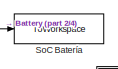
[diagram: root canvas - part 1/4, top left region]
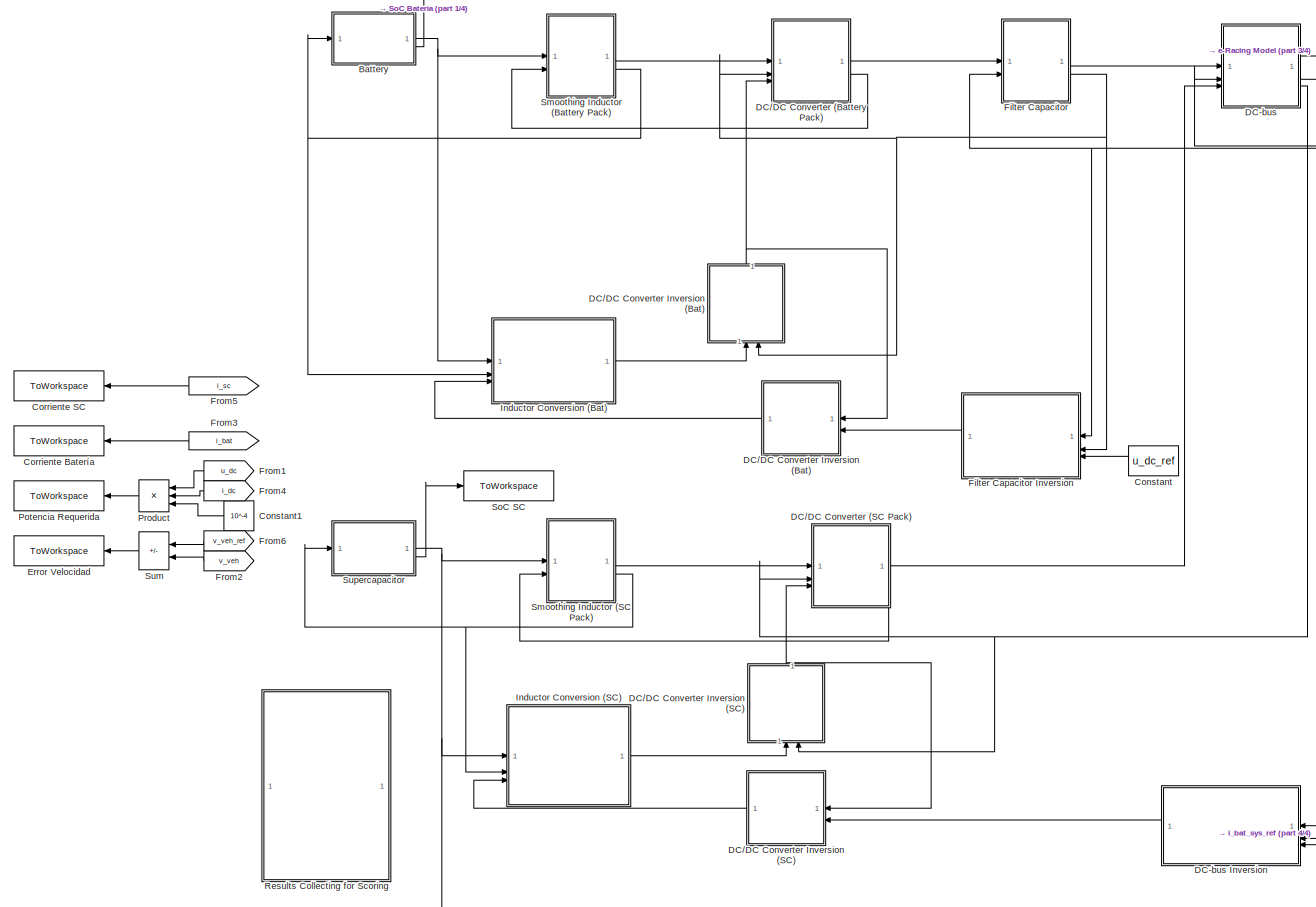
[diagram: root canvas - part 2/4, most of the canvas]
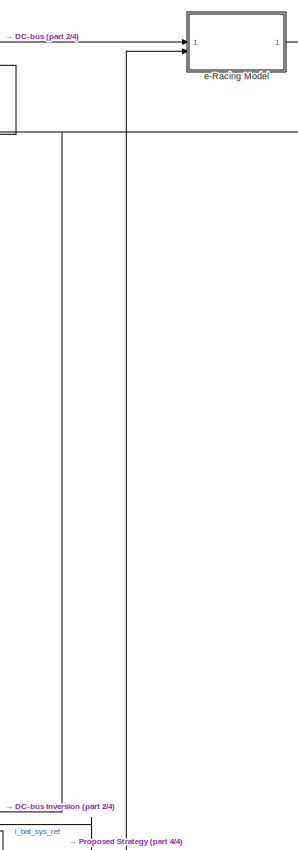
[diagram: root canvas - part 3/4, middle right region]
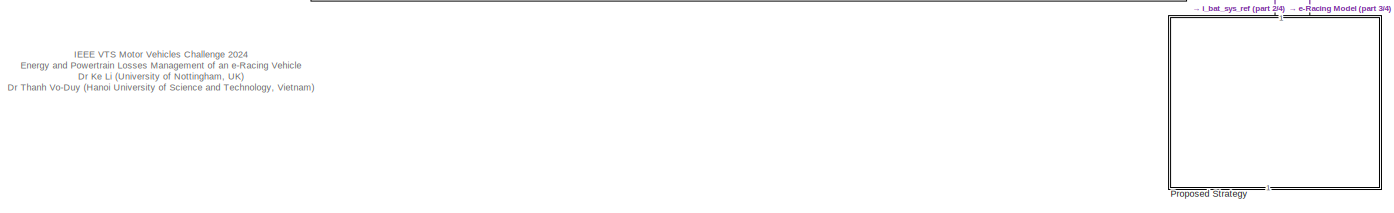
[diagram: root canvas - part 4/4, full width, bottom band]
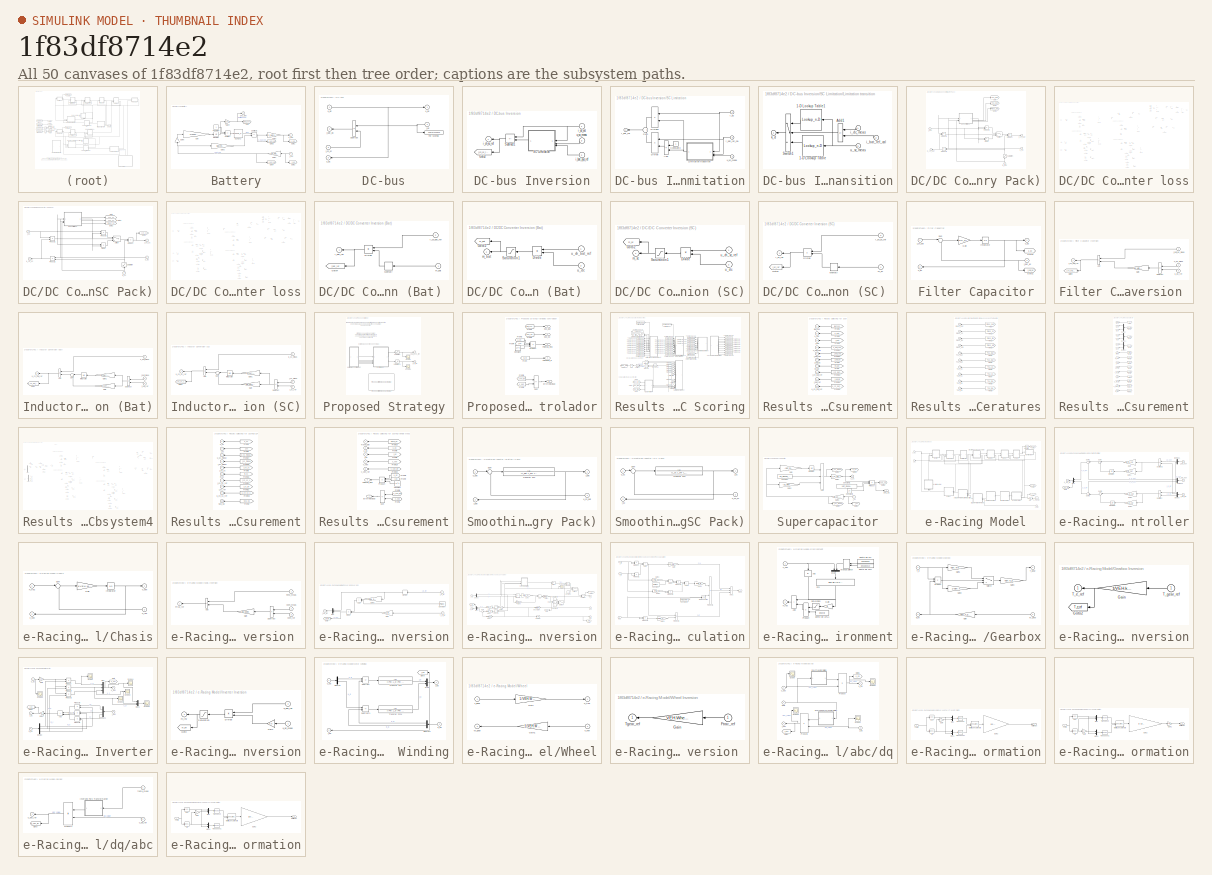
[diagram: thumbnail index - all 50 canvases of the model, root first then tree order]
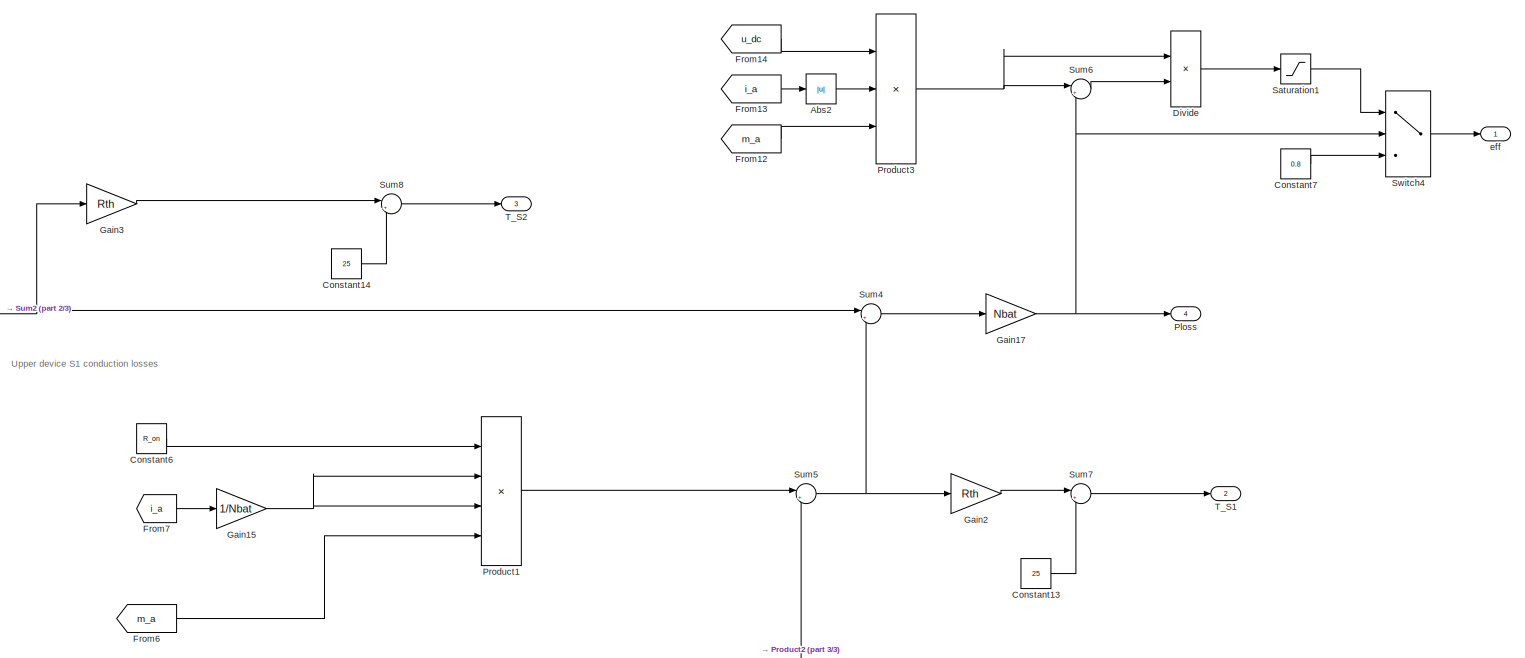
[diagram: DC/DC Converter (Battery Pack)/Converter loss - part 1/3, top right region]
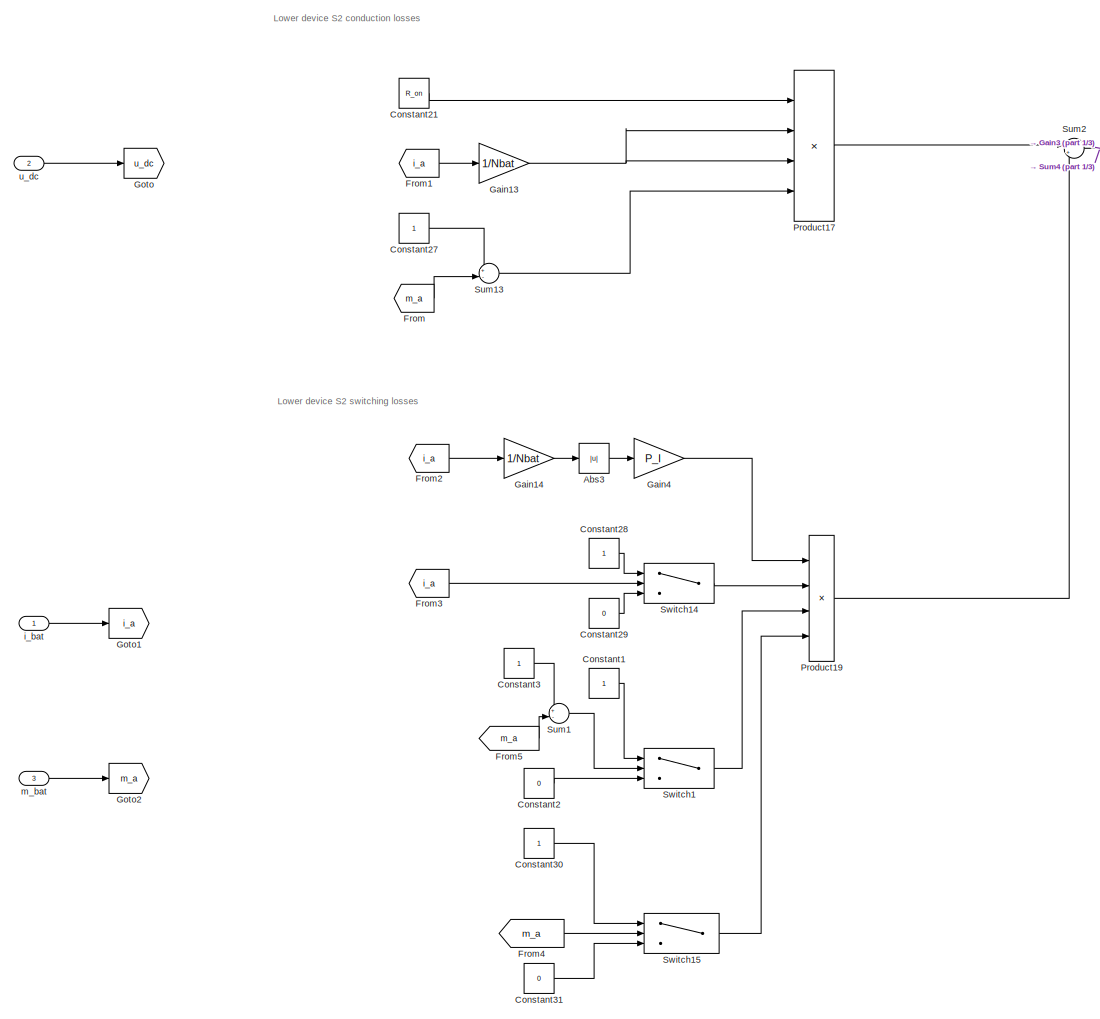
[diagram: DC/DC Converter (Battery Pack)/Converter loss - part 2/3, left side, full height]
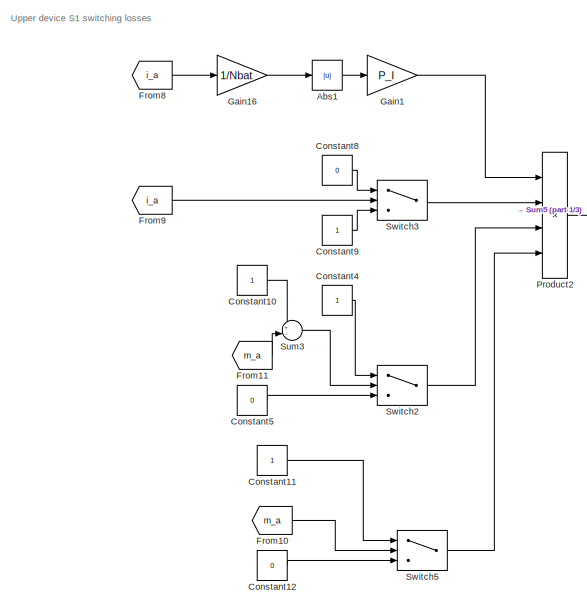
[diagram: DC/DC Converter (Battery Pack)/Converter loss - part 3/3, bottom center region]
MODEL slx_1f83df8714e2
KIND model
CONFIG AbsTol = auto
CONFIG EnableMultiTasking = on
CONFIG FixedStep = SIMULPARAM.Ts
CONFIG InitFcn = System_Parameters;
CONFIG MaxStep = auto
CONFIG MinStep = auto
CONFIG RelTol = 1e-3
CONFIG SampleTimeConstraint = Unconstrained
CONFIG SolverName = ode1
CONFIG StartTime = 0.0
CONFIG StopFcn = ShowResults;
CONFIG StopTime = SIMULPARAM.T_end
BLOCK [SubSystem] Battery
  AncestorBlock = simulink/REM/SE
BLOCK [Constant] Battery/Constant
BLOCK [Gain] Battery/Gain
  Gain = 1/(3600*Bat_cell.Capacity)
BLOCK [Gain] Battery/Gain1
  Gain = 1/n_bat_par
  NameLocation = top
BLOCK [Gain] Battery/Gain2
  Gain = Bat_cell.InternalRes
BLOCK [Gain] Battery/Gain3
  Gain = n_bat_seri
BLOCK [Gain] Battery/Gain4
  Gain = 100
BLOCK [Gain] Battery/Gain5
  Gain = -1
  NameLocation = left
BLOCK [Goto] Battery/Goto
  GotoTag = Bat_soc
  TagVisibility = global
BLOCK [Goto] Battery/Goto1
  GotoTag = u_bat
  TagVisibility = global
BLOCK [Goto] Battery/Goto2
  GotoTag = i_bat
  TagVisibility = global
BLOCK [Goto] Battery/Goto3
  GotoTag = u_bat_cell
  TagVisibility = global
BLOCK [Goto] Battery/Goto4
  GotoTag = i_bat_cell
  TagVisibility = global
BLOCK [Integrator] Battery/Integrator
  InitialCondition = 1
BLOCK [Lookup_n-D] Battery/OCV(SoC)
  BreakpointsForDimension1 = Bat_cell.SoC
  InputPortMap = u0
  InternalRulePriority = Speed
  NumberOfTableDimensions = 1
  RndMeth = Simplest
  Table = Bat_cell.OCV
BLOCK [Outport] Battery/SoC_Bat
  InitialOutput = 0
  NameLocation = top
  Port = 2
  VectorParamsAs1DForOutWhenUnconnected = off
BLOCK [Sum] Battery/Subtract
  IconShape = rectangular
  Inputs = +-
BLOCK [Sum] Battery/Subtract1
  IconShape = rectangular
  Inputs = +-
BLOCK [Inport] Battery/i_bat
BLOCK [Outport] Battery/u_bat
  InitialOutput = 0
  NameLocation = top
  VectorParamsAs1DForOutWhenUnconnected = off
BLOCK [Constant] Constant
  NameLocation = top
  Value = u_dc_ref
BLOCK [Constant] Constant1
  Value = 10^-4
BLOCK [ToWorkspace] Corriente Batería
  FixptAsFi = on
  MaxDataPoints = inf
  SampleTime = -1
  SaveFormat = Structure With Time
  VariableName = CorrienteBat
BLOCK [ToWorkspace] Corriente SC
  FixptAsFi = on
  MaxDataPoints = inf
  SampleTime = -1
  SaveFormat = Structure With Time
  VariableName = CorrienteSC
BLOCK [SubSystem] DC-bus
BLOCK [SubSystem] DC-bus Inversion
  AncestorBlock = simulink/SMC/Bloc de\npondération
BLOCK [Goto] DC-bus Inversion/Goto2
  GotoTag = i_ch_sc_ref
  NameLocation = top
  TagVisibility = global
BLOCK [SubSystem] DC-bus Inversion/SC Limitation
BLOCK [Sum] DC-bus Inversion/SC Limitation/Add
  IconShape = rectangular
  Inputs = +-
BLOCK [Constant] DC-bus Inversion/SC Limitation/Constant3
BLOCK [Product] DC-bus Inversion/SC Limitation/Divide
  Inputs = **
BLOCK [Product] DC-bus Inversion/SC Limitation/Divide1
  Inputs = **
BLOCK [SubSystem] DC-bus Inversion/SC Limitation/Limitation transition
BLOCK [Lookup_n-D] DC-bus Inversion/SC Limitation/Limitation transition/1-D Lookup Table
  BreakpointsForDimension1 = [SC_pack.U_min SC_pack.U_hi SC_pack.U_max]
  InputPortMap = u0
  InternalRulePriority = Speed
  NumberOfTableDimensions = 1
  RndMeth = Simplest
  Table = [0 0 1]
BLOCK [Lookup_n-D] DC-bus Inversion/SC Limitation/Limitation transition/1-D Lookup Table1
  BreakpointsForDimension1 = [SC_pack.U_min SC_pack.U_low SC_pack.U_max]
  InputPortMap = u0
  InternalRulePriority = Speed
  NumberOfTableDimensions = 1
  RndMeth = Simplest
  Table = [1 0 0]
BLOCK [Sum] DC-bus Inversion/SC Limitation/Limitation transition/Add1
  IconShape = rectangular
  Inputs = +-
BLOCK [Switch] DC-bus Inversion/SC Limitation/Limitation transition/Switch1
  InputSameDT = off
  SaturateOnIntegerOverflow = off
BLOCK [Inport] DC-bus Inversion/SC Limitation/Limitation transition/i_bat_ref_cal
  Port = 2
BLOCK [Inport] DC-bus Inversion/SC Limitation/Limitation transition/i_dc_meas
BLOCK [Outport] DC-bus Inversion/SC Limitation/Limitation transition/k_d
  NameLocation = top
  VectorParamsAs1DForOutWhenUnconnected = off
BLOCK [Inport] DC-bus Inversion/SC Limitation/Limitation transition/u_sc_meas
  Port = 3
BLOCK [Sum] DC-bus Inversion/SC Limitation/Sum
BLOCK [Outport] DC-bus Inversion/SC Limitation/i_bat_ref
  VectorParamsAs1DForOutWhenUnconnected = off
BLOCK [Inport] DC-bus Inversion/SC Limitation/i_bat_ref_cal
  Port = 3
BLOCK [Inport] DC-bus Inversion/SC Limitation/i_dc
BLOCK [Inport] DC-bus Inversion/SC Limitation/u_sc_meas
  Port = 2
BLOCK [Sum] DC-bus Inversion/Subtract1
  IconShape = rectangular
  Inputs = +-
  NameLocation = top
BLOCK [Inport] DC-bus Inversion/i_bat_sys_ref
  Port = 2
BLOCK [Outport] DC-bus Inversion/i_ch_sc_ref
  InitialOutput = 0
  VectorParamsAs1DForOutWhenUnconnected = off
BLOCK [Inport] DC-bus Inversion/i_dc_est
BLOCK [Inport] DC-bus Inversion/u_sc_meas
  Port = 3
BLOCK [ToWorkspace] DC-bus/For scoring
  Decimation = SIMULPARAM.Decimation
  FixptAsFi = on
  MaxDataPoints = inf
  SampleTime = -1
  VariableName = i_dc_meas
BLOCK [Sum] DC-bus/Subtract
  IconShape = rectangular
  Inputs = +-
  NameLocation = top
BLOCK [Outport] DC-bus/i_bat_dc
  InitialOutput = 0
  Port = 2
  VectorParamsAs1DForOutWhenUnconnected = off
BLOCK [Inport] DC-bus/i_ch_sc
  Port = 3
BLOCK [Inport] DC-bus/i_dc
  NameLocation = top
  Port = 2
BLOCK [Inport] DC-bus/u_dc
BLOCK [Outport] DC-bus/u_dc  
  InitialOutput = 0
  VectorParamsAs1DForOutWhenUnconnected = off
BLOCK [Outport] DC-bus/u_dc   
  InitialOutput = 0
  Port = 3
  VectorParamsAs1DForOutWhenUnconnected = off
BLOCK [SubSystem] DC//DC Converter (Battery Pack)
BLOCK [SubSystem] DC//DC Converter (Battery Pack)/Converter loss
BLOCK [Abs] DC//DC Converter (Battery Pack)/Converter loss/Abs1
  SaturateOnIntegerOverflow = off
BLOCK [Abs] DC//DC Converter (Battery Pack)/Converter loss/Abs2
  SaturateOnIntegerOverflow = off
BLOCK [Abs] DC//DC Converter (Battery Pack)/Converter loss/Abs3
  SaturateOnIntegerOverflow = off
BLOCK [Constant] DC//DC Converter (Battery Pack)/Converter loss/Constant1
BLOCK [Constant] DC//DC Converter (Battery Pack)/Converter loss/Constant10
BLOCK [Constant] DC//DC Converter (Battery Pack)/Converter loss/Constant11
BLOCK [Constant] DC//DC Converter (Battery Pack)/Converter loss/Constant12
  Value = 0
BLOCK [Constant] DC//DC Converter (Battery Pack)/Converter loss/Constant13
  Value = 25
BLOCK [Constant] DC//DC Converter (Battery Pack)/Converter loss/Constant14
  Value = 25
BLOCK [Constant] DC//DC Converter (Battery Pack)/Converter loss/Constant2
  Value = 0
BLOCK [Constant] DC//DC Converter (Battery Pack)/Converter loss/Constant21
  Value = R_on
BLOCK [Constant] DC//DC Converter (Battery Pack)/Converter loss/Constant27
BLOCK [Constant] DC//DC Converter (Battery Pack)/Converter loss/Constant28
BLOCK [Constant] DC//DC Converter (Battery Pack)/Converter loss/Constant29
  Value = 0
BLOCK [Constant] DC//DC Converter (Battery Pack)/Converter loss/Constant3
BLOCK [Constant] DC//DC Converter (Battery Pack)/Converter loss/Constant30
BLOCK [Constant] DC//DC Converter (Battery Pack)/Converter loss/Constant31
  Value = 0
BLOCK [Constant] DC//DC Converter (Battery Pack)/Converter loss/Constant4
BLOCK [Constant] DC//DC Converter (Battery Pack)/Converter loss/Constant5
  Value = 0
BLOCK [Constant] DC//DC Converter (Battery Pack)/Converter loss/Constant6
  Value = R_on
BLOCK [Constant] DC//DC Converter (Battery Pack)/Converter loss/Constant7
  Value = 0.8
BLOCK [Constant] DC//DC Converter (Battery Pack)/Converter loss/Constant8
  Value = 0
BLOCK [Constant] DC//DC Converter (Battery Pack)/Converter loss/Constant9
BLOCK [Product] DC//DC Converter (Battery Pack)/Converter loss/Divide
  Inputs = /*
BLOCK [From] DC//DC Converter (Battery Pack)/Converter loss/From
  GotoTag = m_a
BLOCK [From] DC//DC Converter (Battery Pack)/Converter loss/From1
  GotoTag = i_a
BLOCK [From] DC//DC Converter (Battery Pack)/Converter loss/From10
  GotoTag = m_a
BLOCK [From] DC//DC Converter (Battery Pack)/Converter loss/From11
  GotoTag = m_a
BLOCK [From] DC//DC Converter (Battery Pack)/Converter loss/From12
  GotoTag = m_a
BLOCK [From] DC//DC Converter (Battery Pack)/Converter loss/From13
  GotoTag = i_a
BLOCK [From] DC//DC Converter (Battery Pack)/Converter loss/From14
  GotoTag = u_dc
BLOCK [From] DC//DC Converter (Battery Pack)/Converter loss/From2
  GotoTag = i_a
BLOCK [From] DC//DC Converter (Battery Pack)/Converter loss/From3
  GotoTag = i_a
BLOCK [From] DC//DC Converter (Battery Pack)/Converter loss/From4
  GotoTag = m_a
BLOCK [From] DC//DC Converter (Battery Pack)/Converter loss/From5
  GotoTag = m_a
BLOCK [From] DC//DC Converter (Battery Pack)/Converter loss/From6
  GotoTag = m_a
BLOCK [From] DC//DC Converter (Battery Pack)/Converter loss/From7
  GotoTag = i_a
BLOCK [From] DC//DC Converter (Battery Pack)/Converter loss/From8
  GotoTag = i_a
BLOCK [From] DC//DC Converter (Battery Pack)/Converter loss/From9
  GotoTag = i_a
BLOCK [Gain] DC//DC Converter (Battery Pack)/Converter loss/Gain1
  Gain = P_I
BLOCK [Gain] DC//DC Converter (Battery Pack)/Converter loss/Gain13
  Gain = 1/Nbat
BLOCK [Gain] DC//DC Converter (Battery Pack)/Converter loss/Gain14
  Gain = 1/Nbat
BLOCK [Gain] DC//DC Converter (Battery Pack)/Converter loss/Gain15
  Gain = 1/Nbat
BLOCK [Gain] DC//DC Converter (Battery Pack)/Converter loss/Gain16
  Gain = 1/Nbat
BLOCK [Gain] DC//DC Converter (Battery Pack)/Converter loss/Gain17
  Gain = Nbat
BLOCK [Gain] DC//DC Converter (Battery Pack)/Converter loss/Gain2
  Gain = Rth
BLOCK [Gain] DC//DC Converter (Battery Pack)/Converter loss/Gain3
  Gain = Rth
BLOCK [Gain] DC//DC Converter (Battery Pack)/Converter loss/Gain4
  Gain = P_I
BLOCK [Goto] DC//DC Converter (Battery Pack)/Converter loss/Goto
  GotoTag = u_dc
BLOCK [Goto] DC//DC Converter (Battery Pack)/Converter loss/Goto1
  GotoTag = i_a
BLOCK [Goto] DC//DC Converter (Battery Pack)/Converter loss/Goto2
  GotoTag = m_a
BLOCK [Outport] DC//DC Converter (Battery Pack)/Converter loss/Ploss
  Port = 4
BLOCK [Product] DC//DC Converter (Battery Pack)/Converter loss/Product1
  Inputs = 4
BLOCK [Product] DC//DC Converter (Battery Pack)/Converter loss/Product17
  Inputs = 4
BLOCK [Product] DC//DC Converter (Battery Pack)/Converter loss/Product19
  Inputs = 4
BLOCK [Product] DC//DC Converter (Battery Pack)/Converter loss/Product2
  Inputs = 4
BLOCK [Product] DC//DC Converter (Battery Pack)/Converter loss/Product3
  Inputs = 3
BLOCK [Saturate] DC//DC Converter (Battery Pack)/Converter loss/Saturation1
  LowerLimit = 0
  UpperLimit = 1
BLOCK [Sum] DC//DC Converter (Battery Pack)/Converter loss/Sum1
  Inputs = +-
BLOCK [Sum] DC//DC Converter (Battery Pack)/Converter loss/Sum13
  Inputs = +-
BLOCK [Sum] DC//DC Converter (Battery Pack)/Converter loss/Sum2
  Inputs = |++
BLOCK [Sum] DC//DC Converter (Battery Pack)/Converter loss/Sum3
  Inputs = +-
BLOCK [Sum] DC//DC Converter (Battery Pack)/Converter loss/Sum4
  Inputs = |++
BLOCK [Sum] DC//DC Converter (Battery Pack)/Converter loss/Sum5
  Inputs = |++
BLOCK [Sum] DC//DC Converter (Battery Pack)/Converter loss/Sum6
  Inputs = |+-
BLOCK [Sum] DC//DC Converter (Battery Pack)/Converter loss/Sum7
  Inputs = |++
BLOCK [Sum] DC//DC Converter (Battery Pack)/Converter loss/Sum8
  Inputs = |++
BLOCK [Switch] DC//DC Converter (Battery Pack)/Converter loss/Switch1
  Criteria = u2 > Threshold
  InputSameDT = off
  SaturateOnIntegerOverflow = off
BLOCK [Switch] DC//DC Converter (Battery Pack)/Converter loss/Switch14
  Criteria = u2 > Threshold
  InputSameDT = off
  SaturateOnIntegerOverflow = off
BLOCK [Switch] DC//DC Converter (Battery Pack)/Converter loss/Switch15
  Criteria = u2 > Threshold
  InputSameDT = off
  SaturateOnIntegerOverflow = off
BLOCK [Switch] DC//DC Converter (Battery Pack)/Converter loss/Switch2
  Criteria = u2 > Threshold
  InputSameDT = off
  SaturateOnIntegerOverflow = off
BLOCK [Switch] DC//DC Converter (Battery Pack)/Converter loss/Switch3
  Criteria = u2 > Threshold
  InputSameDT = off
  SaturateOnIntegerOverflow = off
BLOCK [Switch] DC//DC Converter (Battery Pack)/Converter loss/Switch4
  Criteria = u2 > Threshold
  InputSameDT = off
  SaturateOnIntegerOverflow = off
BLOCK [Switch] DC//DC Converter (Battery Pack)/Converter loss/Switch5
  Criteria = u2 > Threshold
  InputSameDT = off
  SaturateOnIntegerOverflow = off
BLOCK [Outport] DC//DC Converter (Battery Pack)/Converter loss/T_S1
  Port = 2
BLOCK [Outport] DC//DC Converter (Battery Pack)/Converter loss/T_S2
  Port = 3
BLOCK [Outport] DC//DC Converter (Battery Pack)/Converter loss/eff
BLOCK [Inport] DC//DC Converter (Battery Pack)/Converter loss/i_bat
BLOCK [Inport] DC//DC Converter (Battery Pack)/Converter loss/m_bat
  Port = 3
BLOCK [Inport] DC//DC Converter (Battery Pack)/Converter loss/u_dc
  Port = 2
BLOCK [Product] DC//DC Converter (Battery Pack)/Divide
  Inputs = */
BLOCK [Goto] DC//DC Converter (Battery Pack)/Goto
  GotoTag = Ts1_bat
  TagVisibility = global
BLOCK [Goto] DC//DC Converter (Battery Pack)/Goto1
  GotoTag = Ts2_bat
  TagVisibility = global
BLOCK [Goto] DC//DC Converter (Battery Pack)/Goto2
  GotoTag = Ploss_bat
  TagVisibility = global
BLOCK [Product] DC//DC Converter (Battery Pack)/Product
BLOCK [Product] DC//DC Converter (Battery Pack)/Product1
BLOCK [Product] DC//DC Converter (Battery Pack)/Product2
  NameLocation = top
BLOCK [Product] DC//DC Converter (Battery Pack)/Product3
BLOCK [Saturate] DC//DC Converter (Battery Pack)/Saturation
  LowerLimit = 0
  NameLocation = right
  UpperLimit = 1
BLOCK [Switch] DC//DC Converter (Battery Pack)/Switch
  Criteria = u2 > Threshold
  InputSameDT = off
  SaturateOnIntegerOverflow = off
BLOCK [Inport] DC//DC Converter (Battery Pack)/i_bat
BLOCK [Outport] DC//DC Converter (Battery Pack)/i_ch_bat
  InitialOutput = 0
  VectorParamsAs1DForOutWhenUnconnected = off
BLOCK [Inport] DC//DC Converter (Battery Pack)/m_bat
  NameLocation = left
  Port = 3
BLOCK [Outport] DC//DC Converter (Battery Pack)/u_ch_bat
  InitialOutput = 0
  Port = 2
  VectorParamsAs1DForOutWhenUnconnected = off
BLOCK [Inport] DC//DC Converter (Battery Pack)/u_dc
  Port = 2
BLOCK [SubSystem] DC//DC Converter (SC Pack)
BLOCK [SubSystem] DC//DC Converter (SC Pack)/Converter loss
BLOCK [Abs] DC//DC Converter (SC Pack)/Converter loss/Abs1
  SaturateOnIntegerOverflow = off
BLOCK [Abs] DC//DC Converter (SC Pack)/Converter loss/Abs2
  SaturateOnIntegerOverflow = off
BLOCK [Abs] DC//DC Converter (SC Pack)/Converter loss/Abs3
  SaturateOnIntegerOverflow = off
BLOCK [Constant] DC//DC Converter (SC Pack)/Converter loss/Constant1
BLOCK [Constant] DC//DC Converter (SC Pack)/Converter loss/Constant10
BLOCK [Constant] DC//DC Converter (SC Pack)/Converter loss/Constant11
BLOCK [Constant] DC//DC Converter (SC Pack)/Converter loss/Constant12
  Value = 0
BLOCK [Constant] DC//DC Converter (SC Pack)/Converter loss/Constant13
  Value = 25
BLOCK [Constant] DC//DC Converter (SC Pack)/Converter loss/Constant14
  Value = 25
BLOCK [Constant] DC//DC Converter (SC Pack)/Converter loss/Constant2
  Value = 0
BLOCK [Constant] DC//DC Converter (SC Pack)/Converter loss/Constant21
  Value = R1_on
BLOCK [Constant] DC//DC Converter (SC Pack)/Converter loss/Constant27
BLOCK [Constant] DC//DC Converter (SC Pack)/Converter loss/Constant28
BLOCK [Constant] DC//DC Converter (SC Pack)/Converter loss/Constant29
  Value = 0
BLOCK [Constant] DC//DC Converter (SC Pack)/Converter loss/Constant3
BLOCK [Constant] DC//DC Converter (SC Pack)/Converter loss/Constant30
BLOCK [Constant] DC//DC Converter (SC Pack)/Converter loss/Constant31
  Value = 0
BLOCK [Constant] DC//DC Converter (SC Pack)/Converter loss/Constant4
BLOCK [Constant] DC//DC Converter (SC Pack)/Converter loss/Constant5
  Value = 0
BLOCK [Constant] DC//DC Converter (SC Pack)/Converter loss/Constant6
  Value = R1_on
BLOCK [Constant] DC//DC Converter (SC Pack)/Converter loss/Constant7
  Value = 0.8
BLOCK [Constant] DC//DC Converter (SC Pack)/Converter loss/Constant8
  Value = 0
BLOCK [Constant] DC//DC Converter (SC Pack)/Converter loss/Constant9
BLOCK [Product] DC//DC Converter (SC Pack)/Converter loss/Divide
  Inputs = /*
BLOCK [From] DC//DC Converter (SC Pack)/Converter loss/From
  GotoTag = m_a
BLOCK [From] DC//DC Converter (SC Pack)/Converter loss/From1
  GotoTag = i_a
BLOCK [From] DC//DC Converter (SC Pack)/Converter loss/From10
  GotoTag = m_a
BLOCK [From] DC//DC Converter (SC Pack)/Converter loss/From11
  GotoTag = m_a
BLOCK [From] DC//DC Converter (SC Pack)/Converter loss/From12
  GotoTag = m_a
BLOCK [From] DC//DC Converter (SC Pack)/Converter loss/From13
  GotoTag = i_a
BLOCK [From] DC//DC Converter (SC Pack)/Converter loss/From14
  GotoTag = u_dc
BLOCK [From] DC//DC Converter (SC Pack)/Converter loss/From2
  GotoTag = i_a
BLOCK [From] DC//DC Converter (SC Pack)/Converter loss/From3
  GotoTag = i_a
BLOCK [From] DC//DC Converter (SC Pack)/Converter loss/From4
  GotoTag = m_a
BLOCK [From] DC//DC Converter (SC Pack)/Converter loss/From5
  GotoTag = m_a
BLOCK [From] DC//DC Converter (SC Pack)/Converter loss/From6
  GotoTag = m_a
BLOCK [From] DC//DC Converter (SC Pack)/Converter loss/From7
  GotoTag = i_a
BLOCK [From] DC//DC Converter (SC Pack)/Converter loss/From8
  GotoTag = i_a
BLOCK [From] DC//DC Converter (SC Pack)/Converter loss/From9
  GotoTag = i_a
BLOCK [Gain] DC//DC Converter (SC Pack)/Converter loss/Gain1
  Gain = P1_I
BLOCK [Gain] DC//DC Converter (SC Pack)/Converter loss/Gain13
  Gain = 1/Nsc
BLOCK [Gain] DC//DC Converter (SC Pack)/Converter loss/Gain14
  Gain = 1/Nsc
BLOCK [Gain] DC//DC Converter (SC Pack)/Converter loss/Gain15
  Gain = 1/Nsc
BLOCK [Gain] DC//DC Converter (SC Pack)/Converter loss/Gain16
  Gain = 1/Nsc
BLOCK [Gain] DC//DC Converter (SC Pack)/Converter loss/Gain17
  Gain = Nsc
BLOCK [Gain] DC//DC Converter (SC Pack)/Converter loss/Gain2
  Gain = Rth
BLOCK [Gain] DC//DC Converter (SC Pack)/Converter loss/Gain3
  Gain = Rth
BLOCK [Gain] DC//DC Converter (SC Pack)/Converter loss/Gain4
  Gain = P1_I
BLOCK [Goto] DC//DC Converter (SC Pack)/Converter loss/Goto
  GotoTag = u_dc
BLOCK [Goto] DC//DC Converter (SC Pack)/Converter loss/Goto1
  GotoTag = i_a
BLOCK [Goto] DC//DC Converter (SC Pack)/Converter loss/Goto2
  GotoTag = m_a
BLOCK [Outport] DC//DC Converter (SC Pack)/Converter loss/Ploss
  Port = 4
BLOCK [Product] DC//DC Converter (SC Pack)/Converter loss/Product1
  Inputs = 4
BLOCK [Product] DC//DC Converter (SC Pack)/Converter loss/Product17
  Inputs = 4
BLOCK [Product] DC//DC Converter (SC Pack)/Converter loss/Product19
  Inputs = 4
BLOCK [Product] DC//DC Converter (SC Pack)/Converter loss/Product2
  Inputs = 4
BLOCK [Product] DC//DC Converter (SC Pack)/Converter loss/Product3
  Inputs = 3
BLOCK [Saturate] DC//DC Converter (SC Pack)/Converter loss/Saturation1
  LowerLimit = 0
  UpperLimit = 1
BLOCK [Sum] DC//DC Converter (SC Pack)/Converter loss/Sum1
  Inputs = +-
BLOCK [Sum] DC//DC Converter (SC Pack)/Converter loss/Sum13
  Inputs = +-
BLOCK [Sum] DC//DC Converter (SC Pack)/Converter loss/Sum2
  Inputs = |++
BLOCK [Sum] DC//DC Converter (SC Pack)/Converter loss/Sum3
  Inputs = +-
BLOCK [Sum] DC//DC Converter (SC Pack)/Converter loss/Sum4
  Inputs = |++
BLOCK [Sum] DC//DC Converter (SC Pack)/Converter loss/Sum5
  Inputs = |++
BLOCK [Sum] DC//DC Converter (SC Pack)/Converter loss/Sum6
  Inputs = |+-
BLOCK [Sum] DC//DC Converter (SC Pack)/Converter loss/Sum7
  Inputs = |++
BLOCK [Sum] DC//DC Converter (SC Pack)/Converter loss/Sum8
  Inputs = |++
BLOCK [Switch] DC//DC Converter (SC Pack)/Converter loss/Switch1
  Criteria = u2 > Threshold
  InputSameDT = off
  SaturateOnIntegerOverflow = off
BLOCK [Switch] DC//DC Converter (SC Pack)/Converter loss/Switch14
  Criteria = u2 > Threshold
  InputSameDT = off
  SaturateOnIntegerOverflow = off
BLOCK [Switch] DC//DC Converter (SC Pack)/Converter loss/Switch15
  Criteria = u2 > Threshold
  InputSameDT = off
  SaturateOnIntegerOverflow = off
BLOCK [Switch] DC//DC Converter (SC Pack)/Converter loss/Switch2
  Criteria = u2 > Threshold
  InputSameDT = off
  SaturateOnIntegerOverflow = off
BLOCK [Switch] DC//DC Converter (SC Pack)/Converter loss/Switch3
  Criteria = u2 > Threshold
  InputSameDT = off
  SaturateOnIntegerOverflow = off
BLOCK [Switch] DC//DC Converter (SC Pack)/Converter loss/Switch4
  Criteria = u2 > Threshold
  InputSameDT = off
  SaturateOnIntegerOverflow = off
BLOCK [Switch] DC//DC Converter (SC Pack)/Converter loss/Switch5
  Criteria = u2 > Threshold
  InputSameDT = off
  SaturateOnIntegerOverflow = off
BLOCK [Outport] DC//DC Converter (SC Pack)/Converter loss/T_S1
  Port = 2
BLOCK [Outport] DC//DC Converter (SC Pack)/Converter loss/T_S2
  Port = 3
BLOCK [Outport] DC//DC Converter (SC Pack)/Converter loss/eff
BLOCK [Inport] DC//DC Converter (SC Pack)/Converter loss/i_sc
BLOCK [Inport] DC//DC Converter (SC Pack)/Converter loss/m_sc
  Port = 3
BLOCK [Inport] DC//DC Converter (SC Pack)/Converter loss/u_dc
  Port = 2
BLOCK [Product] DC//DC Converter (SC Pack)/Divide
  Inputs = */
BLOCK [Goto] DC//DC Converter (SC Pack)/Goto
  GotoTag = Ts1_sc
  TagVisibility = global
BLOCK [Goto] DC//DC Converter (SC Pack)/Goto1
  GotoTag = Ts2_sc
  TagVisibility = global
BLOCK [Goto] DC//DC Converter (SC Pack)/Goto2
  GotoTag = Ploss_sc
  TagVisibility = global
BLOCK [Goto] DC//DC Converter (SC Pack)/Goto3
  GotoTag = i_ch_sc
  TagVisibility = global
BLOCK [Product] DC//DC Converter (SC Pack)/Product
BLOCK [Product] DC//DC Converter (SC Pack)/Product1
BLOCK [Product] DC//DC Converter (SC Pack)/Product2
  NameLocation = top
BLOCK [Product] DC//DC Converter (SC Pack)/Product3
BLOCK [Saturate] DC//DC Converter (SC Pack)/Saturation
  LowerLimit = 0
  NameLocation = right
  UpperLimit = 1
BLOCK [Switch] DC//DC Converter (SC Pack)/Switch
  Criteria = u2 > Threshold
  InputSameDT = off
  SaturateOnIntegerOverflow = off
BLOCK [Outport] DC//DC Converter (SC Pack)/i_ch_sc
  InitialOutput = 0
  VectorParamsAs1DForOutWhenUnconnected = off
BLOCK [Inport] DC//DC Converter (SC Pack)/i_sc
BLOCK [Inport] DC//DC Converter (SC Pack)/m_sc
  NameLocation = left
  Port = 3
BLOCK [Outport] DC//DC Converter (SC Pack)/u_ch_sc
  InitialOutput = 0
  Port = 2
  VectorParamsAs1DForOutWhenUnconnected = off
BLOCK [Inport] DC//DC Converter (SC Pack)/u_dc
  Port = 2
BLOCK [SubSystem] DC//DC Converter Inversion (Bat) 
  AncestorBlock = simulink/SMC/Inversion EC\navec mesure
BLOCK [SubSystem] DC//DC Converter Inversion (Bat)  
  AncestorBlock = simulink/SMC/Inversion EC\navec mesure
  NameLocation = right
BLOCK [Product] DC//DC Converter Inversion (Bat)  /Divide
  Inputs = */
  NameLocation = top
BLOCK [Goto] DC//DC Converter Inversion (Bat)  /Goto2
  GotoTag = m_bat
  NameLocation = top
  TagVisibility = global
BLOCK [Saturate] DC//DC Converter Inversion (Bat)  /Saturation1
  LowerLimit = 0.00001
  NameLocation = top
  UpperLimit = 1
BLOCK [Outport] DC//DC Converter Inversion (Bat)  /m_bat
  InitialOutput = 0
  VectorParamsAs1DForOutWhenUnconnected = off
BLOCK [Inport] DC//DC Converter Inversion (Bat)  /u_ch_bat_ref
BLOCK [Inport] DC//DC Converter Inversion (Bat)  /u_dc
  Port = 2
BLOCK [Product] DC//DC Converter Inversion (Bat) /Divide
  Inputs = */
  NameLocation = top
BLOCK [Goto] DC//DC Converter Inversion (Bat) /Goto4
  GotoTag = i_bat_ref
  NameLocation = top
  TagVisibility = global
BLOCK [Memory] DC//DC Converter Inversion (Bat) /Memory
  InitialCondition = 0.1
  NameLocation = top
BLOCK [Outport] DC//DC Converter Inversion (Bat) /i_bat_ref
  InitialOutput = 0
  VectorParamsAs1DForOutWhenUnconnected = off
BLOCK [Inport] DC//DC Converter Inversion (Bat) /i_ch_bat_ref
  Port = 2
BLOCK [Inport] DC//DC Converter Inversion (Bat) /m_bat
BLOCK [SubSystem] DC//DC Converter Inversion (SC)
  AncestorBlock = simulink/SMC/Inversion EC\navec mesure
  NameLocation = right
BLOCK [SubSystem] DC//DC Converter Inversion (SC) 
  AncestorBlock = simulink/SMC/Inversion EC\navec mesure
BLOCK [Product] DC//DC Converter Inversion (SC) /Divide
  Inputs = */
  NameLocation = top
BLOCK [Goto] DC//DC Converter Inversion (SC) /Goto2
  GotoTag = i_sc_ref
  NameLocation = top
  TagVisibility = global
BLOCK [Memory] DC//DC Converter Inversion (SC) /Memory
  InitialCondition = 0.1
  NameLocation = top
BLOCK [Inport] DC//DC Converter Inversion (SC) /i_ch_sc_ref
  Port = 2
BLOCK [Outport] DC//DC Converter Inversion (SC) /i_sc_ref
  InitialOutput = 0
  VectorParamsAs1DForOutWhenUnconnected = off
BLOCK [Inport] DC//DC Converter Inversion (SC) /m_sc
BLOCK [Product] DC//DC Converter Inversion (SC)/Divide
  Inputs = */
  NameLocation = top
BLOCK [Goto] DC//DC Converter Inversion (SC)/Goto2
  GotoTag = m_sc
  NameLocation = top
  TagVisibility = global
BLOCK [Saturate] DC//DC Converter Inversion (SC)/Saturation1
  LowerLimit = 0.00001
  NameLocation = top
  UpperLimit = 1
BLOCK [Outport] DC//DC Converter Inversion (SC)/m_sc
  InitialOutput = 0
  VectorParamsAs1DForOutWhenUnconnected = off
BLOCK [Inport] DC//DC Converter Inversion (SC)/u_ch_sc_ref
BLOCK [Inport] DC//DC Converter Inversion (SC)/u_dc
  Port = 2
BLOCK [ToWorkspace] Error Velocidad
  FixptAsFi = on
  MaxDataPoints = inf
  SampleTime = -1
  SaveFormat = Structure With Time
  VariableName = ErrorV
BLOCK [SubSystem] Filter Capacitor
BLOCK [SubSystem] Filter Capacitor Inversion 
  AncestorBlock = simulink/SMC/Asservissement\nCorrecteur IP
BLOCK [Sum] Filter Capacitor Inversion /Add
  IconShape = rectangular
  NameLocation = top
BLOCK [Gain] Filter Capacitor Inversion /Gain
  Gain = Kp_voltage
  NameLocation = top
BLOCK [Goto] Filter Capacitor Inversion /Goto4
  GotoTag = i_ch_bat_ref
  NameLocation = top
  TagVisibility = global
BLOCK [Sum] Filter Capacitor Inversion /Subtract
  IconShape = rectangular
  Inputs = -+
  NameLocation = top
BLOCK [Inport] Filter Capacitor Inversion /i_bat_dc_meas
  NameLocation = top
BLOCK [Outport] Filter Capacitor Inversion /i_ch_bat_ref
  InitialOutput = 0
  VectorParamsAs1DForOutWhenUnconnected = off
BLOCK [Inport] Filter Capacitor Inversion /u_dc_meas
  NameLocation = top
  Port = 2
BLOCK [Inport] Filter Capacitor Inversion /u_dc_ref
  Port = 3
BLOCK [Gain] Filter Capacitor/Gain
  Gain = 1/C_fil
BLOCK [Goto] Filter Capacitor/Goto1
  GotoTag = i_bat_dc
  TagVisibility = global
BLOCK [Goto] Filter Capacitor/Goto2
  GotoTag = u_dc
  TagVisibility = global
BLOCK [Integrator] Filter Capacitor/Integrator
  InitialCondition = C_fil_0
BLOCK [Sum] Filter Capacitor/Sum
  Inputs = |+-
BLOCK [Inport] Filter Capacitor/i_bat_dc
  Port = 2
BLOCK [Inport] Filter Capacitor/i_ch_bat
BLOCK [Outport] Filter Capacitor/u_dc
  InitialOutput = 0
  VectorParamsAs1DForOutWhenUnconnected = off
BLOCK [Outport] Filter Capacitor/u_dc 
  InitialOutput = 0
  Port = 2
  VectorParamsAs1DForOutWhenUnconnected = off
BLOCK [From] From1
  GotoTag = u_dc
  TagVisibility = global
BLOCK [From] From2
  GotoTag = v_veh
  TagVisibility = global
BLOCK [From] From3
  GotoTag = i_bat
  NameLocation = top
  TagVisibility = global
BLOCK [From] From4
  GotoTag = i_dc
  TagVisibility = global
BLOCK [From] From5
  GotoTag = i_sc
  NameLocation = top
  TagVisibility = global
BLOCK [From] From6
  GotoTag = v_veh_ref
  TagVisibility = global
BLOCK [SubSystem] Inductor Conversion (Bat)
  AncestorBlock = simulink/SMC/Asservissement\nCorrecteur IP
  NameLocation = top
BLOCK [Sum] Inductor Conversion (Bat)/Add
  IconShape = rectangular
  Inputs = +-
  NameLocation = top
BLOCK [Gain] Inductor Conversion (Bat)/Gain
  Gain = Kp_current_bat
  NameLocation = top
BLOCK [Gain] Inductor Conversion (Bat)/Gain1
  Gain = Ki_current_bat
  NameLocation = top
BLOCK [Goto] Inductor Conversion (Bat)/Goto4
  GotoTag = u_ch_bat_ref
  NameLocation = top
  TagVisibility = global
BLOCK [Integrator] Inductor Conversion (Bat)/Integrator
  NameLocation = top
BLOCK [Sum] Inductor Conversion (Bat)/Subtract
  IconShape = rectangular
  Inputs = -+
  NameLocation = top
BLOCK [Sum] Inductor Conversion (Bat)/Sum
  Inputs = |++
  NameLocation = top
BLOCK [Inport] Inductor Conversion (Bat)/i_bat_meas
  NameLocation = top
  Port = 2
BLOCK [Inport] Inductor Conversion (Bat)/i_bat_ref
  Port = 3
BLOCK [Inport] Inductor Conversion (Bat)/u_bat_meas
  NameLocation = top
BLOCK [Outport] Inductor Conversion (Bat)/u_ch_bat_ref
  InitialOutput = 0
  VectorParamsAs1DForOutWhenUnconnected = off
BLOCK [SubSystem] Inductor Conversion (SC)
  AncestorBlock = simulink/SMC/Asservissement\nCorrecteur IP
  NameLocation = top
BLOCK [Sum] Inductor Conversion (SC)/Add
  IconShape = rectangular
  Inputs = +-
  NameLocation = top
BLOCK [Gain] Inductor Conversion (SC)/Gain
  Gain = Kp_current_sc
  NameLocation = top
BLOCK [Gain] Inductor Conversion (SC)/Gain1
  Gain = Ki_current_sc
  NameLocation = top
BLOCK [Goto] Inductor Conversion (SC)/Goto2
  GotoTag = u_ch_sc_ref
  NameLocation = top
  TagVisibility = global
BLOCK [Integrator] Inductor Conversion (SC)/Integrator
  NameLocation = top
BLOCK [Sum] Inductor Conversion (SC)/Subtract
  IconShape = rectangular
  Inputs = -+
  NameLocation = top
BLOCK [Sum] Inductor Conversion (SC)/Sum
  Inputs = |++
  NameLocation = top
BLOCK [Inport] Inductor Conversion (SC)/i_sc_meas
  NameLocation = top
  Port = 2
BLOCK [Inport] Inductor Conversion (SC)/i_sc_ref
  Port = 3
BLOCK [Outport] Inductor Conversion (SC)/u_ch_sc_ref
  InitialOutput = 0
  VectorParamsAs1DForOutWhenUnconnected = off
BLOCK [Inport] Inductor Conversion (SC)/u_sc_meas
  NameLocation = top
BLOCK [ToWorkspace] Potencia Requerida
  FixptAsFi = on
  MaxDataPoints = inf
  SampleTime = -1
  SaveFormat = Structure With Time
  VariableName = PotenciaReq
BLOCK [Product] Product
  Inputs = 3
BLOCK [SubSystem] Proposed Strategy
  AncestorBlock = simulink/SMC/Inversion EC\navec mesure
BLOCK [ModelReference] Proposed Strategy/Controlador
  ModelNameDialog = ControladorEmbebido.slx
  ModelReferenceVersion = 7.24
BLOCK [Reference] Proposed Strategy/Processor-in-the-loop Host Setup  REF=esp32_device_config_lib/Processor-in-the-loop Host Setup
  SourceBlock = esp32_device_config_lib/Processor-in-the-loop Host Setup
  SourceProductName = Waijung 2 Blockset
  SourceType = esp32_pil_host_setup
BLOCK [Saturate] Proposed Strategy/Saturation
  LowerLimit = 0
  UpperLimit = 150
BLOCK [Saturate] Proposed Strategy/Saturation1
  LowerLimit = -100
  UpperLimit = 0
BLOCK [Scope] Proposed Strategy/Scope
  Floating = off
  NumInputPorts = 1
  ScopeSpecificationString = Simulink.scopes.TimeScopeBlockCfg('CurrentConfiguration', extmgr.ConfigurationSet(extmgr.Configuration('Core','General UI',true),extmgr.Configuration('Core','Source UI',true),extmgr.Configuration('Sources','WiredSimulink',true,'DataLoggingVariableName','ScopeData1'),extmgr.Configuration('Visuals','Time Domain',true,'SerializedDisplays',{struct('MinYLimReal','-9.32644','MaxYLimReal','83.93793','YLa...<+1373ch>
BLOCK [Scope] Proposed Strategy/Scope1
  Floating = off
  NumInputPorts = 1
  ScopeSpecificationString = Simulink.scopes.TimeScopeBlockCfg('CurrentConfiguration', extmgr.ConfigurationSet(extmgr.Configuration('Core','General UI',true),extmgr.Configuration('Core','Source UI',true),extmgr.Configuration('Sources','WiredSimulink',true,'DataLoggingVariableName','ScopeData2'),extmgr.Configuration('Visuals','Time Domain',true,'SerializedDisplays',{struct('MinYLimReal','-102.4168','MaxYLimReal','11.37964','YL...<+1378ch>
BLOCK [SubSystem] Proposed Strategy/Variables controlador
  NameLocation = top
BLOCK [Constant] Proposed Strategy/Variables controlador/Constant
  Value = 10^-4
BLOCK [Outport] Proposed Strategy/Variables controlador/ErrorVelocidad
  NameLocation = top
  Port = 5
BLOCK [From] Proposed Strategy/Variables controlador/From
  GotoTag = w_m
  TagVisibility = global
BLOCK [From] Proposed Strategy/Variables controlador/From1
  GotoTag = Bat_soc
  TagVisibility = global
BLOCK [From] Proposed Strategy/Variables controlador/From2
  GotoTag = SoC_SC
  TagVisibility = global
BLOCK [From] Proposed Strategy/Variables controlador/From3
  GotoTag = u_dc
  TagVisibility = global
BLOCK [From] Proposed Strategy/Variables controlador/From4
  GotoTag = i_dc
  TagVisibility = global
BLOCK [From] Proposed Strategy/Variables controlador/From5
  GotoTag = v_veh_ref
  TagVisibility = global
BLOCK [From] Proposed Strategy/Variables controlador/From6
  GotoTag = v_veh
  TagVisibility = global
BLOCK [Outport] Proposed Strategy/Variables controlador/Potencia_Req
  NameLocation = top
  Port = 3
BLOCK [Product] Proposed Strategy/Variables controlador/Product
  Inputs = 3
BLOCK [Outport] Proposed Strategy/Variables controlador/SoC_Bat
  NameLocation = top
BLOCK [Outport] Proposed Strategy/Variables controlador/SoC_SC
  NameLocation = top
  Port = 2
BLOCK [Sum] Proposed Strategy/Variables controlador/Sum
  IconShape = rectangular
  Inputs = +-
BLOCK [Outport] Proposed Strategy/Variables controlador/Velocidad_w
  NameLocation = top
  Port = 4
BLOCK [Outport] Proposed Strategy/i_bat_sys_ref
  InitialOutput = 0
  VectorParamsAs1DForOutWhenUnconnected = off
BLOCK [Outport] Proposed Strategy/i_d_ref 
  InitialOutput = 0
  Port = 2
  VectorParamsAs1DForOutWhenUnconnected = off
BLOCK [SubSystem] Results Collecting for Scoring
BLOCK [Abs] Results Collecting for Scoring/Abs
  NameLocation = top
  SaturateOnIntegerOverflow = off
BLOCK [SubSystem] Results Collecting for Scoring/Battery Branch Measurement
  NameLocation = top
BLOCK [Outport] Results Collecting for Scoring/Battery Branch Measurement/Bat_soc
  NameLocation = top
  VectorParamsAs1DForOutWhenUnconnected = off
BLOCK [From] Results Collecting for Scoring/Battery Branch Measurement/From
  GotoTag = m_bat
  NameLocation = top
  TagVisibility = global
BLOCK [From] Results Collecting for Scoring/Battery Branch Measurement/From1
  GotoTag = Bat_soc
  NameLocation = top
  TagVisibility = global
BLOCK [From] Results Collecting for Scoring/Battery Branch Measurement/From11
  GotoTag = u_bat_cell
  NameLocation = top
  TagVisibility = global
BLOCK [From] Results Collecting for Scoring/Battery Branch Measurement/From12
  GotoTag = i_bat_cell
  NameLocation = top
  TagVisibility = global
BLOCK [From] Results Collecting for Scoring/Battery Branch Measurement/From13
  GotoTag = i_ch_bat_ref
  TagVisibility = global
BLOCK [From] Results Collecting for Scoring/Battery Branch Measurement/From14
  GotoTag = i_bat_ref
  TagVisibility = global
BLOCK [From] Results Collecting for Scoring/Battery Branch Measurement/From15
  GotoTag = u_ch_bat_ref
  TagVisibility = global
BLOCK [From] Results Collecting for Scoring/Battery Branch Measurement/From2
  GotoTag = u_bat
  NameLocation = top
  TagVisibility = global
BLOCK [From] Results Collecting for Scoring/Battery Branch Measurement/From3
  GotoTag = i_bat
  NameLocation = top
  TagVisibility = global
BLOCK [From] Results Collecting for Scoring/Battery Branch Measurement/From7
  GotoTag = i_bat_dc
  NameLocation = top
  TagVisibility = global
BLOCK [Outport] Results Collecting for Scoring/Battery Branch Measurement/i_bat
  NameLocation = top
  Port = 3
  VectorParamsAs1DForOutWhenUnconnected = off
BLOCK [Outport] Results Collecting for Scoring/Battery Branch Measurement/i_bat_cell
  NameLocation = top
  Port = 5
  VectorParamsAs1DForOutWhenUnconnected = off
BLOCK [Outport] Results Collecting for Scoring/Battery Branch Measurement/i_bat_dc
  NameLocation = top
  Port = 6
  VectorParamsAs1DForOutWhenUnconnected = off
BLOCK [Outport] Results Collecting for Scoring/Battery Branch Measurement/i_bat_ref
  NameLocation = top
  Port = 9
  VectorParamsAs1DForOutWhenUnconnected = off
BLOCK [Outport] Results Collecting for Scoring/Battery Branch Measurement/i_ch_bat_ref
  NameLocation = top
  Port = 8
  VectorParamsAs1DForOutWhenUnconnected = off
BLOCK [Outport] Results Collecting for Scoring/Battery Branch Measurement/m_bat
  NameLocation = top
  Port = 7
  VectorParamsAs1DForOutWhenUnconnected = off
BLOCK [Outport] Results Collecting for Scoring/Battery Branch Measurement/u_bat
  NameLocation = top
  Port = 2
  VectorParamsAs1DForOutWhenUnconnected = off
BLOCK [Outport] Results Collecting for Scoring/Battery Branch Measurement/u_bat_cell
  NameLocation = top
  Port = 4
  VectorParamsAs1DForOutWhenUnconnected = off
BLOCK [Outport] Results Collecting for Scoring/Battery Branch Measurement/u_ch_bat_ref
  NameLocation = top
  Port = 10
  VectorParamsAs1DForOutWhenUnconnected = off
BLOCK [ToWorkspace] Results Collecting for Scoring/Corriente Batería
  FixptAsFi = on
  MaxDataPoints = inf
  SampleTime = -1
  SaveFormat = Structure With Time
  VariableName = Corriente_Bateria
BLOCK [ToWorkspace] Results Collecting for Scoring/Corriente SC
  FixptAsFi = on
  MaxDataPoints = inf
  SampleTime = -1
  SaveFormat = Structure With Time
  VariableName = Corriente_SC
BLOCK [ToWorkspace] Results Collecting for Scoring/Error Velocidad
  Decimation = SIMULPARAM.Decimation
  FixptAsFi = on
  MaxDataPoints = inf
  NameLocation = top
  SampleTime = -1
  SaveFormat = Structure With Time
  VariableName = ErrorVelocidad1
BLOCK [Goto] Results Collecting for Scoring/Goto11
  GotoTag = Ploss_em
  NameLocation = top
  TagVisibility = global
BLOCK [Goto] Results Collecting for Scoring/Goto4
  GotoTag = Ts1_inv
  NameLocation = top
  TagVisibility = global
BLOCK [Goto] Results Collecting for Scoring/Goto5
  GotoTag = Ts2_inv
  NameLocation = top
  TagVisibility = global
BLOCK [Goto] Results Collecting for Scoring/Goto6
  GotoTag = Ploss_inv
  NameLocation = top
  TagVisibility = global
BLOCK [Integrator] Results Collecting for Scoring/Integrator
  NameLocation = top
BLOCK [SubSystem] Results Collecting for Scoring/Losses and Temperatures
  NameLocation = top
BLOCK [From] Results Collecting for Scoring/Losses and Temperatures/From
  GotoTag = Ploss_bat
  TagVisibility = global
BLOCK [From] Results Collecting for Scoring/Losses and Temperatures/From1
  GotoTag = Ploss_sc
  TagVisibility = global
BLOCK [From] Results Collecting for Scoring/Losses and Temperatures/From2
  GotoTag = Ploss_inv
  TagVisibility = global
BLOCK [From] Results Collecting for Scoring/Losses and Temperatures/From3
  GotoTag = Ploss_em
  TagVisibility = global
BLOCK [From] Results Collecting for Scoring/Losses and Temperatures/From4
  GotoTag = Ts1_bat
  TagVisibility = global
BLOCK [From] Results Collecting for Scoring/Losses and Temperatures/From5
  GotoTag = Ts2_bat
  TagVisibility = global
BLOCK [From] Results Collecting for Scoring/Losses and Temperatures/From6
  GotoTag = Ts1_sc
  TagVisibility = global
BLOCK [From] Results Collecting for Scoring/Losses and Temperatures/From7
  GotoTag = Ts2_sc
  TagVisibility = global
BLOCK [From] Results Collecting for Scoring/Losses and Temperatures/From8
  GotoTag = Ts1_inv
  TagVisibility = global
BLOCK [From] Results Collecting for Scoring/Losses and Temperatures/From9
  GotoTag = Ts2_inv
  TagVisibility = global
BLOCK [Outport] Results Collecting for Scoring/Losses and Temperatures/Ploss_bat
  NameLocation = top
  VectorParamsAs1DForOutWhenUnconnected = off
BLOCK [Outport] Results Collecting for Scoring/Losses and Temperatures/Ploss_em
  NameLocation = top
  Port = 4
  VectorParamsAs1DForOutWhenUnconnected = off
BLOCK [Outport] Results Collecting for Scoring/Losses and Temperatures/Ploss_inv
  NameLocation = top
  Port = 3
  VectorParamsAs1DForOutWhenUnconnected = off
BLOCK [Outport] Results Collecting for Scoring/Losses and Temperatures/Ploss_sc
  NameLocation = top
  Port = 2
  VectorParamsAs1DForOutWhenUnconnected = off
BLOCK [Outport] Results Collecting for Scoring/Losses and Temperatures/Ts1_bat
  NameLocation = top
  Port = 5
  VectorParamsAs1DForOutWhenUnconnected = off
BLOCK [Outport] Results Collecting for Scoring/Losses and Temperatures/Ts1_inv
  NameLocation = top
  Port = 9
  VectorParamsAs1DForOutWhenUnconnected = off
BLOCK [Outport] Results Collecting for Scoring/Losses and Temperatures/Ts1_sc
  NameLocation = top
  Port = 7
  VectorParamsAs1DForOutWhenUnconnected = off
BLOCK [Outport] Results Collecting for Scoring/Losses and Temperatures/Ts2_bat
  NameLocation = top
  Port = 6
  VectorParamsAs1DForOutWhenUnconnected = off
BLOCK [Outport] Results Collecting for Scoring/Losses and Temperatures/Ts2_inv
  NameLocation = top
  Port = 10
  VectorParamsAs1DForOutWhenUnconnected = off
BLOCK [Outport] Results Collecting for Scoring/Losses and Temperatures/Ts2_sc
  NameLocation = top
  Port = 8
  VectorParamsAs1DForOutWhenUnconnected = off
BLOCK [SubSystem] Results Collecting for Scoring/Motor Measurement
  NameLocation = top
BLOCK [Demux] Results Collecting for Scoring/Motor Measurement/Demux
  NameLocation = top
  Outputs = 2
BLOCK [Demux] Results Collecting for Scoring/Motor Measurement/Demux1
  NameLocation = top
  Outputs = 2
BLOCK [Demux] Results Collecting for Scoring/Motor Measurement/Demux2
  NameLocation = top
  Outputs = 2
BLOCK [From] Results Collecting for Scoring/Motor Measurement/From
  GotoTag = w_m
  TagVisibility = global
BLOCK [From] Results Collecting for Scoring/Motor Measurement/From1
  GotoTag = i_dq
  TagVisibility = global
BLOCK [From] Results Collecting for Scoring/Motor Measurement/From10
  GotoTag = u_abc_ref
  TagVisibility = global
BLOCK [From] Results Collecting for Scoring/Motor Measurement/From11
  GotoTag = m_inv
  TagVisibility = global
BLOCK [From] Results Collecting for Scoring/Motor Measurement/From12
  GotoTag = T_e
  NameLocation = top
  TagVisibility = global
BLOCK [From] Results Collecting for Scoring/Motor Measurement/From2
  GotoTag = u_dq
  NameLocation = top
  TagVisibility = global
BLOCK [From] Results Collecting for Scoring/Motor Measurement/From3
  GotoTag = e_dq
  TagVisibility = global
BLOCK [From] Results Collecting for Scoring/Motor Measurement/From4
  GotoTag = i_q_ref
  TagVisibility = global
BLOCK [From] Results Collecting for Scoring/Motor Measurement/From5
  GotoTag = theta
  NameLocation = top
  TagVisibility = global
BLOCK [From] Results Collecting for Scoring/Motor Measurement/From6
  GotoTag = u_abc
  NameLocation = top
  TagVisibility = global
BLOCK [From] Results Collecting for Scoring/Motor Measurement/From7
  GotoTag = i_abc
  NameLocation = top
  TagVisibility = global
BLOCK [From] Results Collecting for Scoring/Motor Measurement/From8
  GotoTag = T_e_ref
  TagVisibility = global
BLOCK [From] Results Collecting for Scoring/Motor Measurement/From9
  GotoTag = u_dq_ref
  TagVisibility = global
BLOCK [Outport] Results Collecting for Scoring/Motor Measurement/T_e
  NameLocation = top
  Port = 13
BLOCK [Outport] Results Collecting for Scoring/Motor Measurement/T_e_ref
  NameLocation = top
  Port = 12
BLOCK [Outport] Results Collecting for Scoring/Motor Measurement/e_d
  NameLocation = top
  Port = 6
BLOCK [Outport] Results Collecting for Scoring/Motor Measurement/e_q
  NameLocation = top
  Port = 7
BLOCK [Outport] Results Collecting for Scoring/Motor Measurement/i_abc
  NameLocation = top
  Port = 10
BLOCK [Outport] Results Collecting for Scoring/Motor Measurement/i_d
  NameLocation = top
  Port = 4
BLOCK [Outport] Results Collecting for Scoring/Motor Measurement/i_q
  NameLocation = top
  Port = 5
BLOCK [Outport] Results Collecting for Scoring/Motor Measurement/i_q_ref
  NameLocation = top
  Port = 11
BLOCK [Outport] Results Collecting for Scoring/Motor Measurement/m_inv
  NameLocation = top
  Port = 16
BLOCK [Outport] Results Collecting for Scoring/Motor Measurement/theta
  NameLocation = top
  Port = 8
BLOCK [Outport] Results Collecting for Scoring/Motor Measurement/u_abc
  NameLocation = top
  Port = 9
BLOCK [Outport] Results Collecting for Scoring/Motor Measurement/u_abc_ref
  NameLocation = top
  Port = 15
BLOCK [Outport] Results Collecting for Scoring/Motor Measurement/u_d
  NameLocation = top
  Port = 2
BLOCK [Outport] Results Collecting for Scoring/Motor Measurement/u_dq_ref
  NameLocation = top
  Port = 14
BLOCK [Outport] Results Collecting for Scoring/Motor Measurement/u_q
  NameLocation = top
  Port = 3
BLOCK [Outport] Results Collecting for Scoring/Motor Measurement/w_m
  NameLocation = top
BLOCK [ToWorkspace] Results Collecting for Scoring/Potencia Requerida
  FixptAsFi = on
  MaxDataPoints = inf
  SampleTime = -1
  SaveFormat = Structure With Time
  VariableName = PotenciaRequerida1
BLOCK [Product] Results Collecting for Scoring/Product
  NameLocation = top
BLOCK [Product] Results Collecting for Scoring/Product1
  Multiplication = Matrix(*)
  NameLocation = top
BLOCK [Product] Results Collecting for Scoring/Product2
  NameLocation = top
BLOCK [Saturate] Results Collecting for Scoring/Saturation
  LowerLimit = -inf
  NameLocation = top
  UpperLimit = 0
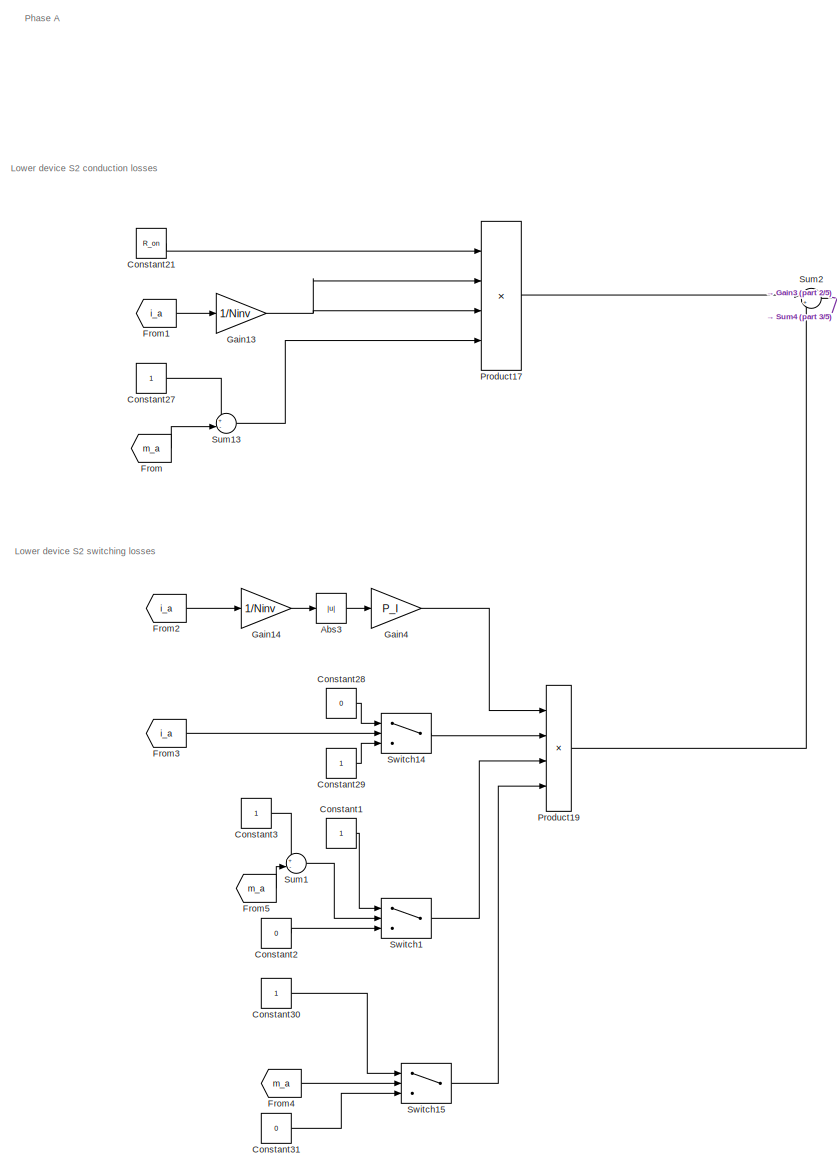
[diagram: Results Collecting for Scoring/Subsystem4 - part 1/5, center side, full height]
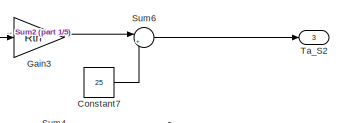
[diagram: Results Collecting for Scoring/Subsystem4 - part 2/5, top right region]
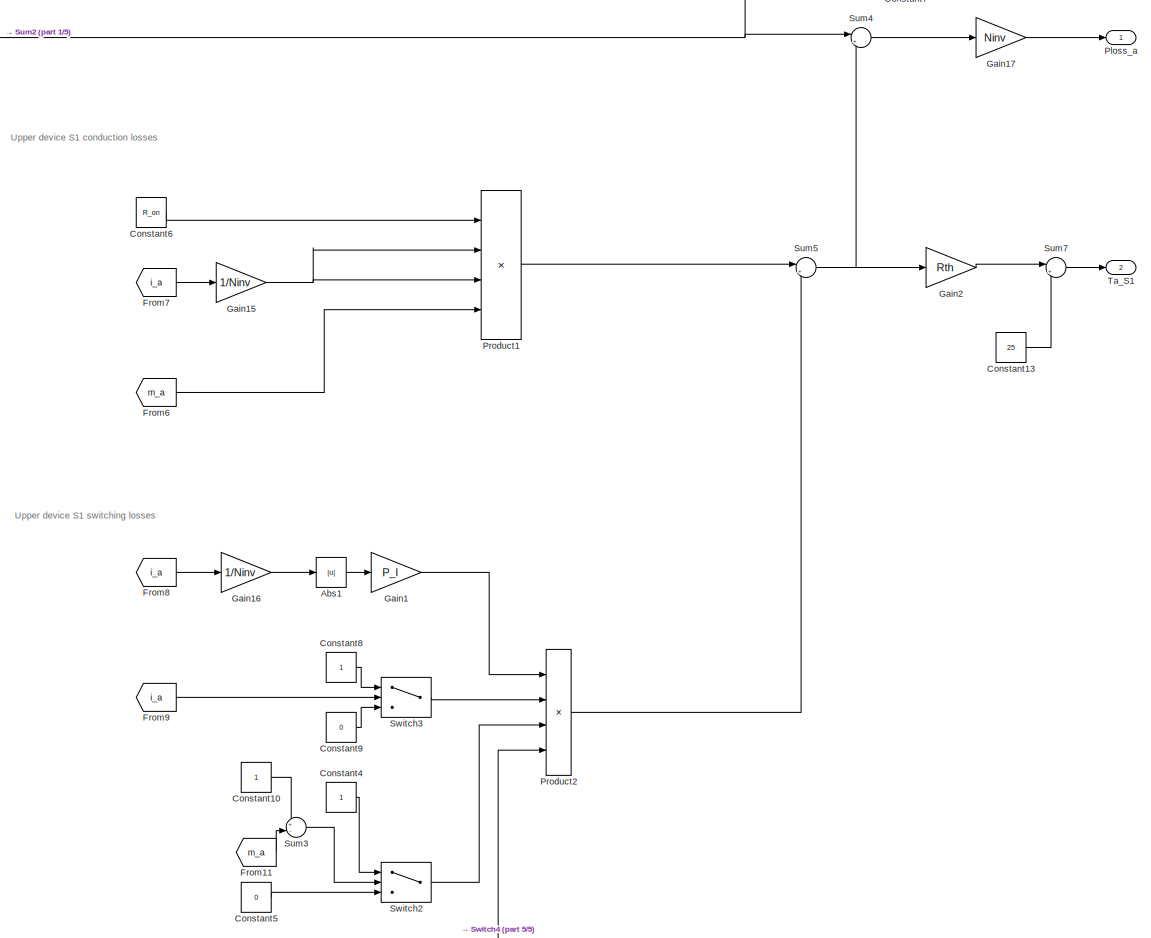
[diagram: Results Collecting for Scoring/Subsystem4 - part 3/5, middle right region]
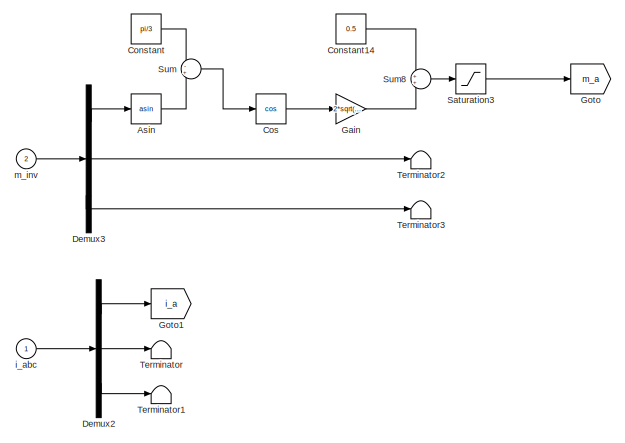
[diagram: Results Collecting for Scoring/Subsystem4 - part 4/5, middle left region]
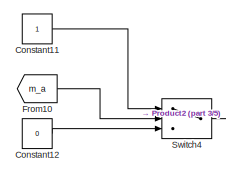
[diagram: Results Collecting for Scoring/Subsystem4 - part 5/5, bottom right region]
BLOCK [SubSystem] Results Collecting for Scoring/Subsystem4
  NameLocation = top
BLOCK [Abs] Results Collecting for Scoring/Subsystem4/Abs1
  SaturateOnIntegerOverflow = off
BLOCK [Abs] Results Collecting for Scoring/Subsystem4/Abs3
  SaturateOnIntegerOverflow = off
BLOCK [Trigonometry] Results Collecting for Scoring/Subsystem4/Asin
  Operator = asin
BLOCK [Constant] Results Collecting for Scoring/Subsystem4/Constant
  Value = pi/3
BLOCK [Constant] Results Collecting for Scoring/Subsystem4/Constant1
BLOCK [Constant] Results Collecting for Scoring/Subsystem4/Constant10
BLOCK [Constant] Results Collecting for Scoring/Subsystem4/Constant11
BLOCK [Constant] Results Collecting for Scoring/Subsystem4/Constant12
  Value = 0
BLOCK [Constant] Results Collecting for Scoring/Subsystem4/Constant13
  Value = 25
BLOCK [Constant] Results Collecting for Scoring/Subsystem4/Constant14
  Value = 0.5
BLOCK [Constant] Results Collecting for Scoring/Subsystem4/Constant2
  Value = 0
BLOCK [Constant] Results Collecting for Scoring/Subsystem4/Constant21
  Value = R_on
BLOCK [Constant] Results Collecting for Scoring/Subsystem4/Constant27
BLOCK [Constant] Results Collecting for Scoring/Subsystem4/Constant28
  Value = 0
BLOCK [Constant] Results Collecting for Scoring/Subsystem4/Constant29
BLOCK [Constant] Results Collecting for Scoring/Subsystem4/Constant3
BLOCK [Constant] Results Collecting for Scoring/Subsystem4/Constant30
BLOCK [Constant] Results Collecting for Scoring/Subsystem4/Constant31
  Value = 0
BLOCK [Constant] Results Collecting for Scoring/Subsystem4/Constant4
BLOCK [Constant] Results Collecting for Scoring/Subsystem4/Constant5
  Value = 0
BLOCK [Constant] Results Collecting for Scoring/Subsystem4/Constant6
  Value = R_on
BLOCK [Constant] Results Collecting for Scoring/Subsystem4/Constant7
  Value = 25
BLOCK [Constant] Results Collecting for Scoring/Subsystem4/Constant8
BLOCK [Constant] Results Collecting for Scoring/Subsystem4/Constant9
  Value = 0
BLOCK [Trigonometry] Results Collecting for Scoring/Subsystem4/Cos
  Operator = cos
BLOCK [Demux] Results Collecting for Scoring/Subsystem4/Demux2
  NameLocation = top
  Outputs = 3
BLOCK [Demux] Results Collecting for Scoring/Subsystem4/Demux3
  Outputs = 3
BLOCK [From] Results Collecting for Scoring/Subsystem4/From
  GotoTag = m_a
BLOCK [From] Results Collecting for Scoring/Subsystem4/From1
  GotoTag = i_a
BLOCK [From] Results Collecting for Scoring/Subsystem4/From10
  GotoTag = m_a
BLOCK [From] Results Collecting for Scoring/Subsystem4/From11
  GotoTag = m_a
BLOCK [From] Results Collecting for Scoring/Subsystem4/From2
  GotoTag = i_a
BLOCK [From] Results Collecting for Scoring/Subsystem4/From3
  GotoTag = i_a
BLOCK [From] Results Collecting for Scoring/Subsystem4/From4
  GotoTag = m_a
BLOCK [From] Results Collecting for Scoring/Subsystem4/From5
  GotoTag = m_a
BLOCK [From] Results Collecting for Scoring/Subsystem4/From6
  GotoTag = m_a
BLOCK [From] Results Collecting for Scoring/Subsystem4/From7
  GotoTag = i_a
BLOCK [From] Results Collecting for Scoring/Subsystem4/From8
  GotoTag = i_a
BLOCK [From] Results Collecting for Scoring/Subsystem4/From9
  GotoTag = i_a
BLOCK [Gain] Results Collecting for Scoring/Subsystem4/Gain
  Gain = 2*sqrt(3)/9
BLOCK [Gain] Results Collecting for Scoring/Subsystem4/Gain1
  Gain = P_I
BLOCK [Gain] Results Collecting for Scoring/Subsystem4/Gain13
  Gain = 1/Ninv
BLOCK [Gain] Results Collecting for Scoring/Subsystem4/Gain14
  Gain = 1/Ninv
BLOCK [Gain] Results Collecting for Scoring/Subsystem4/Gain15
  Gain = 1/Ninv
BLOCK [Gain] Results Collecting for Scoring/Subsystem4/Gain16
  Gain = 1/Ninv
BLOCK [Gain] Results Collecting for Scoring/Subsystem4/Gain17
  Gain = Ninv
BLOCK [Gain] Results Collecting for Scoring/Subsystem4/Gain2
  Gain = Rth
BLOCK [Gain] Results Collecting for Scoring/Subsystem4/Gain3
  Gain = Rth
BLOCK [Gain] Results Collecting for Scoring/Subsystem4/Gain4
  Gain = P_I
BLOCK [Goto] Results Collecting for Scoring/Subsystem4/Goto
  GotoTag = m_a
BLOCK [Goto] Results Collecting for Scoring/Subsystem4/Goto1
  GotoTag = i_a
BLOCK [Outport] Results Collecting for Scoring/Subsystem4/Ploss_a
BLOCK [Product] Results Collecting for Scoring/Subsystem4/Product1
  Inputs = 4
BLOCK [Product] Results Collecting for Scoring/Subsystem4/Product17
  Inputs = 4
BLOCK [Product] Results Collecting for Scoring/Subsystem4/Product19
  Inputs = 4
BLOCK [Product] Results Collecting for Scoring/Subsystem4/Product2
  Inputs = 4
BLOCK [Saturate] Results Collecting for Scoring/Subsystem4/Saturation3
  LowerLimit = 0
  UpperLimit = 1
BLOCK [Sum] Results Collecting for Scoring/Subsystem4/Sum
  Inputs = -+
BLOCK [Sum] Results Collecting for Scoring/Subsystem4/Sum1
  Inputs = +-
BLOCK [Sum] Results Collecting for Scoring/Subsystem4/Sum13
  Inputs = +-
BLOCK [Sum] Results Collecting for Scoring/Subsystem4/Sum2
  Inputs = |++
BLOCK [Sum] Results Collecting for Scoring/Subsystem4/Sum3
  Inputs = +-
BLOCK [Sum] Results Collecting for Scoring/Subsystem4/Sum4
  Inputs = |++
BLOCK [Sum] Results Collecting for Scoring/Subsystem4/Sum5
  Inputs = |++
BLOCK [Sum] Results Collecting for Scoring/Subsystem4/Sum6
  Inputs = |++
BLOCK [Sum] Results Collecting for Scoring/Subsystem4/Sum7
  Inputs = |++
BLOCK [Sum] Results Collecting for Scoring/Subsystem4/Sum8
BLOCK [Switch] Results Collecting for Scoring/Subsystem4/Switch1
  Criteria = u2 > Threshold
  InputSameDT = off
  SaturateOnIntegerOverflow = off
BLOCK [Switch] Results Collecting for Scoring/Subsystem4/Switch14
  Criteria = u2 > Threshold
  InputSameDT = off
  SaturateOnIntegerOverflow = off
BLOCK [Switch] Results Collecting for Scoring/Subsystem4/Switch15
  Criteria = u2 > Threshold
  InputSameDT = off
  SaturateOnIntegerOverflow = off
BLOCK [Switch] Results Collecting for Scoring/Subsystem4/Switch2
  Criteria = u2 > Threshold
  InputSameDT = off
  SaturateOnIntegerOverflow = off
BLOCK [Switch] Results Collecting for Scoring/Subsystem4/Switch3
  Criteria = u2 > Threshold
  InputSameDT = off
  SaturateOnIntegerOverflow = off
BLOCK [Switch] Results Collecting for Scoring/Subsystem4/Switch4
  Criteria = u2 > Threshold
  InputSameDT = off
  SaturateOnIntegerOverflow = off
BLOCK [Outport] Results Collecting for Scoring/Subsystem4/Ta_S1
  Port = 2
BLOCK [Outport] Results Collecting for Scoring/Subsystem4/Ta_S2
  Port = 3
BLOCK [Terminator] Results Collecting for Scoring/Subsystem4/Terminator
BLOCK [Terminator] Results Collecting for Scoring/Subsystem4/Terminator1
BLOCK [Terminator] Results Collecting for Scoring/Subsystem4/Terminator2
BLOCK [Terminator] Results Collecting for Scoring/Subsystem4/Terminator3
BLOCK [Inport] Results Collecting for Scoring/Subsystem4/i_abc
BLOCK [Inport] Results Collecting for Scoring/Subsystem4/m_inv
  Port = 2
BLOCK [Sum] Results Collecting for Scoring/Subtract
  IconShape = rectangular
  Inputs = -+
  NameLocation = top
BLOCK [SubSystem] Results Collecting for Scoring/Supercapacitor Branch Measurement
  NameLocation = top
BLOCK [From] Results Collecting for Scoring/Supercapacitor Branch Measurement/From1
  GotoTag = SoC_SC
  TagVisibility = global
BLOCK [From] Results Collecting for Scoring/Supercapacitor Branch Measurement/From10
  GotoTag = m_sc
  TagVisibility = global
BLOCK [From] Results Collecting for Scoring/Supercapacitor Branch Measurement/From17
  GotoTag = u_sc_modul
  NameLocation = top
  TagVisibility = global
BLOCK [From] Results Collecting for Scoring/Supercapacitor Branch Measurement/From18
  GotoTag = i_sc_modul
  NameLocation = top
  TagVisibility = global
BLOCK [From] Results Collecting for Scoring/Supercapacitor Branch Measurement/From21
  GotoTag = i_ch_sc_ref
  TagVisibility = global
BLOCK [From] Results Collecting for Scoring/Supercapacitor Branch Measurement/From22
  GotoTag = i_sc_ref
  TagVisibility = global
BLOCK [From] Results Collecting for Scoring/Supercapacitor Branch Measurement/From23
  GotoTag = u_ch_sc_ref
  TagVisibility = global
BLOCK [From] Results Collecting for Scoring/Supercapacitor Branch Measurement/From4
  GotoTag = u_sc
  NameLocation = top
  TagVisibility = global
BLOCK [From] Results Collecting for Scoring/Supercapacitor Branch Measurement/From5
  GotoTag = i_sc
  NameLocation = top
  TagVisibility = global
BLOCK [From] Results Collecting for Scoring/Supercapacitor Branch Measurement/From8
  GotoTag = i_ch_sc
  NameLocation = top
  TagVisibility = global
BLOCK [Outport] Results Collecting for Scoring/Supercapacitor Branch Measurement/SoC_SC
  NameLocation = top
  Port = 10
  VectorParamsAs1DForOutWhenUnconnected = off
BLOCK [Outport] Results Collecting for Scoring/Supercapacitor Branch Measurement/i_ch_sc
  NameLocation = top
  Port = 5
  VectorParamsAs1DForOutWhenUnconnected = off
BLOCK [Outport] Results Collecting for Scoring/Supercapacitor Branch Measurement/i_ch_sc_ref
  NameLocation = top
  Port = 7
  VectorParamsAs1DForOutWhenUnconnected = off
BLOCK [Outport] Results Collecting for Scoring/Supercapacitor Branch Measurement/i_sc
  NameLocation = top
  Port = 2
  VectorParamsAs1DForOutWhenUnconnected = off
BLOCK [Outport] Results Collecting for Scoring/Supercapacitor Branch Measurement/i_sc_modul
  NameLocation = top
  Port = 4
  VectorParamsAs1DForOutWhenUnconnected = off
BLOCK [Outport] Results Collecting for Scoring/Supercapacitor Branch Measurement/i_sc_ref
  NameLocation = top
  Port = 8
  VectorParamsAs1DForOutWhenUnconnected = off
BLOCK [Outport] Results Collecting for Scoring/Supercapacitor Branch Measurement/m_sc
  NameLocation = top
  Port = 6
  VectorParamsAs1DForOutWhenUnconnected = off
BLOCK [Outport] Results Collecting for Scoring/Supercapacitor Branch Measurement/u_ch_sc_ref
  NameLocation = top
  Port = 9
  VectorParamsAs1DForOutWhenUnconnected = off
BLOCK [Outport] Results Collecting for Scoring/Supercapacitor Branch Measurement/u_sc
  NameLocation = top
  VectorParamsAs1DForOutWhenUnconnected = off
BLOCK [Outport] Results Collecting for Scoring/Supercapacitor Branch Measurement/u_sc_modul
  NameLocation = top
  Port = 3
  VectorParamsAs1DForOutWhenUnconnected = off
BLOCK [Terminator] Results Collecting for Scoring/Terminator
BLOCK [Terminator] Results Collecting for Scoring/Terminator1
BLOCK [Terminator] Results Collecting for Scoring/Terminator10
BLOCK [Terminator] Results Collecting for Scoring/Terminator2
BLOCK [Terminator] Results Collecting for Scoring/Terminator3
BLOCK [Terminator] Results Collecting for Scoring/Terminator4
BLOCK [Terminator] Results Collecting for Scoring/Terminator5
BLOCK [Terminator] Results Collecting for Scoring/Terminator6
BLOCK [Terminator] Results Collecting for Scoring/Terminator7
BLOCK [Terminator] Results Collecting for Scoring/Terminator8
BLOCK [Terminator] Results Collecting for Scoring/Terminator9
BLOCK [ToWorkspace] Results Collecting for Scoring/To Workspace
  Decimation = SIMULPARAM.Decimation
  FixptAsFi = on
  MaxDataPoints = inf
  NameLocation = top
  SampleTime = -1
  VariableName = Bat_soc
BLOCK [ToWorkspace] Results Collecting for Scoring/To Workspace1
  Decimation = SIMULPARAM.Decimation
  FixptAsFi = on
  MaxDataPoints = inf
  NameLocation = top
  SampleTime = -1
  VariableName = u_bat
BLOCK [ToWorkspace] Results Collecting for Scoring/To Workspace10
  Decimation = SIMULPARAM.Decimation
  FixptAsFi = on
  MaxDataPoints = inf
  NameLocation = top
  SampleTime = -1
  VariableName = u_sc
BLOCK [ToWorkspace] Results Collecting for Scoring/To Workspace11
  Decimation = SIMULPARAM.Decimation
  FixptAsFi = on
  MaxDataPoints = inf
  NameLocation = top
  SampleTime = -1
  VariableName = i_sc
BLOCK [ToWorkspace] Results Collecting for Scoring/To Workspace12
  Decimation = SIMULPARAM.Decimation
  FixptAsFi = on
  MaxDataPoints = inf
  NameLocation = top
  SampleTime = -1
  VariableName = u_sc_modul
BLOCK [ToWorkspace] Results Collecting for Scoring/To Workspace13
  Decimation = SIMULPARAM.Decimation
  FixptAsFi = on
  MaxDataPoints = inf
  NameLocation = top
  SampleTime = -1
  VariableName = i_sc_modul
BLOCK [ToWorkspace] Results Collecting for Scoring/To Workspace14
  Decimation = SIMULPARAM.Decimation
  FixptAsFi = on
  MaxDataPoints = inf
  NameLocation = top
  SampleTime = -1
  VariableName = i_ch_sc
BLOCK [ToWorkspace] Results Collecting for Scoring/To Workspace15
  Decimation = SIMULPARAM.Decimation
  FixptAsFi = on
  MaxDataPoints = inf
  NameLocation = top
  SampleTime = -1
  VariableName = m_sc
BLOCK [ToWorkspace] Results Collecting for Scoring/To Workspace16
  Decimation = SIMULPARAM.Decimation
  FixptAsFi = on
  MaxDataPoints = inf
  NameLocation = top
  SampleTime = -1
  VariableName = i_ch_sc_ref
BLOCK [ToWorkspace] Results Collecting for Scoring/To Workspace17
  Decimation = SIMULPARAM.Decimation
  FixptAsFi = on
  MaxDataPoints = inf
  NameLocation = top
  SampleTime = -1
  VariableName = i_sc_ref
BLOCK [ToWorkspace] Results Collecting for Scoring/To Workspace18
  Decimation = SIMULPARAM.Decimation
  FixptAsFi = on
  MaxDataPoints = inf
  NameLocation = top
  SampleTime = -1
  VariableName = u_ch_sc_ref
BLOCK [ToWorkspace] Results Collecting for Scoring/To Workspace19
  Decimation = SIMULPARAM.Decimation
  FixptAsFi = on
  MaxDataPoints = inf
  NameLocation = top
  SampleTime = -1
  VariableName = Travel_dist
BLOCK [ToWorkspace] Results Collecting for Scoring/To Workspace2
  Decimation = SIMULPARAM.Decimation
  FixptAsFi = on
  MaxDataPoints = inf
  NameLocation = top
  SampleTime = -1
  VariableName = i_bat
BLOCK [ToWorkspace] Results Collecting for Scoring/To Workspace20
  Decimation = SIMULPARAM.Decimation
  FixptAsFi = on
  MaxDataPoints = inf
  NameLocation = top
  SampleTime = -1
  VariableName = u_dc
BLOCK [ToWorkspace] Results Collecting for Scoring/To Workspace21
  Decimation = SIMULPARAM.Decimation
  FixptAsFi = on
  MaxDataPoints = inf
  NameLocation = top
  SampleTime = -1
  VariableName = i_dc
BLOCK [ToWorkspace] Results Collecting for Scoring/To Workspace22
  Decimation = SIMULPARAM.Decimation
  FixptAsFi = on
  MaxDataPoints = inf
  NameLocation = top
  SampleTime = -1
  VariableName = v_veh
BLOCK [ToWorkspace] Results Collecting for Scoring/To Workspace23
  Decimation = SIMULPARAM.Decimation
  FixptAsFi = on
  MaxDataPoints = inf
  NameLocation = top
  SampleTime = -1
  VariableName = v_veh_ref
BLOCK [ToWorkspace] Results Collecting for Scoring/To Workspace24
  Decimation = SIMULPARAM.Decimation
  FixptAsFi = on
  MaxDataPoints = inf
  NameLocation = top
  SampleTime = -1
  VariableName = Ploss_bat
BLOCK [ToWorkspace] Results Collecting for Scoring/To Workspace25
  Decimation = SIMULPARAM.Decimation
  FixptAsFi = on
  MaxDataPoints = inf
  NameLocation = top
  SampleTime = -1
  VariableName = Ploss_sc
BLOCK [ToWorkspace] Results Collecting for Scoring/To Workspace26
  Decimation = SIMULPARAM.Decimation
  FixptAsFi = on
  MaxDataPoints = inf
  NameLocation = top
  SampleTime = -1
  VariableName = Ploss_inv
BLOCK [ToWorkspace] Results Collecting for Scoring/To Workspace27
  Decimation = SIMULPARAM.Decimation
  FixptAsFi = on
  MaxDataPoints = inf
  NameLocation = top
  SampleTime = -1
  VariableName = Ploss_em
BLOCK [ToWorkspace] Results Collecting for Scoring/To Workspace28
  Decimation = SIMULPARAM.Decimation
  FixptAsFi = on
  MaxDataPoints = inf
  NameLocation = top
  SampleTime = -1
  VariableName = Ts1_bat
BLOCK [ToWorkspace] Results Collecting for Scoring/To Workspace29
  Decimation = SIMULPARAM.Decimation
  FixptAsFi = on
  MaxDataPoints = inf
  NameLocation = top
  SampleTime = -1
  VariableName = Ts2_bat
BLOCK [ToWorkspace] Results Collecting for Scoring/To Workspace3
  Decimation = SIMULPARAM.Decimation
  FixptAsFi = on
  MaxDataPoints = inf
  NameLocation = top
  SampleTime = -1
  VariableName = u_bat_cell
BLOCK [ToWorkspace] Results Collecting for Scoring/To Workspace30
  Decimation = SIMULPARAM.Decimation
  FixptAsFi = on
  MaxDataPoints = inf
  NameLocation = top
  SampleTime = -1
  VariableName = Ts1_sc
BLOCK [ToWorkspace] Results Collecting for Scoring/To Workspace31
  Decimation = SIMULPARAM.Decimation
  FixptAsFi = on
  MaxDataPoints = inf
  NameLocation = top
  SampleTime = -1
  VariableName = Ts2_sc
BLOCK [ToWorkspace] Results Collecting for Scoring/To Workspace32
  Decimation = SIMULPARAM.Decimation
  FixptAsFi = on
  MaxDataPoints = inf
  NameLocation = top
  SampleTime = -1
  VariableName = Ts1_inv
BLOCK [ToWorkspace] Results Collecting for Scoring/To Workspace33
  Decimation = SIMULPARAM.Decimation
  FixptAsFi = on
  MaxDataPoints = inf
  NameLocation = top
  SampleTime = -1
  VariableName = Ts2_inv
BLOCK [ToWorkspace] Results Collecting for Scoring/To Workspace34
  Decimation = SIMULPARAM.Decimation
  FixptAsFi = on
  MaxDataPoints = inf
  SampleTime = -1
  VariableName = Bat_charge_energy
BLOCK [ToWorkspace] Results Collecting for Scoring/To Workspace35
  Decimation = SIMULPARAM.Decimation
  FixptAsFi = on
  MaxDataPoints = inf
  NameLocation = top
  SampleTime = -1
  VariableName = SoC_SC
BLOCK [ToWorkspace] Results Collecting for Scoring/To Workspace36
  Decimation = SIMULPARAM.Decimation
  FixptAsFi = on
  MaxDataPoints = inf
  NameLocation = top
  SampleTime = -1
  VariableName = PotenciaRequerida
BLOCK [ToWorkspace] Results Collecting for Scoring/To Workspace37
  Decimation = SIMULPARAM.Decimation
  FixptAsFi = on
  MaxDataPoints = inf
  NameLocation = top
  SampleTime = -1
  VariableName = ErrorVelocidad
BLOCK [ToWorkspace] Results Collecting for Scoring/To Workspace4
  Decimation = SIMULPARAM.Decimation
  FixptAsFi = on
  MaxDataPoints = inf
  NameLocation = top
  SampleTime = -1
  VariableName = i_bat_cell
BLOCK [ToWorkspace] Results Collecting for Scoring/To Workspace5
  Decimation = SIMULPARAM.Decimation
  FixptAsFi = on
  MaxDataPoints = inf
  NameLocation = top
  SampleTime = -1
  VariableName = i_bat_dc
BLOCK [ToWorkspace] Results Collecting for Scoring/To Workspace6
  Decimation = SIMULPARAM.Decimation
  FixptAsFi = on
  MaxDataPoints = inf
  NameLocation = top
  SampleTime = -1
  VariableName = m_bat
BLOCK [ToWorkspace] Results Collecting for Scoring/To Workspace7
  Decimation = SIMULPARAM.Decimation
  FixptAsFi = on
  MaxDataPoints = inf
  NameLocation = top
  SampleTime = -1
  VariableName = i_ch_bat_ref
BLOCK [ToWorkspace] Results Collecting for Scoring/To Workspace8
  Decimation = SIMULPARAM.Decimation
  FixptAsFi = on
  MaxDataPoints = inf
  NameLocation = top
  SampleTime = -1
  VariableName = i_bat_ref
BLOCK [ToWorkspace] Results Collecting for Scoring/To Workspace9
  Decimation = SIMULPARAM.Decimation
  FixptAsFi = on
  MaxDataPoints = inf
  NameLocation = top
  SampleTime = -1
  VariableName = u_ch_bat_ref
BLOCK [Math] Results Collecting for Scoring/Transpose
  NameLocation = top
  Operator = transpose
BLOCK [SubSystem] Results Collecting for Scoring/Vehicle Measurement
  NameLocation = top
BLOCK [Constant] Results Collecting for Scoring/Vehicle Measurement/Constant
  Value = 10^-4
BLOCK [Outport] Results Collecting for Scoring/Vehicle Measurement/ErrorVelocidad
  NameLocation = top
  Port = 7
BLOCK [From] Results Collecting for Scoring/Vehicle Measurement/From1
  GotoTag = v_veh
  TagVisibility = global
BLOCK [From] Results Collecting for Scoring/Vehicle Measurement/From16
  GotoTag = Travel_dist
  NameLocation = top
  TagVisibility = global
BLOCK [From] Results Collecting for Scoring/Vehicle Measurement/From19
  GotoTag = v_veh
  NameLocation = top
  TagVisibility = global
BLOCK [From] Results Collecting for Scoring/Vehicle Measurement/From20
  GotoTag = v_veh_ref
  NameLocation = top
  TagVisibility = global
BLOCK [From] Results Collecting for Scoring/Vehicle Measurement/From3
  GotoTag = u_dc
  TagVisibility = global
BLOCK [From] Results Collecting for Scoring/Vehicle Measurement/From4
  GotoTag = i_dc
  TagVisibility = global
BLOCK [From] Results Collecting for Scoring/Vehicle Measurement/From5
  GotoTag = v_veh_ref
  TagVisibility = global
BLOCK [From] Results Collecting for Scoring/Vehicle Measurement/From6
  GotoTag = u_dc
  NameLocation = top
  TagVisibility = global
BLOCK [From] Results Collecting for Scoring/Vehicle Measurement/From9
  GotoTag = i_dc
  NameLocation = top
  TagVisibility = global
BLOCK [Outport] Results Collecting for Scoring/Vehicle Measurement/Potencia_Req
  NameLocation = top
  Port = 6
BLOCK [Product] Results Collecting for Scoring/Vehicle Measurement/Product
  Inputs = 3
BLOCK [Sum] Results Collecting for Scoring/Vehicle Measurement/Sum
  IconShape = rectangular
  Inputs = +-
BLOCK [Outport] Results Collecting for Scoring/Vehicle Measurement/Travel_dist
  NameLocation = top
  VectorParamsAs1DForOutWhenUnconnected = off
BLOCK [Outport] Results Collecting for Scoring/Vehicle Measurement/i_dc
  NameLocation = top
  Port = 3
  VectorParamsAs1DForOutWhenUnconnected = off
BLOCK [Outport] Results Collecting for Scoring/Vehicle Measurement/u_dc
  NameLocation = top
  Port = 2
  VectorParamsAs1DForOutWhenUnconnected = off
BLOCK [Outport] Results Collecting for Scoring/Vehicle Measurement/v_veh
  NameLocation = top
  Port = 4
  VectorParamsAs1DForOutWhenUnconnected = off
BLOCK [Outport] Results Collecting for Scoring/Vehicle Measurement/v_veh_ref
  NameLocation = top
  Port = 5
  VectorParamsAs1DForOutWhenUnconnected = off
BLOCK [SubSystem] Smoothing Inductor (Battery Pack)
BLOCK [Sum] Smoothing Inductor (Battery Pack)/Sum
  Inputs = |+-
BLOCK [TransferFcn] Smoothing Inductor (Battery Pack)/Transfer Fcn
  Denominator = [L_bat.L_sm L_bat.R_sm]
BLOCK [Outport] Smoothing Inductor (Battery Pack)/i_bat
  InitialOutput = 0
  Port = 2
  VectorParamsAs1DForOutWhenUnconnected = off
BLOCK [Outport] Smoothing Inductor (Battery Pack)/i_bat 
  InitialOutput = 0
  VectorParamsAs1DForOutWhenUnconnected = off
BLOCK [Inport] Smoothing Inductor (Battery Pack)/u_bat
BLOCK [Inport] Smoothing Inductor (Battery Pack)/u_ch_bat
  Port = 2
BLOCK [SubSystem] Smoothing Inductor (SC Pack)
BLOCK [Sum] Smoothing Inductor (SC Pack)/Sum
  Inputs = |+-
BLOCK [TransferFcn] Smoothing Inductor (SC Pack)/Transfer Fcn
  Denominator = [L_sc.L_sm L_sc.R_sm]
BLOCK [Outport] Smoothing Inductor (SC Pack)/i_sc
  InitialOutput = 0
  Port = 2
  VectorParamsAs1DForOutWhenUnconnected = off
BLOCK [Outport] Smoothing Inductor (SC Pack)/i_sc 
  InitialOutput = 0
  VectorParamsAs1DForOutWhenUnconnected = off
BLOCK [Inport] Smoothing Inductor (SC Pack)/u_ch_sc
  Port = 2
BLOCK [Inport] Smoothing Inductor (SC Pack)/u_sc
BLOCK [ToWorkspace] SoC Batería
  FixptAsFi = on
  MaxDataPoints = inf
  SampleTime = -1
  SaveFormat = Structure With Time
  VariableName = SoC_Bat
BLOCK [ToWorkspace] SoC SC
  FixptAsFi = on
  MaxDataPoints = inf
  SampleTime = -1
  SaveFormat = Structure With Time
  VariableName = SoC_SC1
BLOCK [Sum] Sum
  IconShape = rectangular
  Inputs = +-
BLOCK [SubSystem] Supercapacitor
  AncestorBlock = simulink/REM/SE
BLOCK [Sum] Supercapacitor/Add
  IconShape = rectangular
  Inputs = +++
BLOCK [Constant] Supercapacitor/Constant
  Value = SC_modul.U_init
BLOCK [Constant] Supercapacitor/Constant1
  Value = 1/SC_modul.U_rated
BLOCK [Constant] Supercapacitor/Constant2
  Value = 10
BLOCK [Gain] Supercapacitor/Gain
  Gain = -1/SC_modul.C_rated
BLOCK [Gain] Supercapacitor/Gain1
  Gain = n_sc_seri
BLOCK [Gain] Supercapacitor/Gain2
  Gain = -SC_modul.R_esr
BLOCK [Gain] Supercapacitor/Gain3
  Gain = 1/n_sc_par
  NameLocation = top
BLOCK [Goto] Supercapacitor/Goto1
  GotoTag = i_sc
  TagVisibility = global
BLOCK [Goto] Supercapacitor/Goto2
  GotoTag = u_sc
  TagVisibility = global
BLOCK [Goto] Supercapacitor/Goto3
  GotoTag = u_sc_modul
  TagVisibility = global
BLOCK [Goto] Supercapacitor/Goto4
  GotoTag = i_sc_modul
  TagVisibility = global
BLOCK [Goto] Supercapacitor/Goto5
  GotoTag = SoC_SC
  TagVisibility = global
BLOCK [Integrator] Supercapacitor/Integrator
BLOCK [Product] Supercapacitor/Product
  Inputs = 3
BLOCK [Outport] Supercapacitor/SoC_SC 
  Port = 2
BLOCK [Inport] Supercapacitor/i_sc
BLOCK [Outport] Supercapacitor/u_sc
  InitialOutput = 0
  NameLocation = top
  VectorParamsAs1DForOutWhenUnconnected = off
BLOCK [SubSystem] e-Racing Model
BLOCK [SubSystem] e-Racing Model/Armature Inversion Current Controller
  AncestorBlock = simulink/SMC/Asservissement\nCorrecteur IP
BLOCK [Demux] e-Racing Model/Armature Inversion Current Controller/Demux
  NameLocation = top
  Outputs = 2
BLOCK [Demux] e-Racing Model/Armature Inversion Current Controller/Demux1
  NameLocation = top
  Outputs = 2
BLOCK [Demux] e-Racing Model/Armature Inversion Current Controller/Demux2
  NameLocation = top
  Outputs = 2
BLOCK [Gain] e-Racing Model/Armature Inversion Current Controller/Gain
  Gain = Kp_d_cur
  NameLocation = top
BLOCK [Gain] e-Racing Model/Armature Inversion Current Controller/Gain1
  Gain = Ki_d_cur
  NameLocation = top
BLOCK [Gain] e-Racing Model/Armature Inversion Current Controller/Gain2
  Gain = Kp_q_cur
  NameLocation = top
BLOCK [Gain] e-Racing Model/Armature Inversion Current Controller/Gain3
  Gain = Ki_q_cur
  NameLocation = top
BLOCK [Goto] e-Racing Model/Armature Inversion Current Controller/Goto
  GotoTag = u_dq_ref
  NameLocation = top
  TagVisibility = global
BLOCK [Integrator] e-Racing Model/Armature Inversion Current Controller/Integrator
  NameLocation = top
BLOCK [Integrator] e-Racing Model/Armature Inversion Current Controller/Integrator1
  NameLocation = top
BLOCK [Mux] e-Racing Model/Armature Inversion Current Controller/Mux
  DisplayOption = bar
  Inputs = 2
  NameLocation = top
BLOCK [Sum] e-Racing Model/Armature Inversion Current Controller/Subtract
  IconShape = rectangular
  Inputs = -+
  NameLocation = top
BLOCK [Sum] e-Racing Model/Armature Inversion Current Controller/Subtract1
  IconShape = rectangular
  Inputs = -+
  NameLocation = top
BLOCK [Sum] e-Racing Model/Armature Inversion Current Controller/Sum
  Inputs = |++
  NameLocation = top
BLOCK [Sum] e-Racing Model/Armature Inversion Current Controller/Sum1
  Inputs = |++
  NameLocation = top
BLOCK [Sum] e-Racing Model/Armature Inversion Current Controller/Sum2
  Inputs = |++
  NameLocation = top
BLOCK [Sum] e-Racing Model/Armature Inversion Current Controller/Sum3
  Inputs = ++|
  NameLocation = top
BLOCK [Inport] e-Racing Model/Armature Inversion Current Controller/e_dq_est
  NameLocation = top
BLOCK [Inport] e-Racing Model/Armature Inversion Current Controller/i_dq_est
  NameLocation = top
  Port = 2
BLOCK [Inport] e-Racing Model/Armature Inversion Current Controller/i_dq_ref
  Port = 3
BLOCK [Outport] e-Racing Model/Armature Inversion Current Controller/u_dq_ref
  InitialOutput = 0
  VectorParamsAs1DForOutWhenUnconnected = off
BLOCK [SubSystem] e-Racing Model/Chasis
BLOCK [SubSystem] e-Racing Model/Chasis Inversion 
  AncestorBlock = simulink/SMC/Asservissement\nCorrecteur IP
BLOCK [Sum] e-Racing Model/Chasis Inversion /Add
  IconShape = rectangular
  NameLocation = top
BLOCK [Inport] e-Racing Model/Chasis Inversion /Fenv_meas
  NameLocation = top
BLOCK [Outport] e-Racing Model/Chasis Inversion /Ftrac_ref
  InitialOutput = 0
  VectorParamsAs1DForOutWhenUnconnected = off
BLOCK [Gain] e-Racing Model/Chasis Inversion /Gain
  Gain = Kp_Vveh
  NameLocation = top
BLOCK [Sum] e-Racing Model/Chasis Inversion /Subtract
  IconShape = rectangular
  Inputs = -+
  NameLocation = top
BLOCK [Inport] e-Racing Model/Chasis Inversion /Vveh_meas
  NameLocation = top
  Port = 2
BLOCK [Inport] e-Racing Model/Chasis Inversion /Vveh_ref
  Port = 3
BLOCK [Inport] e-Racing Model/Chasis/F_res
  Port = 2
BLOCK [Inport] e-Racing Model/Chasis/F_trac
BLOCK [Gain] e-Racing Model/Chasis/Gain
  Gain = 1/VEH.Mass
BLOCK [Integrator] e-Racing Model/Chasis/Integrator
BLOCK [Sum] e-Racing Model/Chasis/Sum
  Inputs = |+-
BLOCK [Outport] e-Racing Model/Chasis/v_veh
  InitialOutput = 0
  VectorParamsAs1DForOutWhenUnconnected = off
BLOCK [Outport] e-Racing Model/Chasis/v_veh  
  InitialOutput = 0
  Port = 2
  VectorParamsAs1DForOutWhenUnconnected = off
BLOCK [SubSystem] e-Racing Model/E//M Conversion Inversion
  AncestorBlock = simulink/SMC/Inversion EC\navec mesure
BLOCK [Sum] e-Racing Model/E//M Conversion Inversion/Add
  IconShape = rectangular
  NameLocation = top
BLOCK [Constant] e-Racing Model/E//M Conversion Inversion/Constant
  NameLocation = top
  Value = IPM.psi
BLOCK [Product] e-Racing Model/E//M Conversion Inversion/Divide
  Inputs = /*
  NameLocation = top
BLOCK [Gain] e-Racing Model/E//M Conversion Inversion/Gain
  Gain = 4/(3*IPM.p)
  NameLocation = top
BLOCK [Gain] e-Racing Model/E//M Conversion Inversion/Gain6
  Gain = IPM.L_d-IPM.L_q
  NameLocation = top
BLOCK [Goto] e-Racing Model/E//M Conversion Inversion/Goto
  GotoTag = i_q_ref
  NameLocation = top
  TagVisibility = global
BLOCK [Memory] e-Racing Model/E//M Conversion Inversion/Memory
BLOCK [Mux] e-Racing Model/E//M Conversion Inversion/Mux
  DisplayOption = bar
  Inputs = 2
  NameLocation = top
BLOCK [Inport] e-Racing Model/E//M Conversion Inversion/T_e_ref
BLOCK [Inport] e-Racing Model/E//M Conversion Inversion/i_d_ref
  NameLocation = top
  Port = 2
BLOCK [Outport] e-Racing Model/E//M Conversion Inversion/i_dq_ref
  InitialOutput = 0
  VectorParamsAs1DForOutWhenUnconnected = off
BLOCK [SubSystem] e-Racing Model/Electro-mechanic Conversion
BLOCK [Sum] e-Racing Model/Electro-mechanic Conversion/Add
  IconShape = rectangular
BLOCK [Constant] e-Racing Model/Electro-mechanic Conversion/Constant
  Value = 0
BLOCK [Constant] e-Racing Model/Electro-mechanic Conversion/Constant1
BLOCK [Constant] e-Racing Model/Electro-mechanic Conversion/Constant2
  Value = -1
BLOCK [Demux] e-Racing Model/Electro-mechanic Conversion/Demux
  Outputs = 2
BLOCK [Product] e-Racing Model/Electro-mechanic Conversion/Divide
  Inputs = */
BLOCK [Gain] e-Racing Model/Electro-mechanic Conversion/Gain
  Gain = IPM.L_q
  NameLocation = top
BLOCK [Gain] e-Racing Model/Electro-mechanic Conversion/Gain1
  Gain = -1
  NameLocation = top
BLOCK [Gain] e-Racing Model/Electro-mechanic Conversion/Gain2
  Gain = IPM.L_d
  NameLocation = top
BLOCK [Gain] e-Racing Model/Electro-mechanic Conversion/Gain3
  Gain = IPM.psi
  NameLocation = top
BLOCK [Gain] e-Racing Model/Electro-mechanic Conversion/Gain4
  Gain = 3*IPM.p/4
BLOCK [Gain] e-Racing Model/Electro-mechanic Conversion/Gain5
  Gain = IPM.psi
BLOCK [Gain] e-Racing Model/Electro-mechanic Conversion/Gain6
  Gain = IPM.L_d-IPM.L_q
BLOCK [Goto] e-Racing Model/Electro-mechanic Conversion/Goto
  GotoTag = w_m
  NameLocation = top
  TagVisibility = global
BLOCK [Goto] e-Racing Model/Electro-mechanic Conversion/Goto1
  GotoTag = e_dq
  NameLocation = top
  TagVisibility = global
BLOCK [Goto] e-Racing Model/Electro-mechanic Conversion/Goto2
  GotoTag = theta
  TagVisibility = global
BLOCK [Goto] e-Racing Model/Electro-mechanic Conversion/Goto9
  GotoTag = T_e
  TagVisibility = global
BLOCK [Integrator] e-Racing Model/Electro-mechanic Conversion/Integrator
BLOCK [Gain] e-Racing Model/Electro-mechanic Conversion/Mech to Elec
  Gain = IPM.p/2
  NameLocation = top
BLOCK [Mux] e-Racing Model/Electro-mechanic Conversion/Mux
  DisplayOption = bar
  Inputs = 2
  NameLocation = top
BLOCK [SubSystem] e-Racing Model/Electro-mechanic Conversion/Ploss Calculation
BLOCK [Sum] e-Racing Model/Electro-mechanic Conversion/Ploss Calculation/Add
  IconShape = rectangular
BLOCK [Sum] e-Racing Model/Electro-mechanic Conversion/Ploss Calculation/Add1
  IconShape = rectangular
  Inputs = +++
BLOCK [Sum] e-Racing Model/Electro-mechanic Conversion/Ploss Calculation/Add2
  IconShape = rectangular
BLOCK [Sum] e-Racing Model/Electro-mechanic Conversion/Ploss Calculation/Add3
  IconShape = rectangular
BLOCK [Constant] e-Racing Model/Electro-mechanic Conversion/Ploss Calculation/Constant
  Value = IPM.psi
BLOCK [Constant] e-Racing Model/Electro-mechanic Conversion/Ploss Calculation/Constant1
  Value = IPM.Gamma
BLOCK [Gain] e-Racing Model/Electro-mechanic Conversion/Ploss Calculation/Gain
  Gain = 1.5*IPM.R_s
BLOCK [Gain] e-Racing Model/Electro-mechanic Conversion/Ploss Calculation/Gain1
  Gain = IPM.C_str
BLOCK [Gain] e-Racing Model/Electro-mechanic Conversion/Ploss Calculation/Gain2
  Gain = IPM.L_d
BLOCK [Gain] e-Racing Model/Electro-mechanic Conversion/Ploss Calculation/Gain3
  Gain = IPM.L_q
BLOCK [Gain] e-Racing Model/Electro-mechanic Conversion/Ploss Calculation/Gain4
  Gain = IPM.C_fe
BLOCK [Inport] e-Racing Model/Electro-mechanic Conversion/Ploss Calculation/I_d
BLOCK [Inport] e-Racing Model/Electro-mechanic Conversion/Ploss Calculation/I_q
  Port = 2
BLOCK [Math] e-Racing Model/Electro-mechanic Conversion/Ploss Calculation/Math Function
  Operator = pow
BLOCK [Outport] e-Racing Model/Electro-mechanic Conversion/Ploss Calculation/Ploss
BLOCK [Product] e-Racing Model/Electro-mechanic Conversion/Ploss Calculation/Product
BLOCK [Product] e-Racing Model/Electro-mechanic Conversion/Ploss Calculation/Product1
BLOCK [Product] e-Racing Model/Electro-mechanic Conversion/Ploss Calculation/Product2
BLOCK [Product] e-Racing Model/Electro-mechanic Conversion/Ploss Calculation/Product3
BLOCK [Product] e-Racing Model/Electro-mechanic Conversion/Ploss Calculation/Product4
BLOCK [Product] e-Racing Model/Electro-mechanic Conversion/Ploss Calculation/Product5
BLOCK [Product] e-Racing Model/Electro-mechanic Conversion/Ploss Calculation/Product6
BLOCK [Inport] e-Racing Model/Electro-mechanic Conversion/Ploss Calculation/w_s
  Port = 3
BLOCK [Product] e-Racing Model/Electro-mechanic Conversion/Product
  NameLocation = top
BLOCK [Product] e-Racing Model/Electro-mechanic Conversion/Product1
  NameLocation = top
BLOCK [Product] e-Racing Model/Electro-mechanic Conversion/Product2
BLOCK [Product] e-Racing Model/Electro-mechanic Conversion/Product3
BLOCK [Product] e-Racing Model/Electro-mechanic Conversion/Product5
BLOCK [Scope] e-Racing Model/Electro-mechanic Conversion/Scope1
  Floating = off
  NumInputPorts = 1
  ScopeSpecificationString = Simulink.scopes.TimeScopeBlockCfg('CurrentConfiguration', extmgr.ConfigurationSet(extmgr.Configuration('Core','General UI',true),extmgr.Configuration('Core','Source UI',true),extmgr.Configuration('Sources','WiredSimulink',true,'DataLoggingVariableName','ScopeData1'),extmgr.Configuration('Visuals','Time Domain',true,'SerializedDisplays',{struct('MinYLimReal','-339.97947','MaxYLimReal','3059.81527',...<+1442ch>
BLOCK [Sum] e-Racing Model/Electro-mechanic Conversion/Subtract
  IconShape = rectangular
  Inputs = -+
BLOCK [Sum] e-Racing Model/Electro-mechanic Conversion/Sum
  Inputs = |++
  NameLocation = top
BLOCK [Switch] e-Racing Model/Electro-mechanic Conversion/Switch1
  InputSameDT = off
  SaturateOnIntegerOverflow = off
BLOCK [Switch] e-Racing Model/Electro-mechanic Conversion/Switch2
  InputSameDT = off
  SaturateOnIntegerOverflow = off
  Threshold = 5
BLOCK [Outport] e-Racing Model/Electro-mechanic Conversion/T_e
  VectorParamsAs1DForOutWhenUnconnected = off
BLOCK [Outport] e-Racing Model/Electro-mechanic Conversion/e_dq
  Port = 2
  VectorParamsAs1DForOutWhenUnconnected = off
BLOCK [Inport] e-Racing Model/Electro-mechanic Conversion/i_dq
BLOCK [Outport] e-Racing Model/Electro-mechanic Conversion/theta
  NameLocation = top
  Port = 3
  VectorParamsAs1DForOutWhenUnconnected = off
BLOCK [Inport] e-Racing Model/Electro-mechanic Conversion/w_m
  Port = 2
BLOCK [SubSystem] e-Racing Model/Environment
BLOCK [Abs] e-Racing Model/Environment/Abs
  NameLocation = right
  SaturateOnIntegerOverflow = off
BLOCK [Sum] e-Racing Model/Environment/Add
  IconShape = rectangular
BLOCK [Outport] e-Racing Model/Environment/F_res
  InitialOutput = 0
  NameLocation = top
  VectorParamsAs1DForOutWhenUnconnected = off
BLOCK [Fcn] e-Racing Model/Environment/Fcn
  Expr = ENV.air*(u(1)+ENV.v_wind)^2+u(2)
  NameLocation = left
BLOCK [Gain] e-Racing Model/Environment/Gain
  Gain = 5
BLOCK [ManualSwitch] e-Racing Model/Environment/Manual Switch
BLOCK [Mux] e-Racing Model/Environment/Mux
  DisplayOption = bar
  Inputs = 2
  NameLocation = left
BLOCK [Product] e-Racing Model/Environment/Product
  RndMeth = Zero
BLOCK [Saturate] e-Racing Model/Environment/Saturation
  LowerLimit = 0
  UpperLimit = 1
BLOCK [Constant] e-Racing Model/Environment/pente de 0%
  NameLocation = top
  Value = ENV.slope0
BLOCK [Constant] e-Racing Model/Environment/pente de 10%
  Value = ENV.slope10
BLOCK [Constant] e-Racing Model/Environment/pente de 10%1
  Value = ENV.roll
BLOCK [Inport] e-Racing Model/Environment/v_veh
BLOCK [Gain] e-Racing Model/Gain
  Gain = 1/3.6
  NameLocation = top
BLOCK [SubSystem] e-Racing Model/Gearbox
BLOCK [SubSystem] e-Racing Model/Gearbox Inversion
  AncestorBlock = simulink/SMC/Inversion EC\navec mesure
BLOCK [Gain] e-Racing Model/Gearbox Inversion/Gain
  Gain = 1/VEH.k_gear
  NameLocation = top
BLOCK [Goto] e-Racing Model/Gearbox Inversion/Goto2
  GotoTag = T_e_ref
  NameLocation = top
  TagVisibility = global
BLOCK [Outport] e-Racing Model/Gearbox Inversion/T_e_ref
  InitialOutput = 0
  VectorParamsAs1DForOutWhenUnconnected = off
BLOCK [Inport] e-Racing Model/Gearbox Inversion/T_gear_ref
BLOCK [Gain] e-Racing Model/Gearbox/Gain
  Gain = VEH.k_gear
  NameLocation = top
BLOCK [Gain] e-Racing Model/Gearbox/Gain1
  Gain = VEH.TransEff
BLOCK [Gain] e-Racing Model/Gearbox/Gain2
  Gain = 1/VEH.TransEff
BLOCK [Gain] e-Racing Model/Gearbox/Gain3
  Gain = VEH.k_gear
BLOCK [Product] e-Racing Model/Gearbox/Product
BLOCK [Switch] e-Racing Model/Gearbox/Switch
  Criteria = u2 > Threshold
  InputSameDT = off
  SaturateOnIntegerOverflow = off
BLOCK [Inport] e-Racing Model/Gearbox/T_e
BLOCK [Outport] e-Racing Model/Gearbox/T_gear
  InitialOutput = 0
  VectorParamsAs1DForOutWhenUnconnected = off
BLOCK [Inport] e-Racing Model/Gearbox/W_gear
  Port = 2
BLOCK [Outport] e-Racing Model/Gearbox/w_m
  InitialOutput = 0
  Port = 2
  VectorParamsAs1DForOutWhenUnconnected = off
BLOCK [Goto] e-Racing Model/Goto1
  GotoTag = Travel_dist
  TagVisibility = global
BLOCK [Goto] e-Racing Model/Goto2
  GotoTag = v_veh
  TagVisibility = global
BLOCK [Goto] e-Racing Model/Goto3
  GotoTag = v_veh_ref
  TagVisibility = global
BLOCK [Integrator] e-Racing Model/Integrator
BLOCK [SubSystem] e-Racing Model/Inverter
BLOCK [SubSystem] e-Racing Model/Inverter Inversion
  AncestorBlock = simulink/SMC/Inversion EC\navec mesure
  NameLocation = right
BLOCK [Product] e-Racing Model/Inverter Inversion/Divide
  Inputs = */
  NameLocation = top
BLOCK [Gain] e-Racing Model/Inverter Inversion/Gain
  Gain = 0.5
  NameLocation = top
BLOCK [Goto] e-Racing Model/Inverter Inversion/Goto
  GotoTag = m_inv
  NameLocation = top
  TagVisibility = global
BLOCK [Saturate] e-Racing Model/Inverter Inversion/Saturation
  LowerLimit = -1
  NameLocation = top
  UpperLimit = 1
BLOCK [Outport] e-Racing Model/Inverter Inversion/m_inv
  InitialOutput = 0
  VectorParamsAs1DForOutWhenUnconnected = off
BLOCK [Inport] e-Racing Model/Inverter Inversion/u_abc_ref
  Port = 2
BLOCK [Inport] e-Racing Model/Inverter Inversion/u_dc_meas 
BLOCK [Sum] e-Racing Model/Inverter/Add
  IconShape = rectangular
  Inputs = 3
  NameLocation = top
BLOCK [Demux] e-Racing Model/Inverter/Demux
  Outputs = 3
BLOCK [Demux] e-Racing Model/Inverter/Demux1
  NameLocation = top
  Outputs = 3
BLOCK [Gain] e-Racing Model/Inverter/Gain
  Gain = 2/3
BLOCK [Gain] e-Racing Model/Inverter/Gain1
  Gain = 2/3
  NameLocation = top
BLOCK [Goto] e-Racing Model/Inverter/Goto
  GotoTag = u_abc
  TagVisibility = global
BLOCK [Goto] e-Racing Model/Inverter/Goto2
  GotoTag = i_dc
  NameLocation = top
  TagVisibility = global
BLOCK [Mux] e-Racing Model/Inverter/Mux
  DisplayOption = bar
  Inputs = 3
BLOCK [Mux] e-Racing Model/Inverter/Mux1
  DisplayOption = bar
  Inputs = 3
BLOCK [Product] e-Racing Model/Inverter/Product
BLOCK [Product] e-Racing Model/Inverter/Product1
BLOCK [Product] e-Racing Model/Inverter/Product2
BLOCK [Product] e-Racing Model/Inverter/Product3
  NameLocation = top
BLOCK [Product] e-Racing Model/Inverter/Product4
  NameLocation = top
BLOCK [Product] e-Racing Model/Inverter/Product5
  NameLocation = top
BLOCK [Scope] e-Racing Model/Inverter/Scope
  Floating = off
  NumInputPorts = 1
  ScopeSpecificationString = Simulink.scopes.TimeScopeBlockCfg
BLOCK [Scope] e-Racing Model/Inverter/Scope1
  Floating = off
  NumInputPorts = 1
  ScopeSpecificationString = Simulink.scopes.TimeScopeBlockCfg
BLOCK [Scope] e-Racing Model/Inverter/Scope2
  Floating = off
  NumInputPorts = 1
  ScopeSpecificationString = Simulink.scopes.TimeScopeBlockCfg
BLOCK [Scope] e-Racing Model/Inverter/Scope3
  Floating = off
  NumInputPorts = 1
  ScopeSpecificationString = Simulink.scopes.TimeScopeBlockCfg
BLOCK [Scope] e-Racing Model/Inverter/Scope4
  Floating = off
  NumInputPorts = 1
  ScopeSpecificationString = Simulink.scopes.TimeScopeBlockCfg
BLOCK [Scope] e-Racing Model/Inverter/Scope5
  Floating = off
  NumInputPorts = 1
  ScopeSpecificationString = Simulink.scopes.TimeScopeBlockCfg
BLOCK [Inport] e-Racing Model/Inverter/i_abc
  Port = 2
BLOCK [Outport] e-Racing Model/Inverter/i_dc
  InitialOutput = 0
  Port = 2
  VectorParamsAs1DForOutWhenUnconnected = off
BLOCK [Inport] e-Racing Model/Inverter/m_inv
  Port = 3
BLOCK [Outport] e-Racing Model/Inverter/u_abc
  InitialOutput = 0
  VectorParamsAs1DForOutWhenUnconnected = off
BLOCK [Inport] e-Racing Model/Inverter/u_dc
BLOCK [SubSystem] e-Racing Model/Motor Winding
BLOCK [Demux] e-Racing Model/Motor Winding/Demux
  Outputs = 2
BLOCK [Demux] e-Racing Model/Motor Winding/Demux1
  NameLocation = top
  Outputs = 2
BLOCK [Goto] e-Racing Model/Motor Winding/Goto
  GotoTag = i_dq
  NameLocation = top
  TagVisibility = global
BLOCK [Mux] e-Racing Model/Motor Winding/Mux
  DisplayOption = bar
  Inputs = 2
BLOCK [Sum] e-Racing Model/Motor Winding/Subtract
  IconShape = rectangular
  Inputs = +-
BLOCK [Sum] e-Racing Model/Motor Winding/Subtract1
  IconShape = rectangular
  Inputs = +-
BLOCK [TransferFcn] e-Racing Model/Motor Winding/Transfer Fcn
  Denominator = [IPM.L_d IPM.R_s]
BLOCK [TransferFcn] e-Racing Model/Motor Winding/Transfer Fcn1
  Denominator = [IPM.L_q IPM.R_s]
BLOCK [Inport] e-Racing Model/Motor Winding/e_dq
  Port = 2
BLOCK [Outport] e-Racing Model/Motor Winding/i_dq
  InitialOutput = 0
  VectorParamsAs1DForOutWhenUnconnected = off
BLOCK [Outport] e-Racing Model/Motor Winding/i_dq 
  InitialOutput = 0
  Port = 2
  VectorParamsAs1DForOutWhenUnconnected = off
BLOCK [Inport] e-Racing Model/Motor Winding/u_dq
BLOCK [Reference] e-Racing Model/V_veh_ref  REF=simulink/Sources/Repeating
Sequence
  SourceBlock = simulink/Sources/Repeating\nSequence
  SourceType = Repeating table
BLOCK [SubSystem] e-Racing Model/Wheel
BLOCK [SubSystem] e-Racing Model/Wheel Inversion 
  AncestorBlock = simulink/SMC/Inversion EC\navec mesure
BLOCK [Inport] e-Racing Model/Wheel Inversion /Ftrac_ref
BLOCK [Gain] e-Racing Model/Wheel Inversion /Gain
  Gain = VEH.WheelRad
  NameLocation = top
BLOCK [Outport] e-Racing Model/Wheel Inversion /Tgear_ref
  InitialOutput = 0
  VectorParamsAs1DForOutWhenUnconnected = off
BLOCK [Outport] e-Racing Model/Wheel/F_trac
  InitialOutput = 0
  VectorParamsAs1DForOutWhenUnconnected = off
BLOCK [Gain] e-Racing Model/Wheel/Gain
  Gain = 1/VEH.WheelRad
BLOCK [Gain] e-Racing Model/Wheel/Gain1
  Gain = 1/VEH.WheelRad
  NameLocation = top
BLOCK [Inport] e-Racing Model/Wheel/T_gear
BLOCK [Outport] e-Racing Model/Wheel/W_gear
  InitialOutput = 0
  Port = 2
  VectorParamsAs1DForOutWhenUnconnected = off
BLOCK [Inport] e-Racing Model/Wheel/v_veh
  Port = 2
BLOCK [SubSystem] e-Racing Model/abc//dq
BLOCK [Goto] e-Racing Model/abc//dq/Goto1
  GotoTag = u_dq
  TagVisibility = global
BLOCK [Goto] e-Racing Model/abc//dq/Goto2
  GotoTag = i_abc
  NameLocation = top
  TagVisibility = global
BLOCK [SubSystem] e-Racing Model/abc//dq/Inversed Park Transformation
  NameLocation = top
BLOCK [Trigonometry] e-Racing Model/abc//dq/Inversed Park Transformation/Cos
  Operator = cos
BLOCK [Gain] e-Racing Model/abc//dq/Inversed Park Transformation/Gain
  Gain = -1
BLOCK [Gain] e-Racing Model/abc//dq/Inversed Park Transformation/Gain2
  Gain = [1 0; -1/2 sqrt(3)/2; -1/2 -sqrt(3)/2]
  Multiplication = Matrix(K*u)
BLOCK [Concatenate] e-Racing Model/abc//dq/Inversed Park Transformation/Matrix Concatenate
  Mode = Multidimensional array
BLOCK [Outport] e-Racing Model/abc//dq/Inversed Park Transformation/Matrix Out
  VectorParamsAs1DForOutWhenUnconnected = off
BLOCK [Mux] e-Racing Model/abc//dq/Inversed Park Transformation/Mux
  DisplayOption = bar
  Inputs = 2
BLOCK [Mux] e-Racing Model/abc//dq/Inversed Park Transformation/Mux1
  DisplayOption = bar
  Inputs = 2
BLOCK [Trigonometry] e-Racing Model/abc//dq/Inversed Park Transformation/Sin
BLOCK [Inport] e-Racing Model/abc//dq/Inversed Park Transformation/Theta
BLOCK [Math] e-Racing Model/abc//dq/Inversed Park Transformation/Transpose
  Operator = transpose
  SignedPower = on
BLOCK [Math] e-Racing Model/abc//dq/Inversed Park Transformation/Transpose1
  Operator = transpose
  SignedPower = on
BLOCK [SubSystem] e-Racing Model/abc//dq/Park Transformation
  NameLocation = top
BLOCK [Trigonometry] e-Racing Model/abc//dq/Park Transformation/Cos
  Operator = cos
BLOCK [Gain] e-Racing Model/abc//dq/Park Transformation/Gain
  Gain = -1
BLOCK [Gain] e-Racing Model/abc//dq/Park Transformation/Gain1
  Gain = 2/3
BLOCK [Gain] e-Racing Model/abc//dq/Park Transformation/Gain2
  Gain = [1 -1/2 -1/2; 0 sqrt(3)/2 -sqrt(3)/2]
  Multiplication = Matrix(u*K)
BLOCK [Concatenate] e-Racing Model/abc//dq/Park Transformation/Matrix Concatenate
  Mode = Multidimensional array
BLOCK [Outport] e-Racing Model/abc//dq/Park Transformation/Matrix Out
  VectorParamsAs1DForOutWhenUnconnected = off
BLOCK [Mux] e-Racing Model/abc//dq/Park Transformation/Mux
  DisplayOption = bar
  Inputs = 2
BLOCK [Mux] e-Racing Model/abc//dq/Park Transformation/Mux1
  DisplayOption = bar
  Inputs = 2
BLOCK [Trigonometry] e-Racing Model/abc//dq/Park Transformation/Sin
BLOCK [Inport] e-Racing Model/abc//dq/Park Transformation/Theta
BLOCK [Math] e-Racing Model/abc//dq/Park Transformation/Transpose
  Operator = transpose
  SignedPower = on
BLOCK [Math] e-Racing Model/abc//dq/Park Transformation/Transpose1
  Operator = transpose
  SignedPower = on
BLOCK [Product] e-Racing Model/abc//dq/Product
  Multiplication = Matrix(*)
BLOCK [Product] e-Racing Model/abc//dq/Product1
  Multiplication = Matrix(*)
  NameLocation = top
BLOCK [Scope] e-Racing Model/abc//dq/Scope
  Floating = off
  NumInputPorts = 1
  ScopeSpecificationString = Simulink.scopes.TimeScopeBlockCfg
BLOCK [Scope] e-Racing Model/abc//dq/Scope1
  Floating = off
  NumInputPorts = 1
  ScopeSpecificationString = Simulink.scopes.TimeScopeBlockCfg
BLOCK [Scope] e-Racing Model/abc//dq/Scope2
  Floating = off
  NumInputPorts = 1
  ScopeSpecificationString = Simulink.scopes.TimeScopeBlockCfg
BLOCK [Scope] e-Racing Model/abc//dq/Scope3
  Floating = off
  NumInputPorts = 1
  ScopeSpecificationString = Simulink.scopes.TimeScopeBlockCfg
BLOCK [Outport] e-Racing Model/abc//dq/i_abc
  InitialOutput = 0
  Port = 2
  VectorParamsAs1DForOutWhenUnconnected = off
BLOCK [Inport] e-Racing Model/abc//dq/i_dq
  Port = 2
BLOCK [Inport] e-Racing Model/abc//dq/theta
  Port = 3
BLOCK [Inport] e-Racing Model/abc//dq/u_abc
BLOCK [Outport] e-Racing Model/abc//dq/u_dq
  InitialOutput = 0
  VectorParamsAs1DForOutWhenUnconnected = off
BLOCK [SubSystem] e-Racing Model/dq//abc
  AncestorBlock = simulink/SMC/Inversion EC\navec mesure
BLOCK [Goto] e-Racing Model/dq//abc/Goto
  GotoTag = u_abc_ref
  NameLocation = top
  TagVisibility = global
BLOCK [SubSystem] e-Racing Model/dq//abc/Inversed Park Transformation
  NameLocation = top
BLOCK [Trigonometry] e-Racing Model/dq//abc/Inversed Park Transformation/Cos
  Operator = cos
BLOCK [Gain] e-Racing Model/dq//abc/Inversed Park Transformation/Gain
  Gain = -1
BLOCK [Gain] e-Racing Model/dq//abc/Inversed Park Transformation/Gain2
  Gain = [1 0; -1/2 sqrt(3)/2; -1/2 -sqrt(3)/2]
  Multiplication = Matrix(K*u)
BLOCK [Concatenate] e-Racing Model/dq//abc/Inversed Park Transformation/Matrix Concatenate
  Mode = Multidimensional array
BLOCK [Outport] e-Racing Model/dq//abc/Inversed Park Transformation/Matrix Out
  VectorParamsAs1DForOutWhenUnconnected = off
BLOCK [Mux] e-Racing Model/dq//abc/Inversed Park Transformation/Mux
  DisplayOption = bar
  Inputs = 2
BLOCK [Mux] e-Racing Model/dq//abc/Inversed Park Transformation/Mux1
  DisplayOption = bar
  Inputs = 2
BLOCK [Trigonometry] e-Racing Model/dq//abc/Inversed Park Transformation/Sin
BLOCK [Inport] e-Racing Model/dq//abc/Inversed Park Transformation/Theta
BLOCK [Math] e-Racing Model/dq//abc/Inversed Park Transformation/Transpose
  Operator = transpose
  SignedPower = on
BLOCK [Math] e-Racing Model/dq//abc/Inversed Park Transformation/Transpose1
  Operator = transpose
  SignedPower = on
BLOCK [Product] e-Racing Model/dq//abc/Product1
  Multiplication = Matrix(*)
  NameLocation = top
BLOCK [Inport] e-Racing Model/dq//abc/theta_meas
BLOCK [Outport] e-Racing Model/dq//abc/u_abc_ref
  InitialOutput = 0
  VectorParamsAs1DForOutWhenUnconnected = off
BLOCK [Inport] e-Racing Model/dq//abc/u_dq_ref
  Port = 2
BLOCK [Inport] e-Racing Model/i_d_ref
  NameLocation = top
  Port = 2
BLOCK [Outport] e-Racing Model/i_dc
  InitialOutput = 0
  NameLocation = top
  VectorParamsAs1DForOutWhenUnconnected = off
BLOCK [Inport] e-Racing Model/u_dc
ANNOTATION (root): IEEE VTS Motor Vehicles Challenge 2024 Energy and Powertrain Losses Management of an e-Racing Vehicle Dr Ke Li (University of Nottingham, UK) Dr Thanh Vo-Duy (Hanoi University of Science and Technology, Vietnam)
ANNOTATION DC//DC Converter (Battery Pack)/Converter loss: Lower device S2 conduction losses
ANNOTATION DC//DC Converter (Battery Pack)/Converter loss: Lower device S2 switching losses
ANNOTATION DC//DC Converter (Battery Pack)/Converter loss: Upper device S1 conduction losses
ANNOTATION DC//DC Converter (Battery Pack)/Converter loss: Upper device S1 switching losses
ANNOTATION DC//DC Converter (SC Pack)/Converter loss: Lower device S2 conduction losses
ANNOTATION DC//DC Converter (SC Pack)/Converter loss: Lower device S2 switching losses
ANNOTATION DC//DC Converter (SC Pack)/Converter loss: Upper device S1 conduction losses
ANNOTATION DC//DC Converter (SC Pack)/Converter loss: Upper device S1 switching losses
ANNOTATION Proposed Strategy: Implementación Embebida de una Estrategia de Control y Gestión de Energía para un Vehículo Eléctrico con Batería y Supercapacitor
ANNOTATION Proposed Strategy: Estrategia de gestion de energías
ANNOTATION Proposed Strategy: Cristhian José Narváez Gallon Juan Manuel Rodriguez Montoya José Reinaldo Vuelvas Quintana Juan Diego Valladolid
ANNOTATION Results Collecting for Scoring: For Calculating the losses of inverter
ANNOTATION Results Collecting for Scoring: For calculating the lossed of motor
ANNOTATION Results Collecting for Scoring/Subsystem4: Lower device S2 conduction losses
ANNOTATION Results Collecting for Scoring/Subsystem4: Lower device S2 switching losses
ANNOTATION Results Collecting for Scoring/Subsystem4: Phase A
ANNOTATION Results Collecting for Scoring/Subsystem4: Upper device S1 conduction losses
ANNOTATION Results Collecting for Scoring/Subsystem4: Upper device S1 switching losses
NET Battery:1 -> Inductor Conversion (Bat):1, Smoothing Inductor (Battery Pack):1
LINE Battery:2 -> SoC Batería:1
LINE Constant1:1 -> Product:3
LINE Constant:1 -> Filter Capacitor Inversion :3
LINE DC-bus Inversion:1 -> DC//DC Converter Inversion (SC) :2
LINE DC-bus/Subtract:1 -> DC-bus/i_bat_dc:1
LINE DC-bus/i_ch_sc:1 -> DC-bus/Subtract:2
NET DC-bus/i_dc:1 -> DC-bus/For scoring:1, DC-bus/Subtract:1
NET DC-bus/u_dc:1 -> DC-bus/u_dc   :1, DC-bus/u_dc  :1
LINE DC-bus:1 -> e-Racing Model:1
NET DC-bus:2 -> Filter Capacitor Inversion :1, Filter Capacitor:2
NET DC-bus:3 -> DC//DC Converter (SC Pack):2, DC//DC Converter Inversion (SC):2
LINE DC//DC Converter (Battery Pack)/Converter loss/Abs1:1 -> DC//DC Converter (Battery Pack)/Converter loss/Gain1:1
LINE DC//DC Converter (Battery Pack)/Converter loss/Abs2:1 -> DC//DC Converter (Battery Pack)/Converter loss/Product3:2
LINE DC//DC Converter (Battery Pack)/Converter loss/Abs3:1 -> DC//DC Converter (Battery Pack)/Converter loss/Gain4:1
LINE DC//DC Converter (Battery Pack)/Converter loss/Constant10:1 -> DC//DC Converter (Battery Pack)/Converter loss/Sum3:1
LINE DC//DC Converter (Battery Pack)/Converter loss/Constant11:1 -> DC//DC Converter (Battery Pack)/Converter loss/Switch5:1
LINE DC//DC Converter (Battery Pack)/Converter loss/Constant12:1 -> DC//DC Converter (Battery Pack)/Converter loss/Switch5:3
LINE DC//DC Converter (Battery Pack)/Converter loss/Constant13:1 -> DC//DC Converter (Battery Pack)/Converter loss/Sum7:2
LINE DC//DC Converter (Battery Pack)/Converter loss/Constant14:1 -> DC//DC Converter (Battery Pack)/Converter loss/Sum8:2
LINE DC//DC Converter (Battery Pack)/Converter loss/Constant1:1 -> DC//DC Converter (Battery Pack)/Converter loss/Switch1:1
LINE DC//DC Converter (Battery Pack)/Converter loss/Constant21:1 -> DC//DC Converter (Battery Pack)/Converter loss/Product17:1
LINE DC//DC Converter (Battery Pack)/Converter loss/Constant27:1 -> DC//DC Converter (Battery Pack)/Converter loss/Sum13:1
LINE DC//DC Converter (Battery Pack)/Converter loss/Constant28:1 -> DC//DC Converter (Battery Pack)/Converter loss/Switch14:1
LINE DC//DC Converter (Battery Pack)/Converter loss/Constant29:1 -> DC//DC Converter (Battery Pack)/Converter loss/Switch14:3
LINE DC//DC Converter (Battery Pack)/Converter loss/Constant2:1 -> DC//DC Converter (Battery Pack)/Converter loss/Switch1:3
LINE DC//DC Converter (Battery Pack)/Converter loss/Constant30:1 -> DC//DC Converter (Battery Pack)/Converter loss/Switch15:1
LINE DC//DC Converter (Battery Pack)/Converter loss/Constant31:1 -> DC//DC Converter (Battery Pack)/Converter loss/Switch15:3
LINE DC//DC Converter (Battery Pack)/Converter loss/Constant3:1 -> DC//DC Converter (Battery Pack)/Converter loss/Sum1:1
LINE DC//DC Converter (Battery Pack)/Converter loss/Constant4:1 -> DC//DC Converter (Battery Pack)/Converter loss/Switch2:1
LINE DC//DC Converter (Battery Pack)/Converter loss/Constant5:1 -> DC//DC Converter (Battery Pack)/Converter loss/Switch2:3
LINE DC//DC Converter (Battery Pack)/Converter loss/Constant6:1 -> DC//DC Converter (Battery Pack)/Converter loss/Product1:1
LINE DC//DC Converter (Battery Pack)/Converter loss/Constant7:1 -> DC//DC Converter (Battery Pack)/Converter loss/Switch4:3
LINE DC//DC Converter (Battery Pack)/Converter loss/Constant8:1 -> DC//DC Converter (Battery Pack)/Converter loss/Switch3:1
LINE DC//DC Converter (Battery Pack)/Converter loss/Constant9:1 -> DC//DC Converter (Battery Pack)/Converter loss/Switch3:3
LINE DC//DC Converter (Battery Pack)/Converter loss/Divide:1 -> DC//DC Converter (Battery Pack)/Converter loss/Saturation1:1
LINE DC//DC Converter (Battery Pack)/Converter loss/From10:1 -> DC//DC Converter (Battery Pack)/Converter loss/Switch5:2
LINE DC//DC Converter (Battery Pack)/Converter loss/From11:1 -> DC//DC Converter (Battery Pack)/Converter loss/Sum3:2
LINE DC//DC Converter (Battery Pack)/Converter loss/From12:1 -> DC//DC Converter (Battery Pack)/Converter loss/Product3:3
LINE DC//DC Converter (Battery Pack)/Converter loss/From13:1 -> DC//DC Converter (Battery Pack)/Converter loss/Abs2:1
LINE DC//DC Converter (Battery Pack)/Converter loss/From14:1 -> DC//DC Converter (Battery Pack)/Converter loss/Product3:1
LINE DC//DC Converter (Battery Pack)/Converter loss/From1:1 -> DC//DC Converter (Battery Pack)/Converter loss/Gain13:1
LINE DC//DC Converter (Battery Pack)/Converter loss/From2:1 -> DC//DC Converter (Battery Pack)/Converter loss/Gain14:1
LINE DC//DC Converter (Battery Pack)/Converter loss/From3:1 -> DC//DC Converter (Battery Pack)/Converter loss/Switch14:2
LINE DC//DC Converter (Battery Pack)/Converter loss/From4:1 -> DC//DC Converter (Battery Pack)/Converter loss/Switch15:2
LINE DC//DC Converter (Battery Pack)/Converter loss/From5:1 -> DC//DC Converter (Battery Pack)/Converter loss/Sum1:2
LINE DC//DC Converter (Battery Pack)/Converter loss/From6:1 -> DC//DC Converter (Battery Pack)/Converter loss/Product1:4
LINE DC//DC Converter (Battery Pack)/Converter loss/From7:1 -> DC//DC Converter (Battery Pack)/Converter loss/Gain15:1
LINE DC//DC Converter (Battery Pack)/Converter loss/From8:1 -> DC//DC Converter (Battery Pack)/Converter loss/Gain16:1
LINE DC//DC Converter (Battery Pack)/Converter loss/From9:1 -> DC//DC Converter (Battery Pack)/Converter loss/Switch3:2
LINE DC//DC Converter (Battery Pack)/Converter loss/From:1 -> DC//DC Converter (Battery Pack)/Converter loss/Sum13:2
NET DC//DC Converter (Battery Pack)/Converter loss/Gain13:1 -> DC//DC Converter (Battery Pack)/Converter loss/Product17:2, DC//DC Converter (Battery Pack)/Converter loss/Product17:3
LINE DC//DC Converter (Battery Pack)/Converter loss/Gain14:1 -> DC//DC Converter (Battery Pack)/Converter loss/Abs3:1
NET DC//DC Converter (Battery Pack)/Converter loss/Gain15:1 -> DC//DC Converter (Battery Pack)/Converter loss/Product1:2, DC//DC Converter (Battery Pack)/Converter loss/Product1:3
LINE DC//DC Converter (Battery Pack)/Converter loss/Gain16:1 -> DC//DC Converter (Battery Pack)/Converter loss/Abs1:1
NET DC//DC Converter (Battery Pack)/Converter loss/Gain17:1 -> DC//DC Converter (Battery Pack)/Converter loss/Ploss:1, DC//DC Converter (Battery Pack)/Converter loss/Sum6:2, DC//DC Converter (Battery Pack)/Converter loss/Switch4:2
LINE DC//DC Converter (Battery Pack)/Converter loss/Gain1:1 -> DC//DC Converter (Battery Pack)/Converter loss/Product2:1
LINE DC//DC Converter (Battery Pack)/Converter loss/Gain2:1 -> DC//DC Converter (Battery Pack)/Converter loss/Sum7:1
LINE DC//DC Converter (Battery Pack)/Converter loss/Gain3:1 -> DC//DC Converter (Battery Pack)/Converter loss/Sum8:1
LINE DC//DC Converter (Battery Pack)/Converter loss/Gain4:1 -> DC//DC Converter (Battery Pack)/Converter loss/Product19:1
LINE DC//DC Converter (Battery Pack)/Converter loss/Product17:1 -> DC//DC Converter (Battery Pack)/Converter loss/Sum2:1
LINE DC//DC Converter (Battery Pack)/Converter loss/Product19:1 -> DC//DC Converter (Battery Pack)/Converter loss/Sum2:2
LINE DC//DC Converter (Battery Pack)/Converter loss/Product1:1 -> DC//DC Converter (Battery Pack)/Converter loss/Sum5:1
LINE DC//DC Converter (Battery Pack)/Converter loss/Product2:1 -> DC//DC Converter (Battery Pack)/Converter loss/Sum5:2
NET DC//DC Converter (Battery Pack)/Converter loss/Product3:1 -> DC//DC Converter (Battery Pack)/Converter loss/Divide:1, DC//DC Converter (Battery Pack)/Converter loss/Sum6:1
LINE DC//DC Converter (Battery Pack)/Converter loss/Saturation1:1 -> DC//DC Converter (Battery Pack)/Converter loss/Switch4:1
LINE DC//DC Converter (Battery Pack)/Converter loss/Sum13:1 -> DC//DC Converter (Battery Pack)/Converter loss/Product17:4
LINE DC//DC Converter (Battery Pack)/Converter loss/Sum1:1 -> DC//DC Converter (Battery Pack)/Converter loss/Switch1:2
NET DC//DC Converter (Battery Pack)/Converter loss/Sum2:1 -> DC//DC Converter (Battery Pack)/Converter loss/Gain3:1, DC//DC Converter (Battery Pack)/Converter loss/Sum4:1
LINE DC//DC Converter (Battery Pack)/Converter loss/Sum3:1 -> DC//DC Converter (Battery Pack)/Converter loss/Switch2:2
LINE DC//DC Converter (Battery Pack)/Converter loss/Sum4:1 -> DC//DC Converter (Battery Pack)/Converter loss/Gain17:1
NET DC//DC Converter (Battery Pack)/Converter loss/Sum5:1 -> DC//DC Converter (Battery Pack)/Converter loss/Gain2:1, DC//DC Converter (Battery Pack)/Converter loss/Sum4:2
LINE DC//DC Converter (Battery Pack)/Converter loss/Sum6:1 -> DC//DC Converter (Battery Pack)/Converter loss/Divide:2
LINE DC//DC Converter (Battery Pack)/Converter loss/Sum7:1 -> DC//DC Converter (Battery Pack)/Converter loss/T_S1:1
LINE DC//DC Converter (Battery Pack)/Converter loss/Sum8:1 -> DC//DC Converter (Battery Pack)/Converter loss/T_S2:1
LINE DC//DC Converter (Battery Pack)/Converter loss/Switch14:1 -> DC//DC Converter (Battery Pack)/Converter loss/Product19:2
LINE DC//DC Converter (Battery Pack)/Converter loss/Switch15:1 -> DC//DC Converter (Battery Pack)/Converter loss/Product19:4
LINE DC//DC Converter (Battery Pack)/Converter loss/Switch1:1 -> DC//DC Converter (Battery Pack)/Converter loss/Product19:3
LINE DC//DC Converter (Battery Pack)/Converter loss/Switch2:1 -> DC//DC Converter (Battery Pack)/Converter loss/Product2:3
LINE DC//DC Converter (Battery Pack)/Converter loss/Switch3:1 -> DC//DC Converter (Battery Pack)/Converter loss/Product2:2
LINE DC//DC Converter (Battery Pack)/Converter loss/Switch4:1 -> DC//DC Converter (Battery Pack)/Converter loss/eff:1
LINE DC//DC Converter (Battery Pack)/Converter loss/Switch5:1 -> DC//DC Converter (Battery Pack)/Converter loss/Product2:4
LINE DC//DC Converter (Battery Pack)/Converter loss/i_bat:1 -> DC//DC Converter (Battery Pack)/Converter loss/Goto1:1
LINE DC//DC Converter (Battery Pack)/Converter loss/m_bat:1 -> DC//DC Converter (Battery Pack)/Converter loss/Goto2:1
LINE DC//DC Converter (Battery Pack)/Converter loss/u_dc:1 -> DC//DC Converter (Battery Pack)/Converter loss/Goto:1
NET DC//DC Converter (Battery Pack)/Converter loss:1 -> DC//DC Converter (Battery Pack)/Divide:2, DC//DC Converter (Battery Pack)/Product3:1
LINE DC//DC Converter (Battery Pack)/Converter loss:2 -> DC//DC Converter (Battery Pack)/Goto:1
LINE DC//DC Converter (Battery Pack)/Converter loss:3 -> DC//DC Converter (Battery Pack)/Goto1:1
LINE DC//DC Converter (Battery Pack)/Converter loss:4 -> DC//DC Converter (Battery Pack)/Goto2:1
LINE DC//DC Converter (Battery Pack)/Divide:1 -> DC//DC Converter (Battery Pack)/Switch:3
LINE DC//DC Converter (Battery Pack)/Product1:1 -> DC//DC Converter (Battery Pack)/Switch:2
NET DC//DC Converter (Battery Pack)/Product2:1 -> DC//DC Converter (Battery Pack)/Product1:2, DC//DC Converter (Battery Pack)/u_ch_bat:1
LINE DC//DC Converter (Battery Pack)/Product3:1 -> DC//DC Converter (Battery Pack)/Switch:1
LINE DC//DC Converter (Battery Pack)/Product:1 -> DC//DC Converter (Battery Pack)/i_ch_bat:1
NET DC//DC Converter (Battery Pack)/Saturation:1 -> DC//DC Converter (Battery Pack)/Product2:2, DC//DC Converter (Battery Pack)/Product:2
LINE DC//DC Converter (Battery Pack)/Switch:1 -> DC//DC Converter (Battery Pack)/Product:1
NET DC//DC Converter (Battery Pack)/i_bat:1 -> DC//DC Converter (Battery Pack)/Converter loss:1, DC//DC Converter (Battery Pack)/Divide:1, DC//DC Converter (Battery Pack)/Product1:1, DC//DC Converter (Battery Pack)/Product3:2
NET DC//DC Converter (Battery Pack)/m_bat:1 -> DC//DC Converter (Battery Pack)/Converter loss:3, DC//DC Converter (Battery Pack)/Saturation:1
NET DC//DC Converter (Battery Pack)/u_dc:1 -> DC//DC Converter (Battery Pack)/Converter loss:2, DC//DC Converter (Battery Pack)/Product2:1
LINE DC//DC Converter (Battery Pack):1 -> Filter Capacitor:1
LINE DC//DC Converter (Battery Pack):2 -> Smoothing Inductor (Battery Pack):2
LINE DC//DC Converter (SC Pack)/Converter loss/Abs1:1 -> DC//DC Converter (SC Pack)/Converter loss/Gain1:1
LINE DC//DC Converter (SC Pack)/Converter loss/Abs2:1 -> DC//DC Converter (SC Pack)/Converter loss/Product3:2
LINE DC//DC Converter (SC Pack)/Converter loss/Abs3:1 -> DC//DC Converter (SC Pack)/Converter loss/Gain4:1
LINE DC//DC Converter (SC Pack)/Converter loss/Constant10:1 -> DC//DC Converter (SC Pack)/Converter loss/Sum3:1
LINE DC//DC Converter (SC Pack)/Converter loss/Constant11:1 -> DC//DC Converter (SC Pack)/Converter loss/Switch5:1
LINE DC//DC Converter (SC Pack)/Converter loss/Constant12:1 -> DC//DC Converter (SC Pack)/Converter loss/Switch5:3
LINE DC//DC Converter (SC Pack)/Converter loss/Constant13:1 -> DC//DC Converter (SC Pack)/Converter loss/Sum7:2
LINE DC//DC Converter (SC Pack)/Converter loss/Constant14:1 -> DC//DC Converter (SC Pack)/Converter loss/Sum8:2
LINE DC//DC Converter (SC Pack)/Converter loss/Constant1:1 -> DC//DC Converter (SC Pack)/Converter loss/Switch1:1
LINE DC//DC Converter (SC Pack)/Converter loss/Constant21:1 -> DC//DC Converter (SC Pack)/Converter loss/Product17:1
LINE DC//DC Converter (SC Pack)/Converter loss/Constant27:1 -> DC//DC Converter (SC Pack)/Converter loss/Sum13:1
LINE DC//DC Converter (SC Pack)/Converter loss/Constant28:1 -> DC//DC Converter (SC Pack)/Converter loss/Switch14:1
LINE DC//DC Converter (SC Pack)/Converter loss/Constant29:1 -> DC//DC Converter (SC Pack)/Converter loss/Switch14:3
LINE DC//DC Converter (SC Pack)/Converter loss/Constant2:1 -> DC//DC Converter (SC Pack)/Converter loss/Switch1:3
LINE DC//DC Converter (SC Pack)/Converter loss/Constant30:1 -> DC//DC Converter (SC Pack)/Converter loss/Switch15:1
LINE DC//DC Converter (SC Pack)/Converter loss/Constant31:1 -> DC//DC Converter (SC Pack)/Converter loss/Switch15:3
LINE DC//DC Converter (SC Pack)/Converter loss/Constant3:1 -> DC//DC Converter (SC Pack)/Converter loss/Sum1:1
LINE DC//DC Converter (SC Pack)/Converter loss/Constant4:1 -> DC//DC Converter (SC Pack)/Converter loss/Switch2:1
LINE DC//DC Converter (SC Pack)/Converter loss/Constant5:1 -> DC//DC Converter (SC Pack)/Converter loss/Switch2:3
LINE DC//DC Converter (SC Pack)/Converter loss/Constant6:1 -> DC//DC Converter (SC Pack)/Converter loss/Product1:1
LINE DC//DC Converter (SC Pack)/Converter loss/Constant7:1 -> DC//DC Converter (SC Pack)/Converter loss/Switch4:3
LINE DC//DC Converter (SC Pack)/Converter loss/Constant8:1 -> DC//DC Converter (SC Pack)/Converter loss/Switch3:1
LINE DC//DC Converter (SC Pack)/Converter loss/Constant9:1 -> DC//DC Converter (SC Pack)/Converter loss/Switch3:3
LINE DC//DC Converter (SC Pack)/Converter loss/Divide:1 -> DC//DC Converter (SC Pack)/Converter loss/Saturation1:1
LINE DC//DC Converter (SC Pack)/Converter loss/From10:1 -> DC//DC Converter (SC Pack)/Converter loss/Switch5:2
LINE DC//DC Converter (SC Pack)/Converter loss/From11:1 -> DC//DC Converter (SC Pack)/Converter loss/Sum3:2
LINE DC//DC Converter (SC Pack)/Converter loss/From12:1 -> DC//DC Converter (SC Pack)/Converter loss/Product3:3
LINE DC//DC Converter (SC Pack)/Converter loss/From13:1 -> DC//DC Converter (SC Pack)/Converter loss/Abs2:1
LINE DC//DC Converter (SC Pack)/Converter loss/From14:1 -> DC//DC Converter (SC Pack)/Converter loss/Product3:1
LINE DC//DC Converter (SC Pack)/Converter loss/From1:1 -> DC//DC Converter (SC Pack)/Converter loss/Gain13:1
LINE DC//DC Converter (SC Pack)/Converter loss/From2:1 -> DC//DC Converter (SC Pack)/Converter loss/Gain14:1
LINE DC//DC Converter (SC Pack)/Converter loss/From3:1 -> DC//DC Converter (SC Pack)/Converter loss/Switch14:2
LINE DC//DC Converter (SC Pack)/Converter loss/From4:1 -> DC//DC Converter (SC Pack)/Converter loss/Switch15:2
LINE DC//DC Converter (SC Pack)/Converter loss/From5:1 -> DC//DC Converter (SC Pack)/Converter loss/Sum1:2
LINE DC//DC Converter (SC Pack)/Converter loss/From6:1 -> DC//DC Converter (SC Pack)/Converter loss/Product1:4
LINE DC//DC Converter (SC Pack)/Converter loss/From7:1 -> DC//DC Converter (SC Pack)/Converter loss/Gain15:1
LINE DC//DC Converter (SC Pack)/Converter loss/From8:1 -> DC//DC Converter (SC Pack)/Converter loss/Gain16:1
LINE DC//DC Converter (SC Pack)/Converter loss/From9:1 -> DC//DC Converter (SC Pack)/Converter loss/Switch3:2
LINE DC//DC Converter (SC Pack)/Converter loss/From:1 -> DC//DC Converter (SC Pack)/Converter loss/Sum13:2
NET DC//DC Converter (SC Pack)/Converter loss/Gain13:1 -> DC//DC Converter (SC Pack)/Converter loss/Product17:2, DC//DC Converter (SC Pack)/Converter loss/Product17:3
LINE DC//DC Converter (SC Pack)/Converter loss/Gain14:1 -> DC//DC Converter (SC Pack)/Converter loss/Abs3:1
NET DC//DC Converter (SC Pack)/Converter loss/Gain15:1 -> DC//DC Converter (SC Pack)/Converter loss/Product1:2, DC//DC Converter (SC Pack)/Converter loss/Product1:3
LINE DC//DC Converter (SC Pack)/Converter loss/Gain16:1 -> DC//DC Converter (SC Pack)/Converter loss/Abs1:1
NET DC//DC Converter (SC Pack)/Converter loss/Gain17:1 -> DC//DC Converter (SC Pack)/Converter loss/Ploss:1, DC//DC Converter (SC Pack)/Converter loss/Sum6:2, DC//DC Converter (SC Pack)/Converter loss/Switch4:2
LINE DC//DC Converter (SC Pack)/Converter loss/Gain1:1 -> DC//DC Converter (SC Pack)/Converter loss/Product2:1
LINE DC//DC Converter (SC Pack)/Converter loss/Gain2:1 -> DC//DC Converter (SC Pack)/Converter loss/Sum7:1
LINE DC//DC Converter (SC Pack)/Converter loss/Gain3:1 -> DC//DC Converter (SC Pack)/Converter loss/Sum8:1
LINE DC//DC Converter (SC Pack)/Converter loss/Gain4:1 -> DC//DC Converter (SC Pack)/Converter loss/Product19:1
LINE DC//DC Converter (SC Pack)/Converter loss/Product17:1 -> DC//DC Converter (SC Pack)/Converter loss/Sum2:1
LINE DC//DC Converter (SC Pack)/Converter loss/Product19:1 -> DC//DC Converter (SC Pack)/Converter loss/Sum2:2
LINE DC//DC Converter (SC Pack)/Converter loss/Product1:1 -> DC//DC Converter (SC Pack)/Converter loss/Sum5:1
LINE DC//DC Converter (SC Pack)/Converter loss/Product2:1 -> DC//DC Converter (SC Pack)/Converter loss/Sum5:2
NET DC//DC Converter (SC Pack)/Converter loss/Product3:1 -> DC//DC Converter (SC Pack)/Converter loss/Divide:1, DC//DC Converter (SC Pack)/Converter loss/Sum6:1
LINE DC//DC Converter (SC Pack)/Converter loss/Saturation1:1 -> DC//DC Converter (SC Pack)/Converter loss/Switch4:1
LINE DC//DC Converter (SC Pack)/Converter loss/Sum13:1 -> DC//DC Converter (SC Pack)/Converter loss/Product17:4
LINE DC//DC Converter (SC Pack)/Converter loss/Sum1:1 -> DC//DC Converter (SC Pack)/Converter loss/Switch1:2
NET DC//DC Converter (SC Pack)/Converter loss/Sum2:1 -> DC//DC Converter (SC Pack)/Converter loss/Gain2:1, DC//DC Converter (SC Pack)/Converter loss/Sum4:1
LINE DC//DC Converter (SC Pack)/Converter loss/Sum3:1 -> DC//DC Converter (SC Pack)/Converter loss/Switch2:2
LINE DC//DC Converter (SC Pack)/Converter loss/Sum4:1 -> DC//DC Converter (SC Pack)/Converter loss/Gain17:1
NET DC//DC Converter (SC Pack)/Converter loss/Sum5:1 -> DC//DC Converter (SC Pack)/Converter loss/Gain3:1, DC//DC Converter (SC Pack)/Converter loss/Sum4:2
LINE DC//DC Converter (SC Pack)/Converter loss/Sum6:1 -> DC//DC Converter (SC Pack)/Converter loss/Divide:2
LINE DC//DC Converter (SC Pack)/Converter loss/Sum7:1 -> DC//DC Converter (SC Pack)/Converter loss/T_S2:1
LINE DC//DC Converter (SC Pack)/Converter loss/Sum8:1 -> DC//DC Converter (SC Pack)/Converter loss/T_S1:1
LINE DC//DC Converter (SC Pack)/Converter loss/Switch14:1 -> DC//DC Converter (SC Pack)/Converter loss/Product19:2
LINE DC//DC Converter (SC Pack)/Converter loss/Switch15:1 -> DC//DC Converter (SC Pack)/Converter loss/Product19:4
LINE DC//DC Converter (SC Pack)/Converter loss/Switch1:1 -> DC//DC Converter (SC Pack)/Converter loss/Product19:3
LINE DC//DC Converter (SC Pack)/Converter loss/Switch2:1 -> DC//DC Converter (SC Pack)/Converter loss/Product2:3
LINE DC//DC Converter (SC Pack)/Converter loss/Switch3:1 -> DC//DC Converter (SC Pack)/Converter loss/Product2:2
LINE DC//DC Converter (SC Pack)/Converter loss/Switch4:1 -> DC//DC Converter (SC Pack)/Converter loss/eff:1
LINE DC//DC Converter (SC Pack)/Converter loss/Switch5:1 -> DC//DC Converter (SC Pack)/Converter loss/Product2:4
LINE DC//DC Converter (SC Pack)/Converter loss/i_sc:1 -> DC//DC Converter (SC Pack)/Converter loss/Goto1:1
LINE DC//DC Converter (SC Pack)/Converter loss/m_sc:1 -> DC//DC Converter (SC Pack)/Converter loss/Goto2:1
LINE DC//DC Converter (SC Pack)/Converter loss/u_dc:1 -> DC//DC Converter (SC Pack)/Converter loss/Goto:1
NET DC//DC Converter (SC Pack)/Converter loss:1 -> DC//DC Converter (SC Pack)/Divide:2, DC//DC Converter (SC Pack)/Product3:2
LINE DC//DC Converter (SC Pack)/Converter loss:2 -> DC//DC Converter (SC Pack)/Goto:1
LINE DC//DC Converter (SC Pack)/Converter loss:3 -> DC//DC Converter (SC Pack)/Goto1:1
LINE DC//DC Converter (SC Pack)/Converter loss:4 -> DC//DC Converter (SC Pack)/Goto2:1
LINE DC//DC Converter (SC Pack)/Divide:1 -> DC//DC Converter (SC Pack)/Switch:3
LINE DC//DC Converter (SC Pack)/Product1:1 -> DC//DC Converter (SC Pack)/Switch:2
NET DC//DC Converter (SC Pack)/Product2:1 -> DC//DC Converter (SC Pack)/Product1:2, DC//DC Converter (SC Pack)/u_ch_sc:1
LINE DC//DC Converter (SC Pack)/Product3:1 -> DC//DC Converter (SC Pack)/Switch:1
NET DC//DC Converter (SC Pack)/Product:1 -> DC//DC Converter (SC Pack)/Goto3:1, DC//DC Converter (SC Pack)/i_ch_sc:1
NET DC//DC Converter (SC Pack)/Saturation:1 -> DC//DC Converter (SC Pack)/Product2:2, DC//DC Converter (SC Pack)/Product:2
LINE DC//DC Converter (SC Pack)/Switch:1 -> DC//DC Converter (SC Pack)/Product:1
NET DC//DC Converter (SC Pack)/i_sc:1 -> DC//DC Converter (SC Pack)/Converter loss:1, DC//DC Converter (SC Pack)/Divide:1, DC//DC Converter (SC Pack)/Product1:1, DC//DC Converter (SC Pack)/Product3:1
NET DC//DC Converter (SC Pack)/m_sc:1 -> DC//DC Converter (SC Pack)/Converter loss:3, DC//DC Converter (SC Pack)/Saturation:1
NET DC//DC Converter (SC Pack)/u_dc:1 -> DC//DC Converter (SC Pack)/Converter loss:2, DC//DC Converter (SC Pack)/Product2:1
LINE DC//DC Converter (SC Pack):1 -> DC-bus:3
LINE DC//DC Converter (SC Pack):2 -> Smoothing Inductor (SC Pack):2
NET DC//DC Converter Inversion (Bat)  :1 -> DC//DC Converter (Battery Pack):3, DC//DC Converter Inversion (Bat) :1
LINE DC//DC Converter Inversion (Bat) :1 -> Inductor Conversion (Bat):3
LINE DC//DC Converter Inversion (SC) :1 -> Inductor Conversion (SC):3
NET DC//DC Converter Inversion (SC):1 -> DC//DC Converter (SC Pack):3, DC//DC Converter Inversion (SC) :1
LINE Filter Capacitor Inversion :1 -> DC//DC Converter Inversion (Bat) :2
LINE Filter Capacitor/Gain:1 -> Filter Capacitor/Integrator:1
NET Filter Capacitor/Integrator:1 -> Filter Capacitor/Goto2:1, Filter Capacitor/u_dc :1, Filter Capacitor/u_dc:1
LINE Filter Capacitor/Sum:1 -> Filter Capacitor/Gain:1
NET Filter Capacitor/i_bat_dc:1 -> Filter Capacitor/Goto1:1, Filter Capacitor/Sum:2
LINE Filter Capacitor/i_ch_bat:1 -> Filter Capacitor/Sum:1
LINE Filter Capacitor:1 -> DC-bus:1
NET Filter Capacitor:2 -> DC//DC Converter (Battery Pack):2, DC//DC Converter Inversion (Bat)  :2, Filter Capacitor Inversion :2
LINE From1:1 -> Product:1
LINE From2:1 -> Sum:2
LINE From3:1 -> Corriente Batería:1
LINE From4:1 -> Product:2
LINE From5:1 -> Corriente SC:1
LINE From6:1 -> Sum:1
LINE Inductor Conversion (Bat):1 -> DC//DC Converter Inversion (Bat)  :1
LINE Inductor Conversion (SC):1 -> DC//DC Converter Inversion (SC):1
LINE Product:1 -> Potencia Requerida:1
LINE Proposed Strategy:1 -> DC-bus Inversion:2
LINE Proposed Strategy:2 -> e-Racing Model:2
LINE Results Collecting for Scoring/Abs:1 -> Results Collecting for Scoring/Goto11:1
LINE Results Collecting for Scoring/Battery Branch Measurement/From11:1 -> Results Collecting for Scoring/Battery Branch Measurement/u_bat_cell:1
LINE Results Collecting for Scoring/Battery Branch Measurement/From12:1 -> Results Collecting for Scoring/Battery Branch Measurement/i_bat_cell:1
LINE Results Collecting for Scoring/Battery Branch Measurement/From13:1 -> Results Collecting for Scoring/Battery Branch Measurement/i_ch_bat_ref:1
LINE Results Collecting for Scoring/Battery Branch Measurement/From14:1 -> Results Collecting for Scoring/Battery Branch Measurement/i_bat_ref:1
LINE Results Collecting for Scoring/Battery Branch Measurement/From15:1 -> Results Collecting for Scoring/Battery Branch Measurement/u_ch_bat_ref:1
LINE Results Collecting for Scoring/Battery Branch Measurement/From1:1 -> Results Collecting for Scoring/Battery Branch Measurement/Bat_soc:1
LINE Results Collecting for Scoring/Battery Branch Measurement/From2:1 -> Results Collecting for Scoring/Battery Branch Measurement/u_bat:1
LINE Results Collecting for Scoring/Battery Branch Measurement/From3:1 -> Results Collecting for Scoring/Battery Branch Measurement/i_bat:1
LINE Results Collecting for Scoring/Battery Branch Measurement/From7:1 -> Results Collecting for Scoring/Battery Branch Measurement/i_bat_dc:1
LINE Results Collecting for Scoring/Battery Branch Measurement/From:1 -> Results Collecting for Scoring/Battery Branch Measurement/m_bat:1
LINE Results Collecting for Scoring/Battery Branch Measurement:1 -> Results Collecting for Scoring/To Workspace:1
LINE Results Collecting for Scoring/Battery Branch Measurement:10 -> Results Collecting for Scoring/To Workspace9:1
NET Results Collecting for Scoring/Battery Branch Measurement:2 -> Results Collecting for Scoring/Product:1, Results Collecting for Scoring/To Workspace1:1
NET Results Collecting for Scoring/Battery Branch Measurement:3 -> Results Collecting for Scoring/Corriente Batería:1, Results Collecting for Scoring/Product:2, Results Collecting for Scoring/To Workspace2:1
LINE Results Collecting for Scoring/Battery Branch Measurement:4 -> Results Collecting for Scoring/To Workspace3:1
LINE Results Collecting for Scoring/Battery Branch Measurement:5 -> Results Collecting for Scoring/To Workspace4:1
LINE Results Collecting for Scoring/Battery Branch Measurement:6 -> Results Collecting for Scoring/To Workspace5:1
LINE Results Collecting for Scoring/Battery Branch Measurement:7 -> Results Collecting for Scoring/To Workspace6:1
LINE Results Collecting for Scoring/Battery Branch Measurement:8 -> Results Collecting for Scoring/To Workspace7:1
LINE Results Collecting for Scoring/Battery Branch Measurement:9 -> Results Collecting for Scoring/To Workspace8:1
LINE Results Collecting for Scoring/Integrator:1 -> Results Collecting for Scoring/To Workspace34:1
LINE Results Collecting for Scoring/Losses and Temperatures/From1:1 -> Results Collecting for Scoring/Losses and Temperatures/Ploss_sc:1
LINE Results Collecting for Scoring/Losses and Temperatures/From2:1 -> Results Collecting for Scoring/Losses and Temperatures/Ploss_inv:1
LINE Results Collecting for Scoring/Losses and Temperatures/From3:1 -> Results Collecting for Scoring/Losses and Temperatures/Ploss_em:1
LINE Results Collecting for Scoring/Losses and Temperatures/From4:1 -> Results Collecting for Scoring/Losses and Temperatures/Ts1_bat:1
LINE Results Collecting for Scoring/Losses and Temperatures/From5:1 -> Results Collecting for Scoring/Losses and Temperatures/Ts2_bat:1
LINE Results Collecting for Scoring/Losses and Temperatures/From6:1 -> Results Collecting for Scoring/Losses and Temperatures/Ts1_sc:1
LINE Results Collecting for Scoring/Losses and Temperatures/From7:1 -> Results Collecting for Scoring/Losses and Temperatures/Ts2_sc:1
LINE Results Collecting for Scoring/Losses and Temperatures/From8:1 -> Results Collecting for Scoring/Losses and Temperatures/Ts1_inv:1
LINE Results Collecting for Scoring/Losses and Temperatures/From9:1 -> Results Collecting for Scoring/Losses and Temperatures/Ts2_inv:1
LINE Results Collecting for Scoring/Losses and Temperatures/From:1 -> Results Collecting for Scoring/Losses and Temperatures/Ploss_bat:1
LINE Results Collecting for Scoring/Losses and Temperatures:1 -> Results Collecting for Scoring/To Workspace24:1
LINE Results Collecting for Scoring/Losses and Temperatures:10 -> Results Collecting for Scoring/To Workspace33:1
LINE Results Collecting for Scoring/Losses and Temperatures:2 -> Results Collecting for Scoring/To Workspace25:1
LINE Results Collecting for Scoring/Losses and Temperatures:3 -> Results Collecting for Scoring/To Workspace26:1
LINE Results Collecting for Scoring/Losses and Temperatures:4 -> Results Collecting for Scoring/To Workspace27:1
LINE Results Collecting for Scoring/Losses and Temperatures:5 -> Results Collecting for Scoring/To Workspace28:1
LINE Results Collecting for Scoring/Losses and Temperatures:6 -> Results Collecting for Scoring/To Workspace29:1
LINE Results Collecting for Scoring/Losses and Temperatures:7 -> Results Collecting for Scoring/To Workspace30:1
LINE Results Collecting for Scoring/Losses and Temperatures:8 -> Results Collecting for Scoring/To Workspace31:1
LINE Results Collecting for Scoring/Losses and Temperatures:9 -> Results Collecting for Scoring/To Workspace32:1
LINE Results Collecting for Scoring/Motor Measurement/Demux1:1 -> Results Collecting for Scoring/Motor Measurement/i_d:1
LINE Results Collecting for Scoring/Motor Measurement/Demux1:2 -> Results Collecting for Scoring/Motor Measurement/i_q:1
LINE Results Collecting for Scoring/Motor Measurement/Demux2:1 -> Results Collecting for Scoring/Motor Measurement/e_d:1
LINE Results Collecting for Scoring/Motor Measurement/Demux2:2 -> Results Collecting for Scoring/Motor Measurement/e_q:1
LINE Results Collecting for Scoring/Motor Measurement/Demux:1 -> Results Collecting for Scoring/Motor Measurement/u_d:1
LINE Results Collecting for Scoring/Motor Measurement/Demux:2 -> Results Collecting for Scoring/Motor Measurement/u_q:1
LINE Results Collecting for Scoring/Motor Measurement/From10:1 -> Results Collecting for Scoring/Motor Measurement/u_abc_ref:1
LINE Results Collecting for Scoring/Motor Measurement/From11:1 -> Results Collecting for Scoring/Motor Measurement/m_inv:1
LINE Results Collecting for Scoring/Motor Measurement/From12:1 -> Results Collecting for Scoring/Motor Measurement/T_e:1
LINE Results Collecting for Scoring/Motor Measurement/From1:1 -> Results Collecting for Scoring/Motor Measurement/Demux1:1
LINE Results Collecting for Scoring/Motor Measurement/From2:1 -> Results Collecting for Scoring/Motor Measurement/Demux:1
LINE Results Collecting for Scoring/Motor Measurement/From3:1 -> Results Collecting for Scoring/Motor Measurement/Demux2:1
LINE Results Collecting for Scoring/Motor Measurement/From4:1 -> Results Collecting for Scoring/Motor Measurement/i_q_ref:1
LINE Results Collecting for Scoring/Motor Measurement/From5:1 -> Results Collecting for Scoring/Motor Measurement/theta:1
LINE Results Collecting for Scoring/Motor Measurement/From6:1 -> Results Collecting for Scoring/Motor Measurement/u_abc:1
LINE Results Collecting for Scoring/Motor Measurement/From7:1 -> Results Collecting for Scoring/Motor Measurement/i_abc:1
LINE Results Collecting for Scoring/Motor Measurement/From8:1 -> Results Collecting for Scoring/Motor Measurement/T_e_ref:1
LINE Results Collecting for Scoring/Motor Measurement/From9:1 -> Results Collecting for Scoring/Motor Measurement/u_dq_ref:1
LINE Results Collecting for Scoring/Motor Measurement/From:1 -> Results Collecting for Scoring/Motor Measurement/w_m:1
LINE Results Collecting for Scoring/Motor Measurement:1 -> Results Collecting for Scoring/Product2:1
NET Results Collecting for Scoring/Motor Measurement:10 -> Results Collecting for Scoring/Subsystem4:1, Results Collecting for Scoring/Transpose:1
LINE Results Collecting for Scoring/Motor Measurement:11 -> Results Collecting for Scoring/Terminator7:1
LINE Results Collecting for Scoring/Motor Measurement:12 -> Results Collecting for Scoring/Terminator8:1
LINE Results Collecting for Scoring/Motor Measurement:13 -> Results Collecting for Scoring/Product2:2
LINE Results Collecting for Scoring/Motor Measurement:14 -> Results Collecting for Scoring/Terminator9:1
LINE Results Collecting for Scoring/Motor Measurement:15 -> Results Collecting for Scoring/Terminator10:1
LINE Results Collecting for Scoring/Motor Measurement:16 -> Results Collecting for Scoring/Subsystem4:2
LINE Results Collecting for Scoring/Motor Measurement:2 -> Results Collecting for Scoring/Terminator:1
LINE Results Collecting for Scoring/Motor Measurement:3 -> Results Collecting for Scoring/Terminator1:1
LINE Results Collecting for Scoring/Motor Measurement:4 -> Results Collecting for Scoring/Terminator2:1
LINE Results Collecting for Scoring/Motor Measurement:5 -> Results Collecting for Scoring/Terminator3:1
LINE Results Collecting for Scoring/Motor Measurement:6 -> Results Collecting for Scoring/Terminator4:1
LINE Results Collecting for Scoring/Motor Measurement:7 -> Results Collecting for Scoring/Terminator5:1
LINE Results Collecting for Scoring/Motor Measurement:8 -> Results Collecting for Scoring/Terminator6:1
LINE Results Collecting for Scoring/Motor Measurement:9 -> Results Collecting for Scoring/Product1:2
LINE Results Collecting for Scoring/Product1:1 -> Results Collecting for Scoring/Subtract:2
LINE Results Collecting for Scoring/Product2:1 -> Results Collecting for Scoring/Subtract:1
LINE Results Collecting for Scoring/Product:1 -> Results Collecting for Scoring/Saturation:1
LINE Results Collecting for Scoring/Saturation:1 -> Results Collecting for Scoring/Integrator:1
LINE Results Collecting for Scoring/Subsystem4/Abs1:1 -> Results Collecting for Scoring/Subsystem4/Gain1:1
LINE Results Collecting for Scoring/Subsystem4/Abs3:1 -> Results Collecting for Scoring/Subsystem4/Gain4:1
LINE Results Collecting for Scoring/Subsystem4/Asin:1 -> Results Collecting for Scoring/Subsystem4/Sum:2
LINE Results Collecting for Scoring/Subsystem4/Constant10:1 -> Results Collecting for Scoring/Subsystem4/Sum3:1
LINE Results Collecting for Scoring/Subsystem4/Constant11:1 -> Results Collecting for Scoring/Subsystem4/Switch4:1
LINE Results Collecting for Scoring/Subsystem4/Constant12:1 -> Results Collecting for Scoring/Subsystem4/Switch4:3
LINE Results Collecting for Scoring/Subsystem4/Constant13:1 -> Results Collecting for Scoring/Subsystem4/Sum7:2
LINE Results Collecting for Scoring/Subsystem4/Constant14:1 -> Results Collecting for Scoring/Subsystem4/Sum8:1
LINE Results Collecting for Scoring/Subsystem4/Constant1:1 -> Results Collecting for Scoring/Subsystem4/Switch1:1
LINE Results Collecting for Scoring/Subsystem4/Constant21:1 -> Results Collecting for Scoring/Subsystem4/Product17:1
LINE Results Collecting for Scoring/Subsystem4/Constant27:1 -> Results Collecting for Scoring/Subsystem4/Sum13:1
LINE Results Collecting for Scoring/Subsystem4/Constant28:1 -> Results Collecting for Scoring/Subsystem4/Switch14:1
LINE Results Collecting for Scoring/Subsystem4/Constant29:1 -> Results Collecting for Scoring/Subsystem4/Switch14:3
LINE Results Collecting for Scoring/Subsystem4/Constant2:1 -> Results Collecting for Scoring/Subsystem4/Switch1:3
LINE Results Collecting for Scoring/Subsystem4/Constant30:1 -> Results Collecting for Scoring/Subsystem4/Switch15:1
LINE Results Collecting for Scoring/Subsystem4/Constant31:1 -> Results Collecting for Scoring/Subsystem4/Switch15:3
LINE Results Collecting for Scoring/Subsystem4/Constant3:1 -> Results Collecting for Scoring/Subsystem4/Sum1:1
LINE Results Collecting for Scoring/Subsystem4/Constant4:1 -> Results Collecting for Scoring/Subsystem4/Switch2:1
LINE Results Collecting for Scoring/Subsystem4/Constant5:1 -> Results Collecting for Scoring/Subsystem4/Switch2:3
LINE Results Collecting for Scoring/Subsystem4/Constant6:1 -> Results Collecting for Scoring/Subsystem4/Product1:1
LINE Results Collecting for Scoring/Subsystem4/Constant7:1 -> Results Collecting for Scoring/Subsystem4/Sum6:2
LINE Results Collecting for Scoring/Subsystem4/Constant8:1 -> Results Collecting for Scoring/Subsystem4/Switch3:1
LINE Results Collecting for Scoring/Subsystem4/Constant9:1 -> Results Collecting for Scoring/Subsystem4/Switch3:3
LINE Results Collecting for Scoring/Subsystem4/Constant:1 -> Results Collecting for Scoring/Subsystem4/Sum:1
LINE Results Collecting for Scoring/Subsystem4/Cos:1 -> Results Collecting for Scoring/Subsystem4/Gain:1
LINE Results Collecting for Scoring/Subsystem4/Demux2:1 -> Results Collecting for Scoring/Subsystem4/Goto1:1
LINE Results Collecting for Scoring/Subsystem4/Demux2:2 -> Results Collecting for Scoring/Subsystem4/Terminator:1
LINE Results Collecting for Scoring/Subsystem4/Demux2:3 -> Results Collecting for Scoring/Subsystem4/Terminator1:1
LINE Results Collecting for Scoring/Subsystem4/Demux3:1 -> Results Collecting for Scoring/Subsystem4/Asin:1
LINE Results Collecting for Scoring/Subsystem4/Demux3:2 -> Results Collecting for Scoring/Subsystem4/Terminator2:1
LINE Results Collecting for Scoring/Subsystem4/Demux3:3 -> Results Collecting for Scoring/Subsystem4/Terminator3:1
LINE Results Collecting for Scoring/Subsystem4/From10:1 -> Results Collecting for Scoring/Subsystem4/Switch4:2
LINE Results Collecting for Scoring/Subsystem4/From11:1 -> Results Collecting for Scoring/Subsystem4/Sum3:2
LINE Results Collecting for Scoring/Subsystem4/From1:1 -> Results Collecting for Scoring/Subsystem4/Gain13:1
LINE Results Collecting for Scoring/Subsystem4/From2:1 -> Results Collecting for Scoring/Subsystem4/Gain14:1
LINE Results Collecting for Scoring/Subsystem4/From3:1 -> Results Collecting for Scoring/Subsystem4/Switch14:2
LINE Results Collecting for Scoring/Subsystem4/From4:1 -> Results Collecting for Scoring/Subsystem4/Switch15:2
LINE Results Collecting for Scoring/Subsystem4/From5:1 -> Results Collecting for Scoring/Subsystem4/Sum1:2
LINE Results Collecting for Scoring/Subsystem4/From6:1 -> Results Collecting for Scoring/Subsystem4/Product1:4
LINE Results Collecting for Scoring/Subsystem4/From7:1 -> Results Collecting for Scoring/Subsystem4/Gain15:1
LINE Results Collecting for Scoring/Subsystem4/From8:1 -> Results Collecting for Scoring/Subsystem4/Gain16:1
LINE Results Collecting for Scoring/Subsystem4/From9:1 -> Results Collecting for Scoring/Subsystem4/Switch3:2
LINE Results Collecting for Scoring/Subsystem4/From:1 -> Results Collecting for Scoring/Subsystem4/Sum13:2
NET Results Collecting for Scoring/Subsystem4/Gain13:1 -> Results Collecting for Scoring/Subsystem4/Product17:2, Results Collecting for Scoring/Subsystem4/Product17:3
LINE Results Collecting for Scoring/Subsystem4/Gain14:1 -> Results Collecting for Scoring/Subsystem4/Abs3:1
NET Results Collecting for Scoring/Subsystem4/Gain15:1 -> Results Collecting for Scoring/Subsystem4/Product1:2, Results Collecting for Scoring/Subsystem4/Product1:3
LINE Results Collecting for Scoring/Subsystem4/Gain16:1 -> Results Collecting for Scoring/Subsystem4/Abs1:1
LINE Results Collecting for Scoring/Subsystem4/Gain17:1 -> Results Collecting for Scoring/Subsystem4/Ploss_a:1
LINE Results Collecting for Scoring/Subsystem4/Gain1:1 -> Results Collecting for Scoring/Subsystem4/Product2:1
LINE Results Collecting for Scoring/Subsystem4/Gain2:1 -> Results Collecting for Scoring/Subsystem4/Sum7:1
LINE Results Collecting for Scoring/Subsystem4/Gain3:1 -> Results Collecting for Scoring/Subsystem4/Sum6:1
LINE Results Collecting for Scoring/Subsystem4/Gain4:1 -> Results Collecting for Scoring/Subsystem4/Product19:1
LINE Results Collecting for Scoring/Subsystem4/Gain:1 -> Results Collecting for Scoring/Subsystem4/Sum8:2
LINE Results Collecting for Scoring/Subsystem4/Product17:1 -> Results Collecting for Scoring/Subsystem4/Sum2:1
LINE Results Collecting for Scoring/Subsystem4/Product19:1 -> Results Collecting for Scoring/Subsystem4/Sum2:2
LINE Results Collecting for Scoring/Subsystem4/Product1:1 -> Results Collecting for Scoring/Subsystem4/Sum5:1
LINE Results Collecting for Scoring/Subsystem4/Product2:1 -> Results Collecting for Scoring/Subsystem4/Sum5:2
LINE Results Collecting for Scoring/Subsystem4/Saturation3:1 -> Results Collecting for Scoring/Subsystem4/Goto:1
LINE Results Collecting for Scoring/Subsystem4/Sum13:1 -> Results Collecting for Scoring/Subsystem4/Product17:4
LINE Results Collecting for Scoring/Subsystem4/Sum1:1 -> Results Collecting for Scoring/Subsystem4/Switch1:2
NET Results Collecting for Scoring/Subsystem4/Sum2:1 -> Results Collecting for Scoring/Subsystem4/Gain3:1, Results Collecting for Scoring/Subsystem4/Sum4:1
LINE Results Collecting for Scoring/Subsystem4/Sum3:1 -> Results Collecting for Scoring/Subsystem4/Switch2:2
LINE Results Collecting for Scoring/Subsystem4/Sum4:1 -> Results Collecting for Scoring/Subsystem4/Gain17:1
NET Results Collecting for Scoring/Subsystem4/Sum5:1 -> Results Collecting for Scoring/Subsystem4/Gain2:1, Results Collecting for Scoring/Subsystem4/Sum4:2
LINE Results Collecting for Scoring/Subsystem4/Sum6:1 -> Results Collecting for Scoring/Subsystem4/Ta_S2:1
LINE Results Collecting for Scoring/Subsystem4/Sum7:1 -> Results Collecting for Scoring/Subsystem4/Ta_S1:1
LINE Results Collecting for Scoring/Subsystem4/Sum8:1 -> Results Collecting for Scoring/Subsystem4/Saturation3:1
LINE Results Collecting for Scoring/Subsystem4/Sum:1 -> Results Collecting for Scoring/Subsystem4/Cos:1
LINE Results Collecting for Scoring/Subsystem4/Switch14:1 -> Results Collecting for Scoring/Subsystem4/Product19:2
LINE Results Collecting for Scoring/Subsystem4/Switch15:1 -> Results Collecting for Scoring/Subsystem4/Product19:4
LINE Results Collecting for Scoring/Subsystem4/Switch1:1 -> Results Collecting for Scoring/Subsystem4/Product19:3
LINE Results Collecting for Scoring/Subsystem4/Switch2:1 -> Results Collecting for Scoring/Subsystem4/Product2:3
LINE Results Collecting for Scoring/Subsystem4/Switch3:1 -> Results Collecting for Scoring/Subsystem4/Product2:2
LINE Results Collecting for Scoring/Subsystem4/Switch4:1 -> Results Collecting for Scoring/Subsystem4/Product2:4
LINE Results Collecting for Scoring/Subsystem4/i_abc:1 -> Results Collecting for Scoring/Subsystem4/Demux2:1
LINE Results Collecting for Scoring/Subsystem4/m_inv:1 -> Results Collecting for Scoring/Subsystem4/Demux3:1
LINE Results Collecting for Scoring/Subsystem4:1 -> Results Collecting for Scoring/Goto6:1
LINE Results Collecting for Scoring/Subsystem4:2 -> Results Collecting for Scoring/Goto4:1
LINE Results Collecting for Scoring/Subsystem4:3 -> Results Collecting for Scoring/Goto5:1
LINE Results Collecting for Scoring/Subtract:1 -> Results Collecting for Scoring/Abs:1
LINE Results Collecting for Scoring/Supercapacitor Branch Measurement/From10:1 -> Results Collecting for Scoring/Supercapacitor Branch Measurement/m_sc:1
LINE Results Collecting for Scoring/Supercapacitor Branch Measurement/From17:1 -> Results Collecting for Scoring/Supercapacitor Branch Measurement/u_sc_modul:1
LINE Results Collecting for Scoring/Supercapacitor Branch Measurement/From18:1 -> Results Collecting for Scoring/Supercapacitor Branch Measurement/i_sc_modul:1
LINE Results Collecting for Scoring/Supercapacitor Branch Measurement/From1:1 -> Results Collecting for Scoring/Supercapacitor Branch Measurement/SoC_SC:1
LINE Results Collecting for Scoring/Supercapacitor Branch Measurement/From21:1 -> Results Collecting for Scoring/Supercapacitor Branch Measurement/i_ch_sc_ref:1
LINE Results Collecting for Scoring/Supercapacitor Branch Measurement/From22:1 -> Results Collecting for Scoring/Supercapacitor Branch Measurement/i_sc_ref:1
LINE Results Collecting for Scoring/Supercapacitor Branch Measurement/From23:1 -> Results Collecting for Scoring/Supercapacitor Branch Measurement/u_ch_sc_ref:1
LINE Results Collecting for Scoring/Supercapacitor Branch Measurement/From4:1 -> Results Collecting for Scoring/Supercapacitor Branch Measurement/u_sc:1
LINE Results Collecting for Scoring/Supercapacitor Branch Measurement/From5:1 -> Results Collecting for Scoring/Supercapacitor Branch Measurement/i_sc:1
LINE Results Collecting for Scoring/Supercapacitor Branch Measurement/From8:1 -> Results Collecting for Scoring/Supercapacitor Branch Measurement/i_ch_sc:1
LINE Results Collecting for Scoring/Supercapacitor Branch Measurement:1 -> Results Collecting for Scoring/To Workspace10:1
LINE Results Collecting for Scoring/Supercapacitor Branch Measurement:10 -> Results Collecting for Scoring/To Workspace35:1
NET Results Collecting for Scoring/Supercapacitor Branch Measurement:2 -> Results Collecting for Scoring/Corriente SC:1, Results Collecting for Scoring/To Workspace11:1
LINE Results Collecting for Scoring/Supercapacitor Branch Measurement:3 -> Results Collecting for Scoring/To Workspace12:1
LINE Results Collecting for Scoring/Supercapacitor Branch Measurement:4 -> Results Collecting for Scoring/To Workspace13:1
LINE Results Collecting for Scoring/Supercapacitor Branch Measurement:5 -> Results Collecting for Scoring/To Workspace14:1
LINE Results Collecting for Scoring/Supercapacitor Branch Measurement:6 -> Results Collecting for Scoring/To Workspace15:1
LINE Results Collecting for Scoring/Supercapacitor Branch Measurement:7 -> Results Collecting for Scoring/To Workspace16:1
LINE Results Collecting for Scoring/Supercapacitor Branch Measurement:8 -> Results Collecting for Scoring/To Workspace17:1
LINE Results Collecting for Scoring/Supercapacitor Branch Measurement:9 -> Results Collecting for Scoring/To Workspace18:1
LINE Results Collecting for Scoring/Transpose:1 -> Results Collecting for Scoring/Product1:1
LINE Results Collecting for Scoring/Vehicle Measurement/Constant:1 -> Results Collecting for Scoring/Vehicle Measurement/Product:3
LINE Results Collecting for Scoring/Vehicle Measurement/From16:1 -> Results Collecting for Scoring/Vehicle Measurement/Travel_dist:1
LINE Results Collecting for Scoring/Vehicle Measurement/From19:1 -> Results Collecting for Scoring/Vehicle Measurement/v_veh:1
LINE Results Collecting for Scoring/Vehicle Measurement/From1:1 -> Results Collecting for Scoring/Vehicle Measurement/Sum:2
LINE Results Collecting for Scoring/Vehicle Measurement/From20:1 -> Results Collecting for Scoring/Vehicle Measurement/v_veh_ref:1
LINE Results Collecting for Scoring/Vehicle Measurement/From3:1 -> Results Collecting for Scoring/Vehicle Measurement/Product:1
LINE Results Collecting for Scoring/Vehicle Measurement/From4:1 -> Results Collecting for Scoring/Vehicle Measurement/Product:2
LINE Results Collecting for Scoring/Vehicle Measurement/From5:1 -> Results Collecting for Scoring/Vehicle Measurement/Sum:1
LINE Results Collecting for Scoring/Vehicle Measurement/From6:1 -> Results Collecting for Scoring/Vehicle Measurement/u_dc:1
LINE Results Collecting for Scoring/Vehicle Measurement/From9:1 -> Results Collecting for Scoring/Vehicle Measurement/i_dc:1
LINE Results Collecting for Scoring/Vehicle Measurement/Product:1 -> Results Collecting for Scoring/Vehicle Measurement/Potencia_Req:1
LINE Results Collecting for Scoring/Vehicle Measurement/Sum:1 -> Results Collecting for Scoring/Vehicle Measurement/ErrorVelocidad:1
LINE Results Collecting for Scoring/Vehicle Measurement:1 -> Results Collecting for Scoring/To Workspace19:1
LINE Results Collecting for Scoring/Vehicle Measurement:2 -> Results Collecting for Scoring/To Workspace20:1
LINE Results Collecting for Scoring/Vehicle Measurement:3 -> Results Collecting for Scoring/To Workspace21:1
LINE Results Collecting for Scoring/Vehicle Measurement:4 -> Results Collecting for Scoring/To Workspace22:1
LINE Results Collecting for Scoring/Vehicle Measurement:5 -> Results Collecting for Scoring/To Workspace23:1
NET Results Collecting for Scoring/Vehicle Measurement:6 -> Results Collecting for Scoring/Potencia Requerida:1, Results Collecting for Scoring/To Workspace36:1
NET Results Collecting for Scoring/Vehicle Measurement:7 -> Results Collecting for Scoring/Error Velocidad:1, Results Collecting for Scoring/To Workspace37:1
LINE Smoothing Inductor (Battery Pack)/Sum:1 -> Smoothing Inductor (Battery Pack)/Transfer Fcn:1
NET Smoothing Inductor (Battery Pack)/Transfer Fcn:1 -> Smoothing Inductor (Battery Pack)/i_bat :1, Smoothing Inductor (Battery Pack)/i_bat:1
LINE Smoothing Inductor (Battery Pack)/u_bat:1 -> Smoothing Inductor (Battery Pack)/Sum:1
LINE Smoothing Inductor (Battery Pack)/u_ch_bat:1 -> Smoothing Inductor (Battery Pack)/Sum:2
LINE Smoothing Inductor (Battery Pack):1 -> DC//DC Converter (Battery Pack):1
NET Smoothing Inductor (Battery Pack):2 -> Battery:1, Inductor Conversion (Bat):2
LINE Smoothing Inductor (SC Pack)/Sum:1 -> Smoothing Inductor (SC Pack)/Transfer Fcn:1
NET Smoothing Inductor (SC Pack)/Transfer Fcn:1 -> Smoothing Inductor (SC Pack)/i_sc :1, Smoothing Inductor (SC Pack)/i_sc:1
LINE Smoothing Inductor (SC Pack)/u_ch_sc:1 -> Smoothing Inductor (SC Pack)/Sum:2
LINE Smoothing Inductor (SC Pack)/u_sc:1 -> Smoothing Inductor (SC Pack)/Sum:1
LINE Smoothing Inductor (SC Pack):1 -> DC//DC Converter (SC Pack):1
NET Smoothing Inductor (SC Pack):2 -> Inductor Conversion (SC):2, Supercapacitor:1
LINE Sum:1 -> Error Velocidad:1
NET Supercapacitor:1 -> DC-bus Inversion:3, Inductor Conversion (SC):1, Smoothing Inductor (SC Pack):1
LINE Supercapacitor:2 -> SoC SC:1
LINE e-Racing Model/Armature Inversion Current Controller:1 -> e-Racing Model/dq//abc:2
LINE e-Racing Model/Chasis Inversion :1 -> e-Racing Model/Wheel Inversion :1
LINE e-Racing Model/Chasis/F_res:1 -> e-Racing Model/Chasis/Sum:2
LINE e-Racing Model/Chasis/F_trac:1 -> e-Racing Model/Chasis/Sum:1
LINE e-Racing Model/Chasis/Gain:1 -> e-Racing Model/Chasis/Integrator:1
NET e-Racing Model/Chasis/Integrator:1 -> e-Racing Model/Chasis/v_veh  :1, e-Racing Model/Chasis/v_veh:1
LINE e-Racing Model/Chasis/Sum:1 -> e-Racing Model/Chasis/Gain:1
NET e-Racing Model/Chasis:1 -> e-Racing Model/Environment:1, e-Racing Model/Integrator:1
NET e-Racing Model/Chasis:2 -> e-Racing Model/Chasis Inversion :2, e-Racing Model/Goto2:1, e-Racing Model/Wheel:2
LINE e-Racing Model/E//M Conversion Inversion:1 -> e-Racing Model/Armature Inversion Current Controller:3
LINE e-Racing Model/Electro-mechanic Conversion/Add:1 -> e-Racing Model/Electro-mechanic Conversion/Gain4:1
LINE e-Racing Model/Electro-mechanic Conversion/Constant1:1 -> e-Racing Model/Electro-mechanic Conversion/Switch1:1
LINE e-Racing Model/Electro-mechanic Conversion/Constant2:1 -> e-Racing Model/Electro-mechanic Conversion/Switch1:3
LINE e-Racing Model/Electro-mechanic Conversion/Constant:1 -> e-Racing Model/Electro-mechanic Conversion/Switch2:3
NET e-Racing Model/Electro-mechanic Conversion/Demux:1 -> e-Racing Model/Electro-mechanic Conversion/Ploss Calculation:1, e-Racing Model/Electro-mechanic Conversion/Product1:1, e-Racing Model/Electro-mechanic Conversion/Product2:1
NET e-Racing Model/Electro-mechanic Conversion/Demux:2 -> e-Racing Model/Electro-mechanic Conversion/Gain5:1, e-Racing Model/Electro-mechanic Conversion/Ploss Calculation:2, e-Racing Model/Electro-mechanic Conversion/Product2:2, e-Racing Model/Electro-mechanic Conversion/Product:1
LINE e-Racing Model/Electro-mechanic Conversion/Divide:1 -> e-Racing Model/Electro-mechanic Conversion/Product5:1
LINE e-Racing Model/Electro-mechanic Conversion/Gain1:1 -> e-Racing Model/Electro-mechanic Conversion/Product:2
LINE e-Racing Model/Electro-mechanic Conversion/Gain2:1 -> e-Racing Model/Electro-mechanic Conversion/Sum:1
LINE e-Racing Model/Electro-mechanic Conversion/Gain3:1 -> e-Racing Model/Electro-mechanic Conversion/Sum:2
NET e-Racing Model/Electro-mechanic Conversion/Gain4:1 -> e-Racing Model/Electro-mechanic Conversion/Product3:1, e-Racing Model/Electro-mechanic Conversion/Subtract:2
LINE e-Racing Model/Electro-mechanic Conversion/Gain5:1 -> e-Racing Model/Electro-mechanic Conversion/Add:2
LINE e-Racing Model/Electro-mechanic Conversion/Gain6:1 -> e-Racing Model/Electro-mechanic Conversion/Add:1
LINE e-Racing Model/Electro-mechanic Conversion/Gain:1 -> e-Racing Model/Electro-mechanic Conversion/Mux:1
NET e-Racing Model/Electro-mechanic Conversion/Integrator:1 -> e-Racing Model/Electro-mechanic Conversion/Goto2:1, e-Racing Model/Electro-mechanic Conversion/theta:1
NET e-Racing Model/Electro-mechanic Conversion/Mech to Elec:1 -> e-Racing Model/Electro-mechanic Conversion/Divide:2, e-Racing Model/Electro-mechanic Conversion/Gain1:1, e-Racing Model/Electro-mechanic Conversion/Gain3:1, e-Racing Model/Electro-mechanic Conversion/Integrator:1, e-Racing Model/Electro-mechanic Conversion/Ploss Calculation:3, e-Racing Model/Electro-mechanic Conversion/Product1:2, e-Racing Model/Electro-mechanic Conversion/Scope1:1, e-Racing Model/Electro-mechanic Conversion/Switch2:2
NET e-Racing Model/Electro-mechanic Conversion/Mux:1 -> e-Racing Model/Electro-mechanic Conversion/Goto1:1, e-Racing Model/Electro-mechanic Conversion/e_dq:1
LINE e-Racing Model/Electro-mechanic Conversion/Ploss Calculation/Add1:1 -> e-Racing Model/Electro-mechanic Conversion/Ploss Calculation/Ploss:1
NET e-Racing Model/Electro-mechanic Conversion/Ploss Calculation/Add2:1 -> e-Racing Model/Electro-mechanic Conversion/Ploss Calculation/Product4:1, e-Racing Model/Electro-mechanic Conversion/Ploss Calculation/Product4:2
LINE e-Racing Model/Electro-mechanic Conversion/Ploss Calculation/Add3:1 -> e-Racing Model/Electro-mechanic Conversion/Ploss Calculation/Gain4:1
NET e-Racing Model/Electro-mechanic Conversion/Ploss Calculation/Add:1 -> e-Racing Model/Electro-mechanic Conversion/Ploss Calculation/Gain:1, e-Racing Model/Electro-mechanic Conversion/Ploss Calculation/Product3:1
LINE e-Racing Model/Electro-mechanic Conversion/Ploss Calculation/Constant1:1 -> e-Racing Model/Electro-mechanic Conversion/Ploss Calculation/Math Function:2
LINE e-Racing Model/Electro-mechanic Conversion/Ploss Calculation/Constant:1 -> e-Racing Model/Electro-mechanic Conversion/Ploss Calculation/Add2:2
LINE e-Racing Model/Electro-mechanic Conversion/Ploss Calculation/Gain1:1 -> e-Racing Model/Electro-mechanic Conversion/Ploss Calculation/Product3:2
LINE e-Racing Model/Electro-mechanic Conversion/Ploss Calculation/Gain2:1 -> e-Racing Model/Electro-mechanic Conversion/Ploss Calculation/Add2:1
NET e-Racing Model/Electro-mechanic Conversion/Ploss Calculation/Gain3:1 -> e-Racing Model/Electro-mechanic Conversion/Ploss Calculation/Product5:1, e-Racing Model/Electro-mechanic Conversion/Ploss Calculation/Product5:2
LINE e-Racing Model/Electro-mechanic Conversion/Ploss Calculation/Gain4:1 -> e-Racing Model/Electro-mechanic Conversion/Ploss Calculation/Product6:1
LINE e-Racing Model/Electro-mechanic Conversion/Ploss Calculation/Gain:1 -> e-Racing Model/Electro-mechanic Conversion/Ploss Calculation/Add1:1
NET e-Racing Model/Electro-mechanic Conversion/Ploss Calculation/I_d:1 -> e-Racing Model/Electro-mechanic Conversion/Ploss Calculation/Gain2:1, e-Racing Model/Electro-mechanic Conversion/Ploss Calculation/Product:1, e-Racing Model/Electro-mechanic Conversion/Ploss Calculation/Product:2
NET e-Racing Model/Electro-mechanic Conversion/Ploss Calculation/I_q:1 -> e-Racing Model/Electro-mechanic Conversion/Ploss Calculation/Gain3:1, e-Racing Model/Electro-mechanic Conversion/Ploss Calculation/Product1:1, e-Racing Model/Electro-mechanic Conversion/Ploss Calculation/Product1:2
LINE e-Racing Model/Electro-mechanic Conversion/Ploss Calculation/Math Function:1 -> e-Racing Model/Electro-mechanic Conversion/Ploss Calculation/Product6:2
LINE e-Racing Model/Electro-mechanic Conversion/Ploss Calculation/Product1:1 -> e-Racing Model/Electro-mechanic Conversion/Ploss Calculation/Add:2
LINE e-Racing Model/Electro-mechanic Conversion/Ploss Calculation/Product2:1 -> e-Racing Model/Electro-mechanic Conversion/Ploss Calculation/Gain1:1
LINE e-Racing Model/Electro-mechanic Conversion/Ploss Calculation/Product3:1 -> e-Racing Model/Electro-mechanic Conversion/Ploss Calculation/Add1:3
LINE e-Racing Model/Electro-mechanic Conversion/Ploss Calculation/Product4:1 -> e-Racing Model/Electro-mechanic Conversion/Ploss Calculation/Add3:1
LINE e-Racing Model/Electro-mechanic Conversion/Ploss Calculation/Product5:1 -> e-Racing Model/Electro-mechanic Conversion/Ploss Calculation/Add3:2
LINE e-Racing Model/Electro-mechanic Conversion/Ploss Calculation/Product6:1 -> e-Racing Model/Electro-mechanic Conversion/Ploss Calculation/Add1:2
LINE e-Racing Model/Electro-mechanic Conversion/Ploss Calculation/Product:1 -> e-Racing Model/Electro-mechanic Conversion/Ploss Calculation/Add:1
NET e-Racing Model/Electro-mechanic Conversion/Ploss Calculation/w_s:1 -> e-Racing Model/Electro-mechanic Conversion/Ploss Calculation/Math Function:1, e-Racing Model/Electro-mechanic Conversion/Ploss Calculation/Product2:1, e-Racing Model/Electro-mechanic Conversion/Ploss Calculation/Product2:2
LINE e-Racing Model/Electro-mechanic Conversion/Ploss Calculation:1 -> e-Racing Model/Electro-mechanic Conversion/Divide:1
LINE e-Racing Model/Electro-mechanic Conversion/Product1:1 -> e-Racing Model/Electro-mechanic Conversion/Gain2:1
LINE e-Racing Model/Electro-mechanic Conversion/Product2:1 -> e-Racing Model/Electro-mechanic Conversion/Gain6:1
LINE e-Racing Model/Electro-mechanic Conversion/Product3:1 -> e-Racing Model/Electro-mechanic Conversion/Switch1:2
LINE e-Racing Model/Electro-mechanic Conversion/Product5:1 -> e-Racing Model/Electro-mechanic Conversion/Switch2:1
LINE e-Racing Model/Electro-mechanic Conversion/Product:1 -> e-Racing Model/Electro-mechanic Conversion/Gain:1
NET e-Racing Model/Electro-mechanic Conversion/Subtract:1 -> e-Racing Model/Electro-mechanic Conversion/Goto9:1, e-Racing Model/Electro-mechanic Conversion/T_e:1
LINE e-Racing Model/Electro-mechanic Conversion/Sum:1 -> e-Racing Model/Electro-mechanic Conversion/Mux:2
LINE e-Racing Model/Electro-mechanic Conversion/Switch1:1 -> e-Racing Model/Electro-mechanic Conversion/Product5:2
LINE e-Racing Model/Electro-mechanic Conversion/Switch2:1 -> e-Racing Model/Electro-mechanic Conversion/Subtract:1
LINE e-Racing Model/Electro-mechanic Conversion/i_dq:1 -> e-Racing Model/Electro-mechanic Conversion/Demux:1
NET e-Racing Model/Electro-mechanic Conversion/w_m:1 -> e-Racing Model/Electro-mechanic Conversion/Goto:1, e-Racing Model/Electro-mechanic Conversion/Mech to Elec:1, e-Racing Model/Electro-mechanic Conversion/Product3:2
LINE e-Racing Model/Electro-mechanic Conversion:1 -> e-Racing Model/Gearbox:1
NET e-Racing Model/Electro-mechanic Conversion:2 -> e-Racing Model/Armature Inversion Current Controller:1, e-Racing Model/Motor Winding:2
NET e-Racing Model/Electro-mechanic Conversion:3 -> e-Racing Model/abc//dq:3, e-Racing Model/dq//abc:1
LINE e-Racing Model/Environment/Abs:1 -> e-Racing Model/Environment/Gain:1
LINE e-Racing Model/Environment/Add:1 -> e-Racing Model/Environment/F_res:1
LINE e-Racing Model/Environment/Fcn:1 -> e-Racing Model/Environment/Add:1
LINE e-Racing Model/Environment/Gain:1 -> e-Racing Model/Environment/Saturation:1
LINE e-Racing Model/Environment/Manual Switch:1 -> e-Racing Model/Environment/Mux:2
LINE e-Racing Model/Environment/Mux:1 -> e-Racing Model/Environment/Fcn:1
LINE e-Racing Model/Environment/Product:1 -> e-Racing Model/Environment/Add:2
LINE e-Racing Model/Environment/Saturation:1 -> e-Racing Model/Environment/Product:1
LINE e-Racing Model/Environment/pente de 0%:1 -> e-Racing Model/Environment/Manual Switch:1
LINE e-Racing Model/Environment/pente de 10%1:1 -> e-Racing Model/Environment/Product:2
LINE e-Racing Model/Environment/pente de 10%:1 -> e-Racing Model/Environment/Manual Switch:2
NET e-Racing Model/Environment/v_veh:1 -> e-Racing Model/Environment/Abs:1, e-Racing Model/Environment/Mux:1
NET e-Racing Model/Environment:1 -> e-Racing Model/Chasis Inversion :1, e-Racing Model/Chasis:2
NET e-Racing Model/Gain:1 -> e-Racing Model/Chasis Inversion :3, e-Racing Model/Goto3:1
LINE e-Racing Model/Gearbox Inversion:1 -> e-Racing Model/E//M Conversion Inversion:1
LINE e-Racing Model/Gearbox/Gain1:1 -> e-Racing Model/Gearbox/Switch:1
LINE e-Racing Model/Gearbox/Gain2:1 -> e-Racing Model/Gearbox/Switch:3
LINE e-Racing Model/Gearbox/Gain3:1 -> e-Racing Model/Gearbox/T_gear:1
NET e-Racing Model/Gearbox/Gain:1 -> e-Racing Model/Gearbox/Product:2, e-Racing Model/Gearbox/w_m:1
LINE e-Racing Model/Gearbox/Product:1 -> e-Racing Model/Gearbox/Switch:2
LINE e-Racing Model/Gearbox/Switch:1 -> e-Racing Model/Gearbox/Gain3:1
NET e-Racing Model/Gearbox/T_e:1 -> e-Racing Model/Gearbox/Gain1:1, e-Racing Model/Gearbox/Gain2:1, e-Racing Model/Gearbox/Product:1
LINE e-Racing Model/Gearbox/W_gear:1 -> e-Racing Model/Gearbox/Gain:1
LINE e-Racing Model/Gearbox:1 -> e-Racing Model/Wheel:1
LINE e-Racing Model/Gearbox:2 -> e-Racing Model/Electro-mechanic Conversion:2
LINE e-Racing Model/Integrator:1 -> e-Racing Model/Goto1:1
LINE e-Racing Model/Inverter Inversion:1 -> e-Racing Model/Inverter:3
LINE e-Racing Model/Inverter/Add:1 -> e-Racing Model/Inverter/Gain1:1
LINE e-Racing Model/Inverter/Demux1:1 -> e-Racing Model/Inverter/Product3:1
LINE e-Racing Model/Inverter/Demux1:2 -> e-Racing Model/Inverter/Product4:1
LINE e-Racing Model/Inverter/Demux1:3 -> e-Racing Model/Inverter/Product5:1
NET e-Racing Model/Inverter/Demux:1 -> e-Racing Model/Inverter/Product3:2, e-Racing Model/Inverter/Product:2
NET e-Racing Model/Inverter/Demux:2 -> e-Racing Model/Inverter/Product1:2, e-Racing Model/Inverter/Product4:2
NET e-Racing Model/Inverter/Demux:3 -> e-Racing Model/Inverter/Product2:2, e-Racing Model/Inverter/Product5:2
NET e-Racing Model/Inverter/Gain1:1 -> e-Racing Model/Inverter/Goto2:1, e-Racing Model/Inverter/i_dc:1
NET e-Racing Model/Inverter/Gain:1 -> e-Racing Model/Inverter/Product1:1, e-Racing Model/Inverter/Product2:1, e-Racing Model/Inverter/Product:1
LINE e-Racing Model/Inverter/Mux1:1 -> e-Racing Model/Inverter/Scope5:1
NET e-Racing Model/Inverter/Mux:1 -> e-Racing Model/Inverter/Goto:1, e-Racing Model/Inverter/Mux1:1, e-Racing Model/Inverter/Scope4:1, e-Racing Model/Inverter/u_abc:1
NET e-Racing Model/Inverter/Product1:1 -> e-Racing Model/Inverter/Mux1:3, e-Racing Model/Inverter/Mux:2, e-Racing Model/Inverter/Scope1:1
NET e-Racing Model/Inverter/Product2:1 -> e-Racing Model/Inverter/Mux1:2, e-Racing Model/Inverter/Mux:3, e-Racing Model/Inverter/Scope2:1
LINE e-Racing Model/Inverter/Product3:1 -> e-Racing Model/Inverter/Add:1
LINE e-Racing Model/Inverter/Product4:1 -> e-Racing Model/Inverter/Add:2
LINE e-Racing Model/Inverter/Product5:1 -> e-Racing Model/Inverter/Add:3
NET e-Racing Model/Inverter/Product:1 -> e-Racing Model/Inverter/Mux:1, e-Racing Model/Inverter/Scope:1
LINE e-Racing Model/Inverter/i_abc:1 -> e-Racing Model/Inverter/Demux1:1
LINE e-Racing Model/Inverter/m_inv:1 -> e-Racing Model/Inverter/Demux:1
NET e-Racing Model/Inverter/u_dc:1 -> e-Racing Model/Inverter/Gain:1, e-Racing Model/Inverter/Scope3:1
LINE e-Racing Model/Inverter:1 -> e-Racing Model/abc//dq:1
LINE e-Racing Model/Inverter:2 -> e-Racing Model/i_dc:1
LINE e-Racing Model/Motor Winding/Demux1:1 -> e-Racing Model/Motor Winding/Subtract:2
LINE e-Racing Model/Motor Winding/Demux1:2 -> e-Racing Model/Motor Winding/Subtract1:2
LINE e-Racing Model/Motor Winding/Demux:1 -> e-Racing Model/Motor Winding/Subtract:1
LINE e-Racing Model/Motor Winding/Demux:2 -> e-Racing Model/Motor Winding/Subtract1:1
NET e-Racing Model/Motor Winding/Mux:1 -> e-Racing Model/Motor Winding/Goto:1, e-Racing Model/Motor Winding/i_dq :1, e-Racing Model/Motor Winding/i_dq:1
LINE e-Racing Model/Motor Winding/Subtract1:1 -> e-Racing Model/Motor Winding/Transfer Fcn1:1
LINE e-Racing Model/Motor Winding/Subtract:1 -> e-Racing Model/Motor Winding/Transfer Fcn:1
LINE e-Racing Model/Motor Winding/Transfer Fcn1:1 -> e-Racing Model/Motor Winding/Mux:2
LINE e-Racing Model/Motor Winding/Transfer Fcn:1 -> e-Racing Model/Motor Winding/Mux:1
LINE e-Racing Model/Motor Winding/e_dq:1 -> e-Racing Model/Motor Winding/Demux1:1
LINE e-Racing Model/Motor Winding/u_dq:1 -> e-Racing Model/Motor Winding/Demux:1
NET e-Racing Model/Motor Winding:1 -> e-Racing Model/Armature Inversion Current Controller:2, e-Racing Model/Electro-mechanic Conversion:1
LINE e-Racing Model/Motor Winding:2 -> e-Racing Model/abc//dq:2
LINE e-Racing Model/V_veh_ref:1 -> e-Racing Model/Gain:1
LINE e-Racing Model/Wheel Inversion :1 -> e-Racing Model/Gearbox Inversion:1
LINE e-Racing Model/Wheel/Gain1:1 -> e-Racing Model/Wheel/W_gear:1
LINE e-Racing Model/Wheel/Gain:1 -> e-Racing Model/Wheel/F_trac:1
LINE e-Racing Model/Wheel/T_gear:1 -> e-Racing Model/Wheel/Gain:1
LINE e-Racing Model/Wheel/v_veh:1 -> e-Racing Model/Wheel/Gain1:1
LINE e-Racing Model/Wheel:1 -> e-Racing Model/Chasis:1
LINE e-Racing Model/Wheel:2 -> e-Racing Model/Gearbox:2
NET e-Racing Model/abc//dq/Inversed Park Transformation/Cos:1 -> e-Racing Model/abc//dq/Inversed Park Transformation/Mux1:2, e-Racing Model/abc//dq/Inversed Park Transformation/Mux:1
LINE e-Racing Model/abc//dq/Inversed Park Transformation/Gain2:1 -> e-Racing Model/abc//dq/Inversed Park Transformation/Matrix Out:1
LINE e-Racing Model/abc//dq/Inversed Park Transformation/Gain:1 -> e-Racing Model/abc//dq/Inversed Park Transformation/Mux:2
LINE e-Racing Model/abc//dq/Inversed Park Transformation/Matrix Concatenate:1 -> e-Racing Model/abc//dq/Inversed Park Transformation/Gain2:1
LINE e-Racing Model/abc//dq/Inversed Park Transformation/Mux1:1 -> e-Racing Model/abc//dq/Inversed Park Transformation/Transpose1:1
LINE e-Racing Model/abc//dq/Inversed Park Transformation/Mux:1 -> e-Racing Model/abc//dq/Inversed Park Transformation/Transpose:1
NET e-Racing Model/abc//dq/Inversed Park Transformation/Sin:1 -> e-Racing Model/abc//dq/Inversed Park Transformation/Gain:1, e-Racing Model/abc//dq/Inversed Park Transformation/Mux1:1
NET e-Racing Model/abc//dq/Inversed Park Transformation/Theta:1 -> e-Racing Model/abc//dq/Inversed Park Transformation/Cos:1, e-Racing Model/abc//dq/Inversed Park Transformation/Sin:1
LINE e-Racing Model/abc//dq/Inversed Park Transformation/Transpose1:1 -> e-Racing Model/abc//dq/Inversed Park Transformation/Matrix Concatenate:2
LINE e-Racing Model/abc//dq/Inversed Park Transformation/Transpose:1 -> e-Racing Model/abc//dq/Inversed Park Transformation/Matrix Concatenate:1
LINE e-Racing Model/abc//dq/Inversed Park Transformation:1 -> e-Racing Model/abc//dq/Product1:1
NET e-Racing Model/abc//dq/Park Transformation/Cos:1 -> e-Racing Model/abc//dq/Park Transformation/Mux1:2, e-Racing Model/abc//dq/Park Transformation/Mux:1
LINE e-Racing Model/abc//dq/Park Transformation/Gain1:1 -> e-Racing Model/abc//dq/Park Transformation/Matrix Out:1
LINE e-Racing Model/abc//dq/Park Transformation/Gain2:1 -> e-Racing Model/abc//dq/Park Transformation/Gain1:1
LINE e-Racing Model/abc//dq/Park Transformation/Gain:1 -> e-Racing Model/abc//dq/Park Transformation/Mux1:1
LINE e-Racing Model/abc//dq/Park Transformation/Matrix Concatenate:1 -> e-Racing Model/abc//dq/Park Transformation/Gain2:1
LINE e-Racing Model/abc//dq/Park Transformation/Mux1:1 -> e-Racing Model/abc//dq/Park Transformation/Transpose1:1
LINE e-Racing Model/abc//dq/Park Transformation/Mux:1 -> e-Racing Model/abc//dq/Park Transformation/Transpose:1
NET e-Racing Model/abc//dq/Park Transformation/Sin:1 -> e-Racing Model/abc//dq/Park Transformation/Gain:1, e-Racing Model/abc//dq/Park Transformation/Mux:2
NET e-Racing Model/abc//dq/Park Transformation/Theta:1 -> e-Racing Model/abc//dq/Park Transformation/Cos:1, e-Racing Model/abc//dq/Park Transformation/Sin:1
LINE e-Racing Model/abc//dq/Park Transformation/Transpose1:1 -> e-Racing Model/abc//dq/Park Transformation/Matrix Concatenate:2
LINE e-Racing Model/abc//dq/Park Transformation/Transpose:1 -> e-Racing Model/abc//dq/Park Transformation/Matrix Concatenate:1
LINE e-Racing Model/abc//dq/Park Transformation:1 -> e-Racing Model/abc//dq/Product:1
NET e-Racing Model/abc//dq/Product1:1 -> e-Racing Model/abc//dq/Goto2:1, e-Racing Model/abc//dq/Scope3:1, e-Racing Model/abc//dq/i_abc:1
NET e-Racing Model/abc//dq/Product:1 -> e-Racing Model/abc//dq/Goto1:1, e-Racing Model/abc//dq/Scope1:1, e-Racing Model/abc//dq/u_dq:1
NET e-Racing Model/abc//dq/i_dq:1 -> e-Racing Model/abc//dq/Product1:2, e-Racing Model/abc//dq/Scope2:1
NET e-Racing Model/abc//dq/theta:1 -> e-Racing Model/abc//dq/Inversed Park Transformation:1, e-Racing Model/abc//dq/Park Transformation:1
NET e-Racing Model/abc//dq/u_abc:1 -> e-Racing Model/abc//dq/Product:2, e-Racing Model/abc//dq/Scope:1
LINE e-Racing Model/abc//dq:1 -> e-Racing Model/Motor Winding:1
LINE e-Racing Model/abc//dq:2 -> e-Racing Model/Inverter:2
LINE e-Racing Model/dq//abc:1 -> e-Racing Model/Inverter Inversion:2
LINE e-Racing Model/i_d_ref:1 -> e-Racing Model/E//M Conversion Inversion:2
NET e-Racing Model/u_dc:1 -> e-Racing Model/Inverter Inversion:1, e-Racing Model/Inverter:1
NET e-Racing Model:1 -> DC-bus Inversion:1, DC-bus:2
note: NET lines group one-source signal fan-out (src -> all destinations, sorted); 1:1 wires keep LINE
